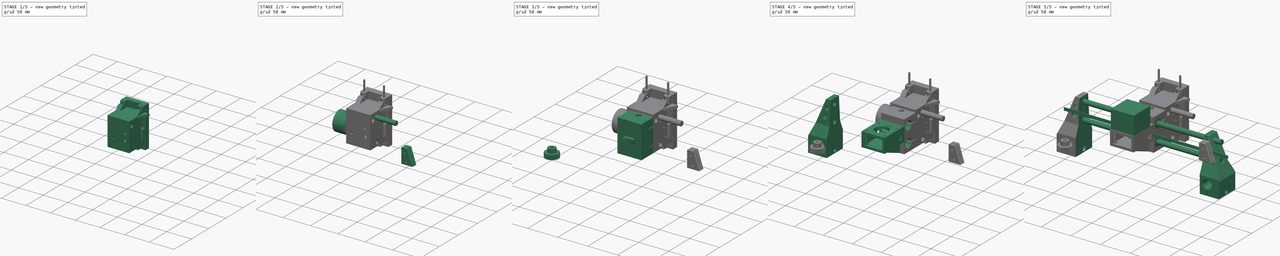
[diagram: build sequence overview — one tinted view per stage of 5, left to right]
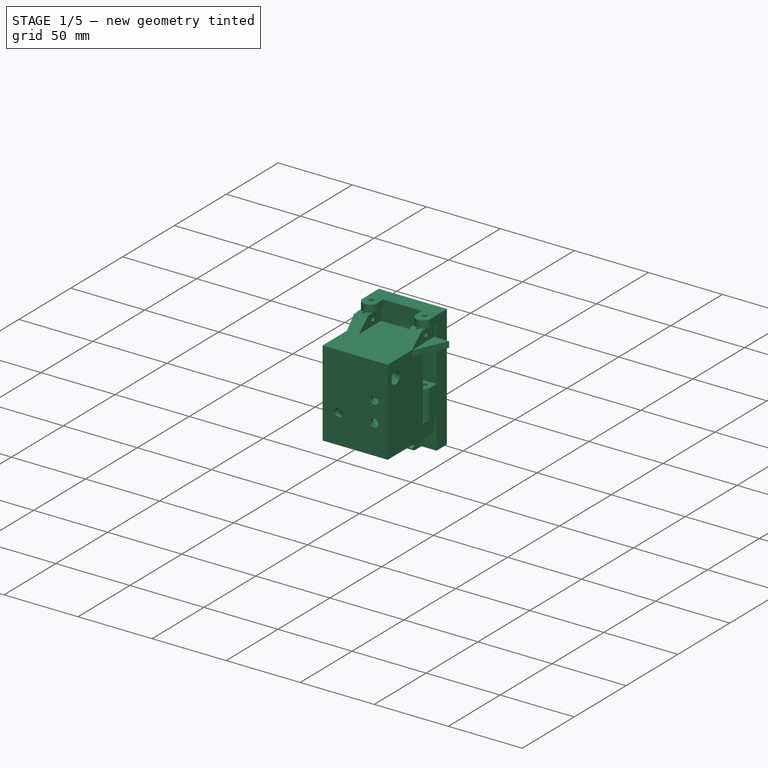
[diagram: stage 1 of 5 — iso view after this stage's code; geometry added in this stage tinted green]
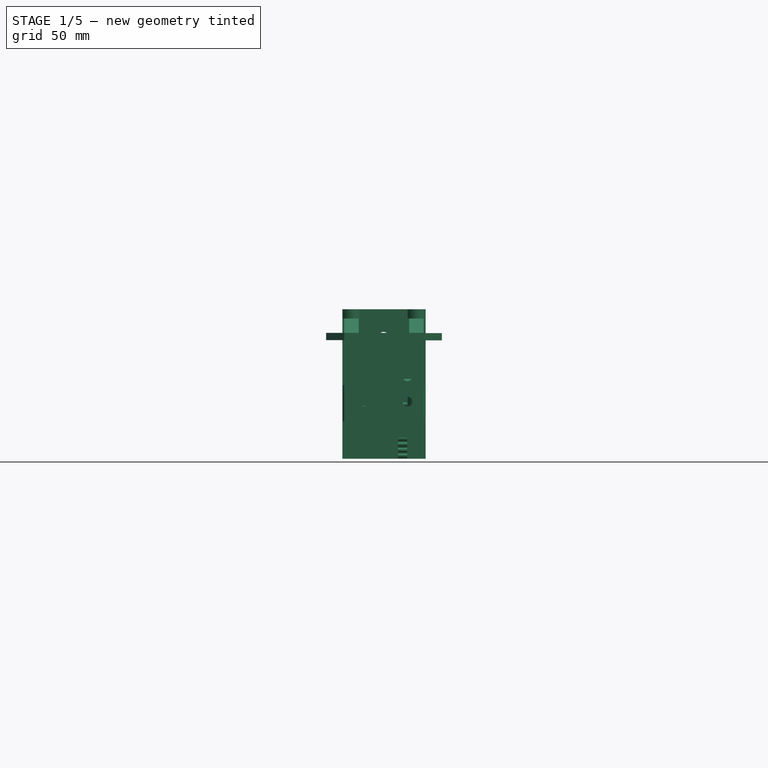
[diagram: stage 1 of 5 — front view after this stage's code; geometry added in this stage tinted green]
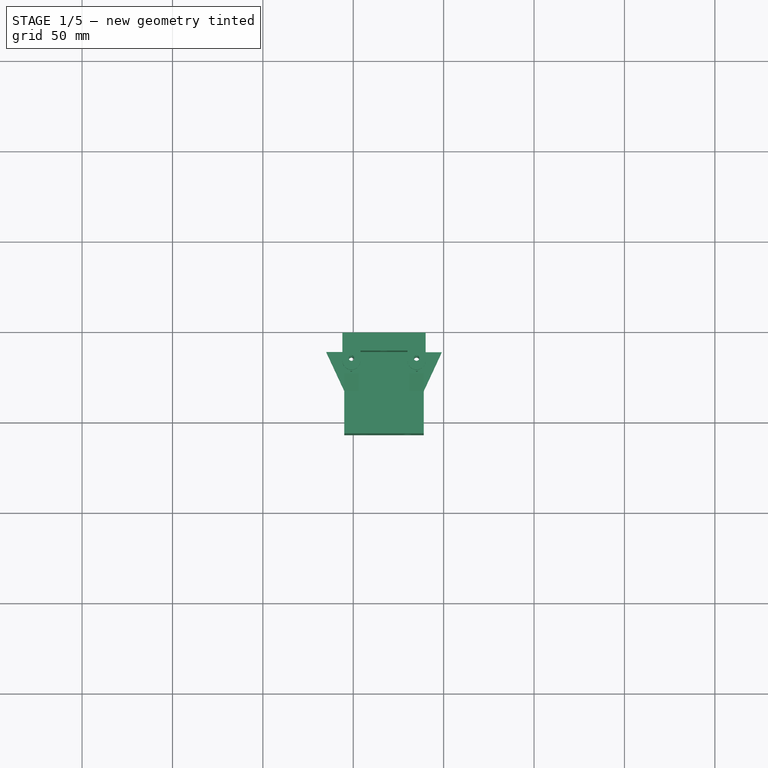
[diagram: stage 1 of 5 — top view after this stage's code; geometry added in this stage tinted green]
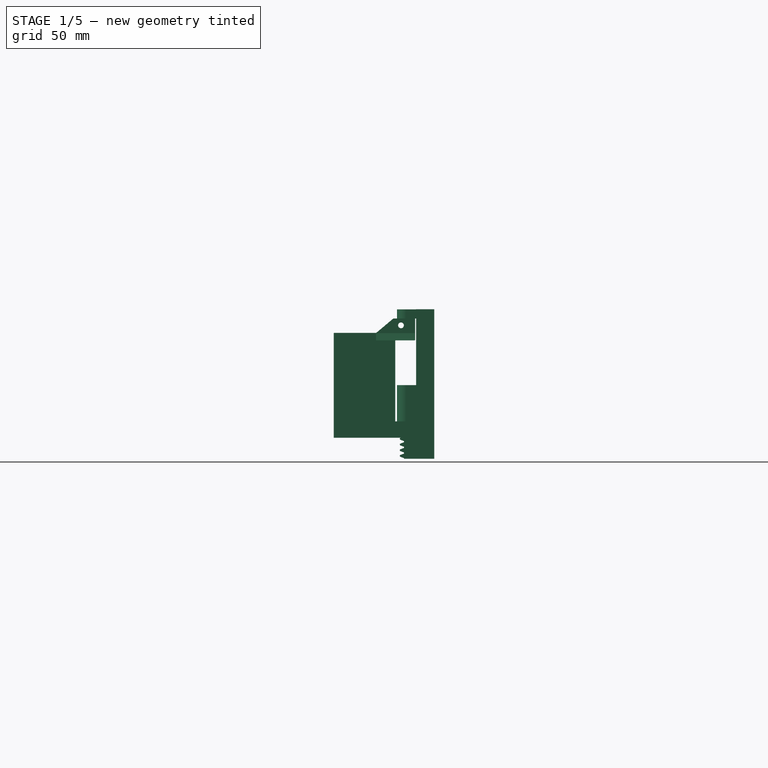
[diagram: stage 1 of 5 — right view after this stage's code; geometry added in this stage tinted green]
FCSTD DOCUMENT  (FreeCAD 0.18R4 (GitTag))
Label: привод оси Х
License: All rights reserved
LicenseURL: http://en.wikipedia.org/wiki/All_rights_reserved
objects: Part::Cut×117, Part::Cylinder×110, Part::MultiFuse×55, Part::Box×50, Sketcher::SketchObject×41, Part::Extrusion×37, Part::FeaturePython×18, Part::Cone×13, Part::RegularPolygon×12, Part::Mirroring×2
note: 455 computed .brp shape members not serialized (recipe doc carries the construction recipe); baked Part::Feature solids carry a one-line shape summary decoded from their .brp

FEATURE [Part::FeaturePython] InvoluteRack  # WARN: FeaturePython — macro-defined, semantics opaque (R4)
  Placement = pos=(129.8,80.6,9) rot=(0.57735,-0.57735,-0.57735;2.0944rad)
  add_endings = true
  beta = 0
  clearance = 0.25
  double_helix = false
  head = 0
  height = 5
  module = 1
  pressure_angle = 20
  properties_from_tool = true
  simplified = false
  teeth = 10
  thickness = 5
  transverse_pitch = 3.14159
FEATURE [Part::Box] Box067  label="Куб067"
  AttacherType = Attacher::AttachEngine3D
  Height = 54
  Length = 44
  Placement = pos=(95,43,19) rot=(0,0,1;0rad)
  Width = 4
FEATURE [Part::Box] Box068  label="Куб068"
  AttacherType = Attacher::AttachEngine3D
  Height = 54
  Length = 4
  Placement = pos=(95,47,19) rot=(0,0,1;0rad)
  Width = 30
FEATURE [Part::Box] Box070  label="Куб070"
  AttacherType = Attacher::AttachEngine3D
  Height = 44
  Length = 4
  Placement = pos=(139,43,73) rot=(0,-1,0;1.5708rad)
  Width = 45
FEATURE [Part::Cylinder] Cylinder138  label="Цилиндр127"
  Angle = 360
  AttacherType = Attacher::AttachEngine3D
  Height = 90
  Placement = pos=(135,84.4,19) rot=(0,0,1;0rad)
  Radius = 1.5
FEATURE [Part::Cylinder] Cylinder139  label="Цилиндр128"
  Angle = 360
  AttacherType = Attacher::AttachEngine3D
  Height = 90
  Placement = pos=(99,84.4,19) rot=(0,0,1;0rad)
  Radius = 1.5
FEATURE [Part::Cylinder] Cylinder140  label="Винт М3"
  Angle = 360
  AttacherType = Attacher::AttachEngine3D
  Height = 10
  Placement = pos=(129.8,75.2,81.2) rot=(0,1,0;1.5708rad)
  Radius = 1.6
FEATURE [Sketcher::SketchObject] Sketch045
  Placement = pos=(0,0,0) rot=(0.57735,0.57735,0.57735;2.0944rad)
  sketch-geometry (4):
    g0: LineSegment StartX=83 StartY=77 StartZ=0 EndX=83 EndY=85 EndZ=0
    g1: LineSegment StartX=83 StartY=85 StartZ=0 EndX=71 EndY=85 EndZ=0
    g2: LineSegment StartX=71 StartY=85 StartZ=0 EndX=61.466 EndY=77 EndZ=0
    g3: LineSegment StartX=61.466 StartY=77 StartZ=0 EndX=83 EndY=77 EndZ=0
  constraints (12):
    c: Vertical(g0)
    c: DistanceX(g0) = 83
    c: DistanceY(g0) = 77
    c: Horizontal(g1)
    c: Coincident(g1,g0)
    c: DistanceY(g0,g0) = 8
    c: DistanceX(g1,g1) = 12
    c: Coincident(g2,g1)
    c: DistanceY(g0,g2) = 0
    c: Coincident(g3,g0)
    c: Coincident(g3,g2)
    c: Angle(g2,g1) = 2.44346
FEATURE [Part::Extrusion] Extrude055
  Base = -> Sketch045
  Dir = (1,0,0)
  DirMode = 0
  FaceMakerClass = Part::FaceMakerBullseye
  LengthFwd = 8
  LengthRev = 0
  Placement = pos=(130.9,0,0) rot=(0,0,1;0rad)
  Solid = true
  Symmetric = false
FEATURE [Sketcher::SketchObject] Sketch046
  Placement = pos=(0,0,0) rot=(0.57735,0.57735,0.57735;2.0944rad)
  sketch-geometry (4):
    g0: LineSegment StartX=83 StartY=77 StartZ=0 EndX=83 EndY=85 EndZ=0
    g1: LineSegment StartX=83 StartY=85 StartZ=0 EndX=71 EndY=85 EndZ=0
    g2: LineSegment StartX=71 StartY=85 StartZ=0 EndX=61.466 EndY=77 EndZ=0
    g3: LineSegment StartX=61.466 StartY=77 StartZ=0 EndX=83 EndY=77 EndZ=0
  constraints (12):
    c: Vertical(g0)
    c: DistanceX(g0) = 83
    c: DistanceY(g0) = 77
    c: Horizontal(g1)
    c: Coincident(g1,g0)
    c: DistanceY(g0,g0) = 8
    c: DistanceX(g1,g1) = 12
    c: Coincident(g2,g1)
    c: DistanceY(g0,g2) = 0
    c: Coincident(g3,g0)
    c: Coincident(g3,g2)
    c: Angle(g2,g1) = 2.44346
FEATURE [Part::Extrusion] Extrude056
  Base = -> Sketch046
  Dir = (1,0,0)
  DirMode = 0
  FaceMakerClass = Part::FaceMakerBullseye
  LengthFwd = 8
  LengthRev = 0
  Placement = pos=(95,0,0) rot=(0,0,1;0rad)
  Solid = true
  Symmetric = false
FEATURE [Part::Box] Box072  label="Куб072"
  AttacherType = Attacher::AttachEngine3D
  Height = 19
  Length = 1
  Placement = pos=(134.7,76,70.7) rot=(0,0,1;0rad)
  Width = 15
FEATURE [Part::Box] Box073  label="Куб073"
  AttacherType = Attacher::AttachEngine3D
  Height = 19
  Length = 1
  Placement = pos=(98.4,76,70.7) rot=(0,0,1;0rad)
  Width = 15
FEATURE [Part::Cylinder] Cylinder141  label="Винт М004"
  Angle = 360
  AttacherType = Attacher::AttachEngine3D
  Height = 10
  Placement = pos=(93.8,75.2,81.2) rot=(0,1,0;1.5708rad)
  Radius = 1.6
FEATURE [Part::Cut] Cut142
  Base = -> Extrude056
  Placement = pos=(0,5,0) rot=(0,0,1;0rad)
  Tool = -> Cylinder141
FEATURE [Part::Cut] Cut143
  Base = -> Extrude055
  Placement = pos=(0,5,0) rot=(0,0,1;0rad)
  Tool = -> Cylinder140
FEATURE [Part::Box] Box074  label="Куб074"
  AttacherType = Attacher::AttachEngine3D
  Height = 71
  Length = 8
  Placement = pos=(122.9,77.6,-2.6) rot=(0,0,1;0rad)
  Width = 12
FEATURE [Sketcher::SketchObject] Sketch047
  Placement = pos=(0,0,0) rot=(0.57735,0.57735,0.57735;2.0944rad)
  sketch-geometry (4):
    g0: LineSegment StartX=83 StartY=77 StartZ=0 EndX=83 EndY=85 EndZ=0
    g1: LineSegment StartX=83 StartY=85 StartZ=0 EndX=71 EndY=85 EndZ=0
    g2: LineSegment StartX=71 StartY=85 StartZ=0 EndX=61.466 EndY=77 EndZ=0
    g3: LineSegment StartX=61.466 StartY=77 StartZ=0 EndX=83 EndY=77 EndZ=0
  constraints (12):
    c: Vertical(g0)
    c: DistanceX(g0) = 83
    c: DistanceY(g0) = 77
    c: Horizontal(g1)
    c: Coincident(g1,g0)
    c: DistanceY(g0,g0) = 8
    c: DistanceX(g1,g1) = 12
    c: Coincident(g2,g1)
    c: DistanceY(g0,g2) = 0
    c: Coincident(g3,g0)
    c: Coincident(g3,g2)
    c: Angle(g2,g1) = 2.44346
FEATURE [Part::Extrusion] Extrude057
  Base = -> Sketch047
  Dir = (1,0,0)
  DirMode = 0
  FaceMakerClass = Part::FaceMakerBullseye
  LengthFwd = 8
  LengthRev = 0
  Placement = pos=(131,5,-56.9) rot=(0,0,1;0rad)
  Solid = true
  Symmetric = false
FEATURE [Sketcher::SketchObject] Sketch048
  Placement = pos=(0,0,0) rot=(0.57735,0.57735,0.57735;2.0944rad)
  sketch-geometry (4):
    g0: LineSegment StartX=83 StartY=77 StartZ=0 EndX=83 EndY=85 EndZ=0
    g1: LineSegment StartX=83 StartY=85 StartZ=0 EndX=71 EndY=85 EndZ=0
    g2: LineSegment StartX=71 StartY=85 StartZ=0 EndX=61.466 EndY=77 EndZ=0
    g3: LineSegment StartX=61.466 StartY=77 StartZ=0 EndX=83 EndY=77 EndZ=0
  constraints (12):
    c: Vertical(g0)
    c: DistanceX(g0) = 83
    c: DistanceY(g0) = 77
    c: Horizontal(g1)
    c: Coincident(g1,g0)
    c: DistanceY(g0,g0) = 8
    c: DistanceX(g1,g1) = 12
    c: Coincident(g2,g1)
    c: DistanceY(g0,g2) = 0
    c: Coincident(g3,g0)
    c: Coincident(g3,g2)
    c: Angle(g2,g1) = 2.44346
FEATURE [Part::Extrusion] Extrude058
  Base = -> Sketch048
  Dir = (1,0,0)
  DirMode = 0
  FaceMakerClass = Part::FaceMakerBullseye
  LengthFwd = 8
  LengthRev = 0
  Placement = pos=(95,5,-56.9) rot=(0,0,1;0rad)
  Solid = true
  Symmetric = false
FEATURE [Part::Box] Box071  label="Куб071"
  AttacherType = Attacher::AttachEngine3D
  Height = 44
  Length = 4
  Placement = pos=(139,43,19) rot=(0,-1,0;1.5708rad)
  Width = 45
FEATURE [Part::Cylinder] Cylinder153  label="Цилиндр138"
  Angle = 360
  AttacherType = Attacher::AttachEngine3D
  Height = 10
  Radius = 2.7
FEATURE [Part::Cone] Cone  label="Конус"
  Angle = 360
  AttacherType = Attacher::AttachEngine3D
  Height = 3
  Placement = pos=(0,0,10) rot=(0,0,1;0rad)
  Radius1 = 2.7
  Radius2 = 3.7
FEATURE [Part::MultiFuse] Fusion084  label="Винт М5 Потай"
  Placement = pos=(130,34,53) rot=(-1,0,0;1.5708rad)
  Shapes = -> [Cylinder153,Cone]
FEATURE [Part::Cylinder] Cylinder154  label="Цилиндр139"
  Angle = 360
  AttacherType = Attacher::AttachEngine3D
  Height = 10
  Radius = 2.7
FEATURE [Part::Cone] Cone017  label="Конус017"
  Angle = 360
  AttacherType = Attacher::AttachEngine3D
  Height = 3
  Placement = pos=(0,0,10) rot=(0,0,1;0rad)
  Radius1 = 2.7
  Radius2 = 3.7
FEATURE [Part::MultiFuse] Fusion085  label="Винт М5 Потай001"
  Placement = pos=(130,34,39) rot=(-1,0,0;1.5708rad)
  Shapes = -> [Cylinder154,Cone017]
FEATURE [Part::Cylinder] Cylinder155  label="Цилиндр140"
  Angle = 360
  AttacherType = Attacher::AttachEngine3D
  Height = 10
  Radius = 2.7
FEATURE [Part::Cone] Cone018  label="Конус018"
  Angle = 360
  AttacherType = Attacher::AttachEngine3D
  Height = 3
  Placement = pos=(0,0,10) rot=(0,0,1;0rad)
  Radius1 = 2.7
  Radius2 = 3.7
FEATURE [Part::MultiFuse] Fusion086  label="Винт М5 Потай002"
  Placement = pos=(106,34,39) rot=(-1,0,0;1.5708rad)
  Shapes = -> [Cylinder155,Cone018]
FEATURE [Sketcher::SketchObject] Sketch049
  sketch-geometry (4):
    g0: ArcOfCircle CenterX=99 CenterY=83 CenterZ=0 NormalX=0 NormalY=0 NormalZ=1 AngleXU=0 Radius=5 StartAngle=3.14159 EndAngle=6.28319
    g1: LineSegment StartX=94 StartY=83 StartZ=0 EndX=94 EndY=89.5 EndZ=0
    g2: LineSegment StartX=104 StartY=83 StartZ=0 EndX=104 EndY=89.5 EndZ=0
    g3: LineSegment StartX=94 StartY=89.5 StartZ=0 EndX=104 EndY=89.5 EndZ=0
  constraints (13):
    c: DistanceX(g0) = 94
    c: DistanceY(g0) = 83
    c: Vertical(g1)
    c: Coincident(g1,g0)
    c: DistanceY(g1,g1) = 6.5
    c: Vertical(g2)
    c: DistanceY(g0,g0) = 0
    c: Radius(g0) = 5
    c: DistanceY(g0,g0) = 0
    c: Coincident(g2,g0)
    c: Equal(g2,g1)
    c: Coincident(g3,g2)
    c: Coincident(g3,g1)
FEATURE [Part::Extrusion] Extrude059
  Base = -> Sketch049
  Dir = (0,0,1)
  DirMode = 0
  FaceMakerClass = Part::FaceMakerBullseye
  LengthFwd = 20
  LengthRev = 0
  Placement = pos=(0,0,28.1) rot=(0,0,1;0rad)
  Solid = true
  Symmetric = false
FEATURE [Sketcher::SketchObject] Sketch050
  sketch-geometry (4):
    g0: ArcOfCircle CenterX=99 CenterY=83 CenterZ=0 NormalX=0 NormalY=0 NormalZ=1 AngleXU=0 Radius=5 StartAngle=3.14159 EndAngle=6.28319
    g1: LineSegment StartX=94 StartY=83 StartZ=0 EndX=94 EndY=89.5 EndZ=0
    g2: LineSegment StartX=104 StartY=83 StartZ=0 EndX=104 EndY=89.5 EndZ=0
    g3: LineSegment StartX=94 StartY=89.5 StartZ=0 EndX=104 EndY=89.5 EndZ=0
  constraints (13):
    c: DistanceX(g0) = 94
    c: DistanceY(g0) = 83
    c: Vertical(g1)
    c: Coincident(g1,g0)
    c: DistanceY(g1,g1) = 6.5
    c: Vertical(g2)
    c: DistanceY(g0,g0) = 0
    c: Radius(g0) = 5
    c: DistanceY(g0,g0) = 0
    c: Coincident(g2,g0)
    c: Equal(g2,g1)
    c: Coincident(g3,g2)
    c: Coincident(g3,g1)
FEATURE [Part::Extrusion] Extrude060
  Base = -> Sketch050
  Dir = (0,0,1)
  DirMode = 0
  FaceMakerClass = Part::FaceMakerBullseye
  LengthFwd = 5
  LengthRev = 0
  Placement = pos=(0,0,85) rot=(0,0,1;0rad)
  Solid = true
  Symmetric = false
FEATURE [Sketcher::SketchObject] Sketch051
  sketch-geometry (4):
    g0: ArcOfCircle CenterX=99 CenterY=83 CenterZ=0 NormalX=0 NormalY=0 NormalZ=1 AngleXU=0 Radius=5 StartAngle=3.14159 EndAngle=6.28319
    g1: LineSegment StartX=94 StartY=83 StartZ=0 EndX=94 EndY=89.5 EndZ=0
    g2: LineSegment StartX=104 StartY=83 StartZ=0 EndX=104 EndY=89.5 EndZ=0
    g3: LineSegment StartX=94 StartY=89.5 StartZ=0 EndX=104 EndY=89.5 EndZ=0
  constraints (13):
    c: DistanceX(g0) = 94
    c: DistanceY(g0) = 83
    c: Vertical(g1)
    c: Coincident(g1,g0)
    c: DistanceY(g1,g1) = 6.5
    c: Vertical(g2)
    c: DistanceY(g0,g0) = 0
    c: Radius(g0) = 5
    c: DistanceY(g0,g0) = 0
    c: Coincident(g2,g0)
    c: Equal(g2,g1)
    c: Coincident(g3,g2)
    c: Coincident(g3,g1)
FEATURE [Part::Extrusion] Extrude061
  Base = -> Sketch051
  Dir = (0,0,1)
  DirMode = 0
  FaceMakerClass = Part::FaceMakerBullseye
  LengthFwd = 5
  LengthRev = 0
  Placement = pos=(36,0,85) rot=(0,0,1;0rad)
  Solid = true
  Symmetric = false
FEATURE [Sketcher::SketchObject] Sketch052
  sketch-geometry (4):
    g0: ArcOfCircle CenterX=99 CenterY=83 CenterZ=0 NormalX=0 NormalY=0 NormalZ=1 AngleXU=0 Radius=5 StartAngle=3.14159 EndAngle=6.28319
    g1: LineSegment StartX=94 StartY=83 StartZ=0 EndX=94 EndY=89.5 EndZ=0
    g2: LineSegment StartX=104 StartY=83 StartZ=0 EndX=104 EndY=89.5 EndZ=0
    g3: LineSegment StartX=94 StartY=89.5 StartZ=0 EndX=104 EndY=89.5 EndZ=0
  constraints (13):
    c: DistanceX(g0) = 94
    c: DistanceY(g0) = 83
    c: Vertical(g1)
    c: Coincident(g1,g0)
    c: DistanceY(g1,g1) = 6.5
    c: Vertical(g2)
    c: DistanceY(g0,g0) = 0
    c: Radius(g0) = 5
    c: DistanceY(g0,g0) = 0
    c: Coincident(g2,g0)
    c: Equal(g2,g1)
    c: Coincident(g3,g2)
    c: Coincident(g3,g1)
FEATURE [Part::Extrusion] Extrude062
  Base = -> Sketch052
  Dir = (0,0,1)
  DirMode = 0
  FaceMakerClass = Part::FaceMakerBullseye
  LengthFwd = 20
  LengthRev = 0
  Placement = pos=(36,0,28.1) rot=(0,0,1;0rad)
  Solid = true
  Symmetric = false
FEATURE [Part::RegularPolygon] RegularPolygon014  label="Правильный многоугольник014"
  AttacherType = Attacher::AttachEngine3D
  Circumradius = 4.8
  Polygon = 6
FEATURE [Part::Extrusion] Extrude063
  Base = -> RegularPolygon014
  Dir = (0,0,1)
  DirMode = 0
  FaceMakerClass = Part::FaceMakerBullseye
  LengthFwd = 5.5
  LengthRev = 0
  Placement = pos=(116.9,90.5,74.9) rot=(-1,0,0;1.5708rad)
  Solid = true
  Symmetric = false
FEATURE [Part::Box] Box076  label="Куб076"
  AttacherType = Attacher::AttachEngine3D
  Height = 31.5
  Length = 5
  Placement = pos=(124.8,85.6,7.4) rot=(0,0,1;0rad)
  Width = 4
FEATURE [Part::RegularPolygon] RegularPolygon015  label="Правильный многоугольник015"
  AttacherType = Attacher::AttachEngine3D
  Circumradius = 4.8
  Polygon = 6
FEATURE [Part::Extrusion] Extrude064
  Base = -> RegularPolygon015
  Dir = (0,0,1)
  DirMode = 0
  FaceMakerClass = Part::FaceMakerBullseye
  LengthFwd = 5.5
  LengthRev = 0
  Placement = pos=(116.9,90.6,31.1) rot=(-1,0,0;1.5708rad)
  Solid = true
  Symmetric = false
FEATURE [Part::Cylinder] Cylinder157  label="Цилиндр142"
  Angle = 360
  AttacherType = Attacher::AttachEngine3D
  Height = 24
  Placement = pos=(116.9,81.9,31.1) rot=(-1,0,0;1.5708rad)
  Radius = 2.8
FEATURE [Part::Cylinder] Cylinder158  label="Цилиндр143"
  Angle = 360
  AttacherType = Attacher::AttachEngine3D
  Height = 32
  Placement = pos=(116.8,77.7,74.8) rot=(-1,0,0;1.5708rad)
  Radius = 2.8
FEATURE [Part::Box] Box075  label="Куб075"
  AttacherType = Attacher::AttachEngine3D
  Height = 82.7
  Length = 46
  Placement = pos=(94,88.6,7.4) rot=(0,0,1;0rad)
  Width = 10
FEATURE [Part::Cut] Cut176
  Base = -> Box067
  Tool = -> Fusion084
FEATURE [Part::Cut] Cut177
  Base = -> Cut176
  Tool = -> Fusion085
FEATURE [Part::Cut] Cut178
  Base = -> Cut177
  Tool = -> Fusion086
FEATURE [Part::MultiFuse] Fusion089
  Shapes = -> [Box071,Extrude057,Extrude058]
FEATURE [Part::Cut] Cut179
  Base = -> Fusion089
  Tool = -> Box074
FEATURE [Sketcher::SketchObject] Sketch053
  sketch-geometry (3):
    g0: LineSegment StartX=95 StartY=66.5 StartZ=0 EndX=85 EndY=88 EndZ=0
    g1: LineSegment StartX=95 StartY=66.5 StartZ=0 EndX=95 EndY=88 EndZ=0
    g2: LineSegment StartX=95 StartY=88 StartZ=0 EndX=85 EndY=88 EndZ=0
  constraints (9):
    c: DistanceX(g0) = 95
    c: DistanceY(g0) = 66.5
    c: Vertical(g1)
    c: Coincident(g1,g0)
    c: DistanceY(g1,g1) = 21.5
    c: Coincident(g2,g1)
    c: Horizontal(g2)
    c: DistanceX(g2,g2) = 10
    c: Coincident(g0,g2)
FEATURE [Part::Extrusion] Extrude065
  Base = -> Sketch053
  Dir = (0,0,1)
  DirMode = 0
  FaceMakerClass = Part::FaceMakerBullseye
  LengthFwd = 4
  LengthRev = 0
  Placement = pos=(0,0,73) rot=(0,0,1;0rad)
  Solid = true
  Symmetric = false
FEATURE [Sketcher::SketchObject] Sketch054
  sketch-geometry (3):
    g0: LineSegment StartX=95 StartY=66.5 StartZ=0 EndX=85 EndY=88 EndZ=0
    g1: LineSegment StartX=95 StartY=66.5 StartZ=0 EndX=95 EndY=88 EndZ=0
    g2: LineSegment StartX=95 StartY=88 StartZ=0 EndX=85 EndY=88 EndZ=0
  constraints (9):
    c: DistanceX(g0) = 95
    c: DistanceY(g0) = 66.5
    c: Vertical(g1)
    c: Coincident(g1,g0)
    c: DistanceY(g1,g1) = 21.5
    c: Coincident(g2,g1)
    c: Horizontal(g2)
    c: DistanceX(g2,g2) = 10
    c: Coincident(g0,g2)
FEATURE [Part::Extrusion] Extrude066
  Base = -> Sketch054
  Dir = (0,0,1)
  DirMode = 0
  FaceMakerClass = Part::FaceMakerBullseye
  LengthFwd = 4
  LengthRev = 0
  Placement = pos=(234,-0.1,76.9) rot=(0,1,0;3.14159rad)
  Solid = true
  Symmetric = false
FEATURE [Part::Box] Box069  label="Куб069"
  AttacherType = Attacher::AttachEngine3D
  Height = 54
  Length = 4
  Placement = pos=(135,47,19) rot=(0,0,1;0rad)
  Width = 30
FEATURE [Part::Cylinder] Cylinder164  label="Цилиндр149"
  Angle = 360
  AttacherType = Attacher::AttachEngine3D
  Height = 10
  Placement = pos=(118.8,72.9,33.1) rot=(0,1,0;1.5708rad)
  Radius = 12
FEATURE [Part::Cut] Cut188
  Base = -> Cut179
  Tool = -> Cylinder164
FEATURE [Part::Cylinder] Cylinder166  label="Цилиндр151"
  Angle = 360
  AttacherType = Attacher::AttachEngine3D
  Height = 44
  Placement = pos=(99,50.5,66.1) rot=(0,1,0;1.5708rad)
  Radius = 4
FEATURE [Part::MultiFuse] Fusion096
  Shapes = -> [Cut188,Box070,Box069,Box068,Cut178]
FEATURE [Part::MultiFuse] Fusion097
  Shapes = -> [Extrude066,Fusion096,Extrude065]
FEATURE [Part::MultiFuse] Fusion098
  Shapes = -> [Fusion097,Cut143,Cut142]
FEATURE [Part::Cut] Cut189
  Base = -> Fusion098
  Tool = -> Cylinder138
FEATURE [Part::Cut] Cut190
  Base = -> Cut189
  Tool = -> Box072
FEATURE [Part::Cut] Cut191
  Base = -> Cut190
  Tool = -> Cylinder139
FEATURE [Part::Cut] Cut192
  Base = -> Cut191
  Tool = -> Box073
FEATURE [Part::Cut] Cut193
  Base = -> Cut192
  Tool = -> Cylinder166
FEATURE [Part::Cut] Cut201
  Base = -> Box075
  Tool = -> Cylinder158
FEATURE [Part::Cut] Cut202
  Base = -> Cut201
  Tool = -> Cylinder157
FEATURE [Part::Cut] Cut203
  Base = -> Cut202
  Tool = -> Extrude063
FEATURE [Part::Cut] Cut204
  Base = -> Cut203
  Tool = -> Extrude064
FEATURE [Part::MultiFuse] Fusion099
  Shapes = -> [Cut204,Extrude062,Extrude061,Extrude060,Extrude059,InvoluteRack,Box076]
FEATURE [Part::Cylinder] Cylinder167  label="Направляющая_3мм_003"
  Angle = 360
  AttacherType = Attacher::AttachEngine3D
  Height = 90
  Placement = pos=(135,84.4,19) rot=(0,0,1;0rad)
  Radius = 1.5
FEATURE [Part::Cylinder] Cylinder168  label="Направляющая_3мм_004"
  Angle = 360
  AttacherType = Attacher::AttachEngine3D
  Height = 90
  Placement = pos=(99,84.4,19) rot=(0,0,1;0rad)
  Radius = 1.5
FEATURE [Part::Cut] Cut205
  Base = -> Fusion099
  Tool = -> Cylinder167
FEATURE [Part::Cut] Cut206
  Base = -> Cut205
  Tool = -> Cylinder168
FEATURE [Part::Cylinder] Cylinder169  label="Цилиндр152"
  Angle = 360
  AttacherType = Attacher::AttachEngine3D
  Height = 20.5
  Placement = pos=(99,72.9,33.1) rot=(0,1,0;1.5708rad)
  Radius = 3.5
FEATURE [Part::Cylinder] Cylinder170  label="Цилиндр153"
  Angle = 360
  AttacherType = Attacher::AttachEngine3D
  Height = 4
  Placement = pos=(130.8,72.9,33.1) rot=(0,1,0;1.5708rad)
  Radius = 3.5
FEATURE [Part::Cylinder] Cylinder171  label="Цилиндр154"
  Angle = 360
  AttacherType = Attacher::AttachEngine3D
  Height = 10.4
  Placement = pos=(124.4,68.9,48.1) rot=(0,1,0;1.5708rad)
  Radius = 3.5
FEATURE [Part::Cylinder] Cylinder172  label="Цилиндр155"
  Angle = 360
  AttacherType = Attacher::AttachEngine3D
  Height = 6.6
  Placement = pos=(99.1,68.9,48.1) rot=(0,1,0;1.5708rad)
  Radius = 3.5
FEATURE [Part::Cylinder] Cylinder173  label="Цилиндр156"
  Angle = 360
  AttacherType = Attacher::AttachEngine3D
  Height = 15.4
  Placement = pos=(119.5,59.9,60.7) rot=(0,1,0;1.5708rad)
  Radius = 3.5
FEATURE [Part::Cylinder] Cylinder174  label="Цилиндр157"
  Angle = 360
  AttacherType = Attacher::AttachEngine3D
  Height = 55
  Placement = pos=(92.7,72.9,33.1) rot=(0,1,0;1.5708rad)
  Radius = 1.5
FEATURE [Part::Cylinder] Cylinder175  label="Цилиндр158"
  Angle = 360
  AttacherType = Attacher::AttachEngine3D
  Height = 55
  Placement = pos=(92.7,72.9,33.1) rot=(0,1,0;1.5708rad)
  Radius = 1.5
FEATURE [Part::Cylinder] Cylinder176  label="Цилиндр159"
  Angle = 360
  AttacherType = Attacher::AttachEngine3D
  Height = 55
  Placement = pos=(92.7,68.9,48.1) rot=(0,1,0;1.5708rad)
  Radius = 1.5
FEATURE [Part::Cylinder] Cylinder177  label="Цилиндр160"
  Angle = 360
  AttacherType = Attacher::AttachEngine3D
  Height = 55
  Placement = pos=(92.1,59.9,60.7) rot=(0,1,0;1.5708rad)
  Radius = 1.5
FEATURE [Part::Cut] Cut207
  Base = -> Cylinder170
  Tool = -> Cylinder174
FEATURE [Part::Cut] Cut208
  Base = -> Cylinder169
  Tool = -> Cylinder175
FEATURE [Part::Cylinder] Cylinder178  label="Цилиндр161"
  Angle = 360
  AttacherType = Attacher::AttachEngine3D
  Height = 55
  Placement = pos=(92.7,68.9,48.1) rot=(0,1,0;1.5708rad)
  Radius = 1.5
FEATURE [Part::Cut] Cut209
  Base = -> Cylinder171
  Tool = -> Cylinder176
FEATURE [Part::Cut] Cut210
  Base = -> Cylinder172
  Tool = -> Cylinder178
FEATURE [Part::Cut] Cut211
  Base = -> Cylinder173
  Tool = -> Cylinder177
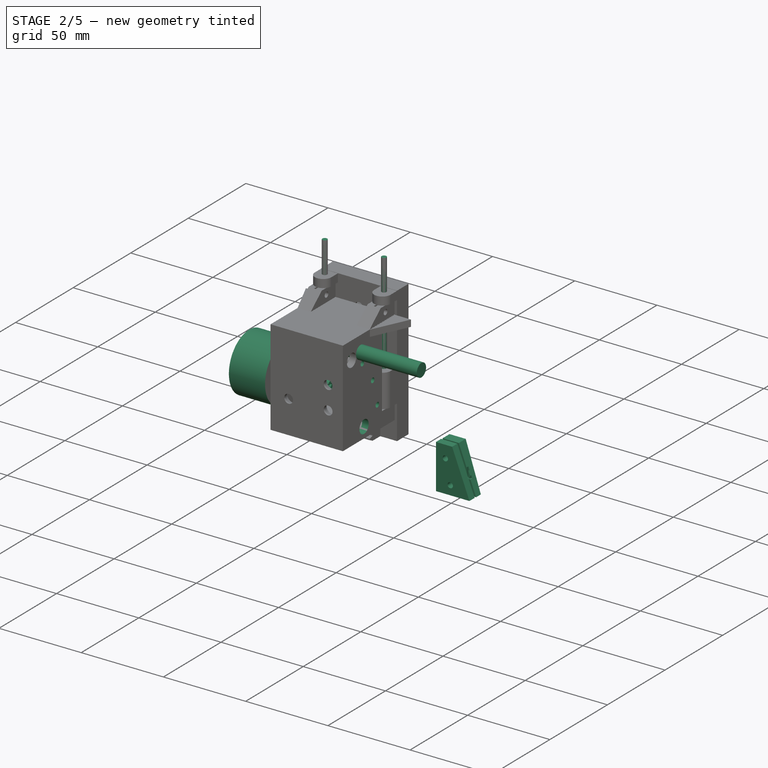
[diagram: stage 2 of 5 — iso view after this stage's code; geometry added in this stage tinted green]
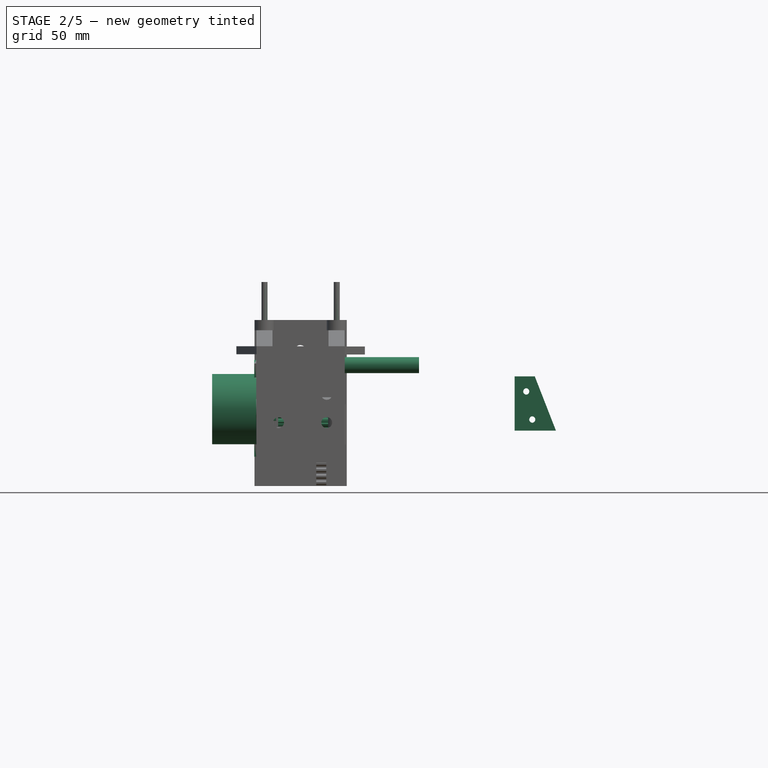
[diagram: stage 2 of 5 — front view after this stage's code; geometry added in this stage tinted green]
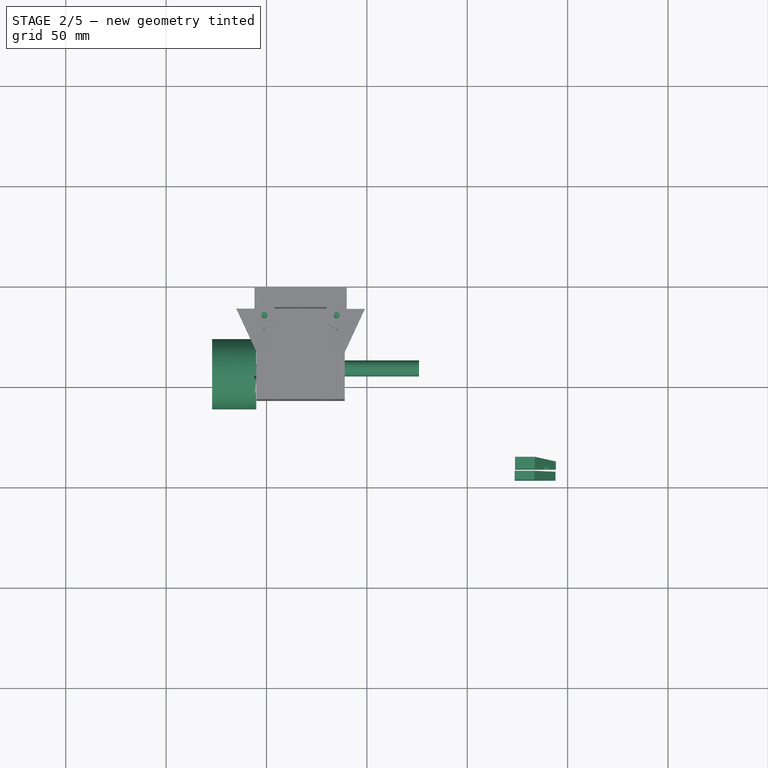
[diagram: stage 2 of 5 — top view after this stage's code; geometry added in this stage tinted green]
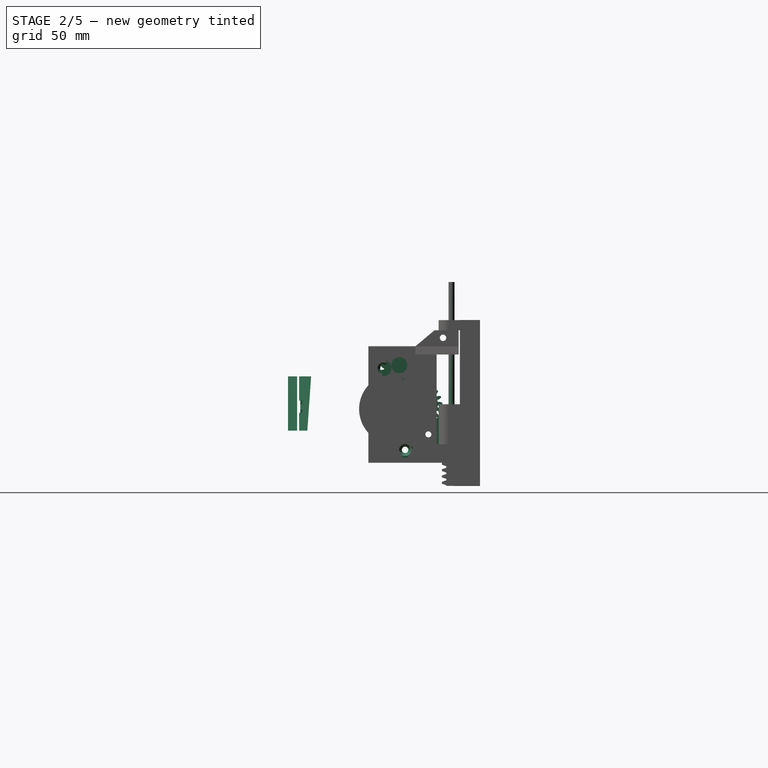
[diagram: stage 2 of 5 — right view after this stage's code; geometry added in this stage tinted green]
FEATURE [Sketcher::SketchObject] Sketch027
  Placement = pos=(0,0,0) rot=(0.57735,0.57735,0.57735;2.0944rad)
  sketch-geometry (4):
    g0: LineSegment StartX=12.6647 StartY=35.6595 StartZ=0 EndX=10.6647 EndY=35.6595 EndZ=0
    g1: LineSegment StartX=12.6647 StartY=35.6595 StartZ=0 EndX=14.3389 EndY=59.601 EndZ=0
    g2: LineSegment StartX=14.3389 StartY=59.601 StartZ=0 EndX=10.6647 EndY=59.601 EndZ=0
    g3: LineSegment StartX=10.6647 StartY=59.601 StartZ=0 EndX=10.6647 EndY=35.6595 EndZ=0
  constraints (12):
    c: Horizontal(g0)
    c: DistanceX(g0) = 12.6647
    c: DistanceY(g0) = 35.6595
    c: DistanceX(g0,g0) = 2
    c: Coincident(g1,g0)
    c: Angle(g1,g0) = 1.64061
    c: Distance(g1) = 24
    c: Coincident(g2,g1)
    c: Horizontal(g2)
    c: Coincident(g3,g0)
    c: Coincident(g3,g2)
    c: Vertical(g3)
FEATURE [Sketcher::SketchObject] Sketch028
  Placement = pos=(0,0,0) rot=(1,0,0;1.5708rad)
  sketch-geometry (4):
    g0: LineSegment StartX=244.64 StartY=35.6308 StartZ=0 EndX=234.68 EndY=60.5326 EndZ=0
    g1: LineSegment StartX=244.64 StartY=35.6308 StartZ=0 EndX=247.64 EndY=35.6308 EndZ=0
    g2: LineSegment StartX=234.68 StartY=60.5326 StartZ=0 EndX=247.64 EndY=60.5326 EndZ=0
    g3: LineSegment StartX=247.64 StartY=60.5326 StartZ=0 EndX=247.64 EndY=35.6308 EndZ=0
  constraints (12):
    c: Horizontal(g1)
    c: DistanceX(g1) = 244.64
    c: DistanceY(g1) = 35.6308
    c: Coincident(g1,g0)
    c: Angle(g1,g0) = 1.95128
    c: DistanceX(g1,g1) = 3
    c: Horizontal(g2)
    c: Coincident(g2,g0)
    c: Coincident(g1,g3)
    c: Vertical(g3)
    c: Coincident(g3,g2)
    c: DistanceX(g2,g2) = 12.96
FEATURE [Sketcher::SketchObject] Sketch030
  Placement = pos=(0,0,0) rot=(1,0,0;1.5708rad)
  sketch-geometry (4):
    g0: LineSegment StartX=235.152 StartY=59.601 StartZ=0 EndX=244.728 EndY=35.6595 EndZ=0
    g1: LineSegment StartX=235.152 StartY=59.601 StartZ=0 EndX=238.152 EndY=59.601 EndZ=0
    g2: LineSegment StartX=244.728 StartY=35.6595 StartZ=0 EndX=247.728 EndY=35.6595 EndZ=0
    g3: LineSegment StartX=238.152 StartY=59.601 StartZ=0 EndX=247.728 EndY=35.6595 EndZ=0
  constraints (8):
    c: Coincident(g1,g0)
    c: Horizontal(g1)
    c: DistanceX(g1,g1) = 3
    c: Coincident(g2,g0)
    c: Horizontal(g2)
    c: Equal(g2,g1)
    c: Coincident(g1,g3)
    c: Coincident(g3,g2)
FEATURE [Sketcher::SketchObject] Sketch031
  sketch-geometry (36):
    g0: LineSegment StartX=223.4 StartY=12.7389 StartZ=0 EndX=224.4 EndY=12.7389 EndZ=0
    g1: LineSegment StartX=224.4 StartY=12.7389 StartZ=0 EndX=224.4 EndY=13.7389 EndZ=0
    g2: LineSegment StartX=224.4 StartY=13.7389 StartZ=0 EndX=225.4 EndY=13.7389 EndZ=0
    g3: LineSegment StartX=225.4 StartY=12.7389 StartZ=0 EndX=225.4 EndY=13.7389 EndZ=0
    g4: LineSegment StartX=226.4 StartY=12.7389 StartZ=0 EndX=226.4 EndY=13.7389 EndZ=0
    g5: LineSegment StartX=226.4 StartY=13.7389 StartZ=0 EndX=227.4 EndY=13.7389 EndZ=0
    g6: LineSegment StartX=227.4 StartY=12.7389 StartZ=0 EndX=227.4 EndY=13.7389 EndZ=0
    g7: LineSegment StartX=225.4 StartY=12.7389 StartZ=0 EndX=226.4 EndY=12.7389 EndZ=0
    g8: LineSegment StartX=227.4 StartY=12.7389 StartZ=0 EndX=228.4 EndY=12.7389 EndZ=0
    g9: LineSegment StartX=228.4 StartY=12.7389 StartZ=0 EndX=228.4 EndY=13.7389 EndZ=0
    g10: LineSegment StartX=228.4 StartY=13.7389 StartZ=0 EndX=229.4 EndY=13.7389 EndZ=0
    g11: LineSegment StartX=229.4 StartY=12.7389 StartZ=0 EndX=229.4 EndY=13.7389 EndZ=0
    g12: LineSegment StartX=230.4 StartY=12.7389 StartZ=0 EndX=230.4 EndY=13.7389 EndZ=0
    g13: LineSegment StartX=230.4 StartY=13.7389 StartZ=0 EndX=231.4 EndY=13.7389 EndZ=0
    g14: LineSegment StartX=231.4 StartY=12.7389 StartZ=0 EndX=231.4 EndY=13.7389 EndZ=0
    g15: LineSegment StartX=229.4 StartY=12.7389 StartZ=0 EndX=230.4 EndY=12.7389 EndZ=0
    g16: LineSegment StartX=231.4 StartY=12.7389 StartZ=0 EndX=232.4 EndY=12.7389 EndZ=0
    g17: LineSegment StartX=232.4 StartY=12.7389 StartZ=0 EndX=232.4 EndY=13.7389 EndZ=0
    g18: LineSegment StartX=232.4 StartY=13.7389 StartZ=0 EndX=233.4 EndY=13.7389 EndZ=0
    g19: LineSegment StartX=233.4 StartY=12.7389 StartZ=0 EndX=233.4 EndY=13.7389 EndZ=0
    g20: LineSegment StartX=233.4 StartY=12.7389 StartZ=0 EndX=234.4 EndY=12.7389 EndZ=0
    g21: LineSegment StartX=234.4 StartY=12.7389 StartZ=0 EndX=234.4 EndY=13.7389 EndZ=0
    g22: LineSegment StartX=234.4 StartY=13.7389 StartZ=0 EndX=235.4 EndY=13.7389 EndZ=0
    g23: LineSegment StartX=223.4 StartY=12.7389 StartZ=0 EndX=223.4 EndY=14.3389 EndZ=0
    g24: LineSegment StartX=235.4 StartY=12.7389 StartZ=0 EndX=235.4 EndY=13.7389 EndZ=0
    g25: LineSegment StartX=235.4 StartY=12.7389 StartZ=0 EndX=236.4 EndY=12.7389 EndZ=0
    g26: LineSegment StartX=236.4 StartY=12.7389 StartZ=0 EndX=236.4 EndY=13.7389 EndZ=0
    g27: LineSegment StartX=236.4 StartY=13.7389 StartZ=0 EndX=237.4 EndY=13.7389 EndZ=0
    g28: LineSegment StartX=237.4 StartY=12.7389 StartZ=0 EndX=237.4 EndY=13.7389 EndZ=0
    g29: LineSegment StartX=237.4 StartY=12.7389 StartZ=0 EndX=238.4 EndY=12.7389 EndZ=0
    g30: LineSegment StartX=223.4 StartY=14.3389 StartZ=0 EndX=240.4 EndY=14.3389 EndZ=0
    g31: LineSegment StartX=238.4 StartY=12.7389 StartZ=0 EndX=238.4 EndY=13.7389 EndZ=0
    g32: LineSegment StartX=238.4 StartY=13.7389 StartZ=0 EndX=239.4 EndY=13.7389 EndZ=0
    g33: LineSegment StartX=239.4 StartY=12.7389 StartZ=0 EndX=239.4 EndY=13.7389 EndZ=0
    g34: LineSegment StartX=239.4 StartY=12.7389 StartZ=0 EndX=240.4 EndY=12.7389 EndZ=0
    g35: LineSegment StartX=240.4 StartY=12.7389 StartZ=0 EndX=240.4 EndY=14.3389 EndZ=0
  constraints (105):
    c: Horizontal(g0)
    c: DistanceX(g0,g0) = 1
    c: Coincident(g1,g0)
    c: Vertical(g1)
    c: DistanceY(g1,g1) = 1
    c: Horizontal(g2)
    c: Equal(g0,g2) = 1
    c: Coincident(g2,g1)
    c: Vertical(g3)
    c: Equal(g1,g3) = 1
    c: Coincident(g3,g2)
    c: Horizontal(g7)
    c: Equal(g0,g7) = 1
    c: Coincident(g4,g7)
    c: Vertical(g4)
    c: Equal(g1,g4) = 1
    c: Horizontal(g5)
    c: Equal(g7,g5) = 1
    c: Coincident(g5,g4)
    c: Vertical(g6)
    c: Equal(g4,g6) = 1
    c: Coincident(g6,g5)
    c: Coincident(g7,g3)
    c: Horizontal(g8)
    c: Equal(g0,g8) = 1
    c: Coincident(g9,g8)
    c: Vertical(g9)
    c: Equal(g1,g9) = 1
    c: Horizontal(g10)
    c: Equal(g8,g10) = 1
    c: Coincident(g10,g9)
    c: Vertical(g11)
    c: Equal(g9,g11) = 1
    c: Coincident(g11,g10)
    c: Horizontal(g15)
    c: Equal(g8,g15) = 1
    c: Coincident(g12,g15)
    c: Vertical(g12)
    c: Equal(g9,g12) = 1
    c: Horizontal(g13)
    c: Equal(g15,g13) = 1
    c: Coincident(g13,g12)
    c: Vertical(g14)
    c: Equal(g12,g14) = 1
    c: Coincident(g14,g13)
    c: Coincident(g15,g11)
    c: Coincident(g8,g6)
    c: Horizontal(g16)
    c: Coincident(g17,g16)
    c: Vertical(g17)
    c: Horizontal(g18)
    c: Equal(g16,g18) = 1
    c: Coincident(g18,g17)
    c: Vertical(g19)
    c: Equal(g17,g19) = 1
    c: Coincident(g19,g18)
    c: Horizontal(g20)
    c: Equal(g16,g20) = 1
    c: Coincident(g21,g20)
    c: Vertical(g21)
    c: Equal(g17,g21) = 1
    c: Horizontal(g22)
    c: Coincident(g22,g21)
    c: Coincident(g20,g19)
    c: Coincident(g16,g14)
    c: Equal(g16,g15)
    c: Equal(g17,g14)
    c: Vertical(g23)
    c: Coincident(g23,g0)
    c: Equal(g22,g18)
    c: Vertical(g24)
    c: Horizontal(g25)
    c: Coincident(g26,g25)
    c: Vertical(g26)
    c: Horizontal(g27)
    c: Equal(g25,g27) = 1
    c: Coincident(g27,g26)
    c: Vertical(g28)
    c: Equal(g26,g28) = 1
    c: Coincident(g28,g27)
    c: Horizontal(g29)
    c: Equal(g25,g29) = 1
    c: Coincident(g29,g28)
    c: Coincident(g25,g24)
    c: Equal(g26,g24)
    c: Coincident(g24,g22)
    c: Equal(g25,g20)
    c: Equal(g24,g21)
    c: Coincident(g30,g23)
    c: Vertical(g31)
    c: Horizontal(g32)
    c: Coincident(g32,g31)
    c: Vertical(g33)
    c: Equal(g31,g33) = 1
    c: Coincident(g33,g32)
    c: Horizontal(g34)
    c: Coincident(g34,g33)
    c: Coincident(g31,g29)
    c: Equal(g32,g27)
    c: Equal(g34,g29)
    c: Vertical(g35)
    c: Equal(g31,g28)
    c: Equal(g35,g23)
    c: Coincident(g30,g35)
    c: Coincident(g35,g34)
FEATURE [Sketcher::SketchObject] Sketch032
  Placement = pos=(0,0,0) rot=(0.57735,0.57735,0.57735;2.0944rad)
  sketch-geometry (4):
    g0: LineSegment StartX=12.6647 StartY=35.6595 StartZ=0 EndX=10.6647 EndY=35.6595 EndZ=0
    g1: LineSegment StartX=12.6647 StartY=35.6595 StartZ=0 EndX=14.3389 EndY=59.601 EndZ=0
    g2: LineSegment StartX=14.3389 StartY=59.601 StartZ=0 EndX=10.6647 EndY=59.601 EndZ=0
    g3: LineSegment StartX=10.6647 StartY=59.601 StartZ=0 EndX=10.6647 EndY=35.6595 EndZ=0
  constraints (12):
    c: Horizontal(g0)
    c: DistanceX(g0) = 12.6647
    c: DistanceY(g0) = 35.6595
    c: DistanceX(g0,g0) = 2
    c: Coincident(g1,g0)
    c: Angle(g1,g0) = 1.64061
    c: Distance(g1) = 24
    c: Coincident(g2,g1)
    c: Horizontal(g2)
    c: Coincident(g3,g0)
    c: Coincident(g3,g2)
    c: Vertical(g3)
FEATURE [Sketcher::SketchObject] Sketch033
  Placement = pos=(0,0,0) rot=(1,0,0;1.5708rad)
  sketch-geometry (4):
    g0: LineSegment StartX=244.64 StartY=35.6308 StartZ=0 EndX=234.68 EndY=60.5326 EndZ=0
    g1: LineSegment StartX=244.64 StartY=35.6308 StartZ=0 EndX=247.64 EndY=35.6308 EndZ=0
    g2: LineSegment StartX=234.68 StartY=60.5326 StartZ=0 EndX=247.64 EndY=60.5326 EndZ=0
    g3: LineSegment StartX=247.64 StartY=60.5326 StartZ=0 EndX=247.64 EndY=35.6308 EndZ=0
  constraints (12):
    c: Horizontal(g1)
    c: DistanceX(g1) = 244.64
    c: DistanceY(g1) = 35.6308
    c: Coincident(g1,g0)
    c: Angle(g1,g0) = 1.95128
    c: DistanceX(g1,g1) = 3
    c: Horizontal(g2)
    c: Coincident(g2,g0)
    c: Coincident(g1,g3)
    c: Vertical(g3)
    c: Coincident(g3,g2)
    c: DistanceX(g2,g2) = 12.96
FEATURE [Sketcher::SketchObject] Sketch034
  Placement = pos=(0,0,0) rot=(1,0,0;1.5708rad)
  sketch-geometry (4):
    g0: LineSegment StartX=235.152 StartY=59.601 StartZ=0 EndX=244.728 EndY=35.6595 EndZ=0
    g1: LineSegment StartX=235.152 StartY=59.601 StartZ=0 EndX=238.152 EndY=59.601 EndZ=0
    g2: LineSegment StartX=244.728 StartY=35.6595 StartZ=0 EndX=247.728 EndY=35.6595 EndZ=0
    g3: LineSegment StartX=238.152 StartY=59.601 StartZ=0 EndX=247.728 EndY=35.6595 EndZ=0
  constraints (8):
    c: Coincident(g1,g0)
    c: Horizontal(g1)
    c: DistanceX(g1,g1) = 3
    c: Coincident(g2,g0)
    c: Horizontal(g2)
    c: Equal(g2,g1)
    c: Coincident(g1,g3)
    c: Coincident(g3,g2)
FEATURE [Sketcher::SketchObject] Sketch035
  Placement = pos=(0,0,0) rot=(0.57735,0.57735,0.57735;2.0944rad)
  sketch-geometry (4):
    g0: LineSegment StartX=12.6647 StartY=35.6595 StartZ=0 EndX=10.6647 EndY=35.6595 EndZ=0
    g1: LineSegment StartX=12.6647 StartY=35.6595 StartZ=0 EndX=14.3389 EndY=59.601 EndZ=0
    g2: LineSegment StartX=14.3389 StartY=59.601 StartZ=0 EndX=10.6647 EndY=59.601 EndZ=0
    g3: LineSegment StartX=10.6647 StartY=59.601 StartZ=0 EndX=10.6647 EndY=35.6595 EndZ=0
  constraints (12):
    c: Horizontal(g0)
    c: DistanceX(g0) = 12.6647
    c: DistanceY(g0) = 35.6595
    c: DistanceX(g0,g0) = 2
    c: Coincident(g1,g0)
    c: Angle(g1,g0) = 1.64061
    c: Distance(g1) = 24
    c: Coincident(g2,g1)
    c: Horizontal(g2)
    c: Coincident(g3,g0)
    c: Coincident(g3,g2)
    c: Vertical(g3)
FEATURE [Sketcher::SketchObject] Sketch036
  Placement = pos=(0,0,0) rot=(1,0,0;1.5708rad)
  sketch-geometry (4):
    g0: LineSegment StartX=244.64 StartY=35.6308 StartZ=0 EndX=234.68 EndY=60.5326 EndZ=0
    g1: LineSegment StartX=244.64 StartY=35.6308 StartZ=0 EndX=247.64 EndY=35.6308 EndZ=0
    g2: LineSegment StartX=234.68 StartY=60.5326 StartZ=0 EndX=247.64 EndY=60.5326 EndZ=0
    g3: LineSegment StartX=247.64 StartY=60.5326 StartZ=0 EndX=247.64 EndY=35.6308 EndZ=0
  constraints (12):
    c: Horizontal(g1)
    c: DistanceX(g1) = 244.64
    c: DistanceY(g1) = 35.6308
    c: Coincident(g1,g0)
    c: Angle(g1,g0) = 1.95128
    c: DistanceX(g1,g1) = 3
    c: Horizontal(g2)
    c: Coincident(g2,g0)
    c: Coincident(g1,g3)
    c: Vertical(g3)
    c: Coincident(g3,g2)
    c: DistanceX(g2,g2) = 12.96
FEATURE [Sketcher::SketchObject] Sketch037
  sketch-geometry (38):
    g0: LineSegment StartX=223.4 StartY=12.7389 StartZ=0 EndX=224.4 EndY=12.7389 EndZ=0
    g1: LineSegment StartX=224.4 StartY=12.7389 StartZ=0 EndX=224.4 EndY=13.7389 EndZ=0
    g2: LineSegment StartX=224.4 StartY=13.7389 StartZ=0 EndX=225.4 EndY=13.7389 EndZ=0
    g3: LineSegment StartX=225.4 StartY=12.7389 StartZ=0 EndX=225.4 EndY=13.7389 EndZ=0
    g4: LineSegment StartX=226.4 StartY=12.7389 StartZ=0 EndX=226.4 EndY=13.7389 EndZ=0
    g5: LineSegment StartX=226.4 StartY=13.7389 StartZ=0 EndX=227.4 EndY=13.7389 EndZ=0
    g6: LineSegment StartX=227.4 StartY=12.7389 StartZ=0 EndX=227.4 EndY=13.7389 EndZ=0
    g7: LineSegment StartX=225.4 StartY=12.7389 StartZ=0 EndX=226.4 EndY=12.7389 EndZ=0
    g8: LineSegment StartX=227.4 StartY=12.7389 StartZ=0 EndX=228.4 EndY=12.7389 EndZ=0
    g9: LineSegment StartX=228.4 StartY=12.7389 StartZ=0 EndX=228.4 EndY=13.7389 EndZ=0
    g10: LineSegment StartX=228.4 StartY=13.7389 StartZ=0 EndX=229.4 EndY=13.7389 EndZ=0
    g11: LineSegment StartX=229.4 StartY=12.7389 StartZ=0 EndX=229.4 EndY=13.7389 EndZ=0
    g12: LineSegment StartX=230.4 StartY=12.7389 StartZ=0 EndX=230.4 EndY=13.7389 EndZ=0
    g13: LineSegment StartX=230.4 StartY=13.7389 StartZ=0 EndX=231.4 EndY=13.7389 EndZ=0
    g14: LineSegment StartX=231.4 StartY=12.7389 StartZ=0 EndX=231.4 EndY=13.7389 EndZ=0
    g15: LineSegment StartX=229.4 StartY=12.7389 StartZ=0 EndX=230.4 EndY=12.7389 EndZ=0
    g16: LineSegment StartX=231.4 StartY=12.7389 StartZ=0 EndX=232.4 EndY=12.7389 EndZ=0
    g17: LineSegment StartX=232.4 StartY=12.7389 StartZ=0 EndX=232.4 EndY=13.7389 EndZ=0
    g18: LineSegment StartX=232.4 StartY=13.7389 StartZ=0 EndX=233.4 EndY=13.7389 EndZ=0
    g19: LineSegment StartX=233.4 StartY=12.7389 StartZ=0 EndX=233.4 EndY=13.7389 EndZ=0
    g20: LineSegment StartX=233.4 StartY=12.7389 StartZ=0 EndX=234.4 EndY=12.7389 EndZ=0
    g21: LineSegment StartX=234.4 StartY=12.7389 StartZ=0 EndX=234.4 EndY=13.7389 EndZ=0
    g22: LineSegment StartX=234.4 StartY=13.7389 StartZ=0 EndX=235.4 EndY=13.7389 EndZ=0
    g23: LineSegment StartX=223.4 StartY=12.7389 StartZ=0 EndX=223.4 EndY=14.3389 EndZ=0
    g24: LineSegment StartX=235.4 StartY=12.7389 StartZ=0 EndX=235.4 EndY=13.7389 EndZ=0
    g25: LineSegment StartX=235.4 StartY=12.7389 StartZ=0 EndX=236.4 EndY=12.7389 EndZ=0
    g26: LineSegment StartX=236.4 StartY=12.7389 StartZ=0 EndX=236.4 EndY=13.7389 EndZ=0
    g27: LineSegment StartX=236.4 StartY=13.7389 StartZ=0 EndX=237.4 EndY=13.7389 EndZ=0
    g28: LineSegment StartX=237.4 StartY=12.7389 StartZ=0 EndX=237.4 EndY=13.7389 EndZ=0
    g29: LineSegment StartX=237.4 StartY=12.7389 StartZ=0 EndX=238.4 EndY=12.7389 EndZ=0
    g30: LineSegment StartX=223.4 StartY=14.3389 StartZ=0 EndX=241.4 EndY=14.3389 EndZ=0
    g31: LineSegment StartX=238.4 StartY=12.7389 StartZ=0 EndX=238.4 EndY=13.7389 EndZ=0
    g32: LineSegment StartX=238.4 StartY=13.7389 StartZ=0 EndX=239.4 EndY=13.7389 EndZ=0
    g33: LineSegment StartX=239.4 StartY=12.7389 StartZ=0 EndX=239.4 EndY=13.7389 EndZ=0
    g34: LineSegment StartX=239.4 StartY=12.7389 StartZ=0 EndX=240.4 EndY=12.7389 EndZ=0
    g35: LineSegment StartX=240.4 StartY=12.7389 StartZ=0 EndX=240.4 EndY=13.7389 EndZ=0
    g36: LineSegment StartX=240.4 StartY=13.7389 StartZ=0 EndX=241.4 EndY=13.7389 EndZ=0
    g37: LineSegment StartX=241.4 StartY=13.7389 StartZ=0 EndX=241.4 EndY=14.3389 EndZ=0
  constraints (111):
    c: Horizontal(g0)
    c: DistanceX(g0,g0) = 1
    c: Coincident(g1,g0)
    c: Vertical(g1)
    c: DistanceY(g1,g1) = 1
    c: Horizontal(g2)
    c: Equal(g0,g2) = 1
    c: Coincident(g2,g1)
    c: Vertical(g3)
    c: Equal(g1,g3) = 1
    c: Coincident(g3,g2)
    c: Horizontal(g7)
    c: Equal(g0,g7) = 1
    c: Coincident(g4,g7)
    c: Vertical(g4)
    c: Equal(g1,g4) = 1
    c: Horizontal(g5)
    c: Equal(g7,g5) = 1
    c: Coincident(g5,g4)
    c: Vertical(g6)
    c: Equal(g4,g6) = 1
    c: Coincident(g6,g5)
    c: Coincident(g7,g3)
    c: Horizontal(g8)
    c: Equal(g0,g8) = 1
    c: Coincident(g9,g8)
    c: Vertical(g9)
    c: Equal(g1,g9) = 1
    c: Horizontal(g10)
    c: Equal(g8,g10) = 1
    c: Coincident(g10,g9)
    c: Vertical(g11)
    c: Equal(g9,g11) = 1
    c: Coincident(g11,g10)
    c: Horizontal(g15)
    c: Equal(g8,g15) = 1
    c: Coincident(g12,g15)
    c: Vertical(g12)
    c: Equal(g9,g12) = 1
    c: Horizontal(g13)
    c: Equal(g15,g13) = 1
    c: Coincident(g13,g12)
    c: Vertical(g14)
    c: Equal(g12,g14) = 1
    c: Coincident(g14,g13)
    c: Coincident(g15,g11)
    c: Coincident(g8,g6)
    c: Horizontal(g16)
    c: Coincident(g17,g16)
    c: Vertical(g17)
    c: Horizontal(g18)
    c: Equal(g16,g18) = 1
    c: Coincident(g18,g17)
    c: Vertical(g19)
    c: Equal(g17,g19) = 1
    c: Coincident(g19,g18)
    c: Horizontal(g20)
    c: Equal(g16,g20) = 1
    c: Coincident(g21,g20)
    c: Vertical(g21)
    c: Equal(g17,g21) = 1
    c: Horizontal(g22)
    c: Coincident(g22,g21)
    c: Coincident(g20,g19)
    c: Coincident(g16,g14)
    c: Equal(g16,g15)
    c: Equal(g17,g14)
    c: Vertical(g23)
    c: Coincident(g23,g0)
    c: Equal(g22,g18)
    c: Vertical(g24)
    c: Horizontal(g25)
    c: Coincident(g26,g25)
    c: Vertical(g26)
    c: Horizontal(g27)
    c: Equal(g25,g27) = 1
    c: Coincident(g27,g26)
    c: Vertical(g28)
    c: Equal(g26,g28) = 1
    c: Coincident(g28,g27)
    c: Horizontal(g29)
    c: Equal(g25,g29) = 1
    c: Coincident(g29,g28)
    c: Coincident(g25,g24)
    c: Equal(g26,g24)
    c: Coincident(g24,g22)
    c: Equal(g25,g20)
    c: Equal(g24,g21)
    c: Coincident(g30,g23)
    c: Vertical(g31)
    c: Horizontal(g32)
    c: Coincident(g32,g31)
    c: Vertical(g33)
    c: Equal(g31,g33) = 1
    c: Coincident(g33,g32)
    c: Horizontal(g34)
    c: Coincident(g34,g33)
    c: Coincident(g31,g29)
    c: Equal(g32,g27)
    c: Equal(g34,g29)
    c: Equal(g31,g28)
    c: Vertical(g35)
    c: Horizontal(g36)
    c: Coincident(g36,g35)
    c: Coincident(g35,g34)
    c: Equal(g35,g31)
    c: Equal(g36,g32)
    c: Vertical(g37)
    c: Coincident(g37,g36)
    c: DistanceY(g37,g37) = 0.6
    c: Coincident(g30,g37)
FEATURE [Sketcher::SketchObject] Sketch038
  Placement = pos=(0,0,0) rot=(1,0,0;1.5708rad)
  sketch-geometry (4):
    g0: LineSegment StartX=235.152 StartY=59.601 StartZ=0 EndX=244.728 EndY=35.6595 EndZ=0
    g1: LineSegment StartX=235.152 StartY=59.601 StartZ=0 EndX=238.152 EndY=59.601 EndZ=0
    g2: LineSegment StartX=244.728 StartY=35.6595 StartZ=0 EndX=247.728 EndY=35.6595 EndZ=0
    g3: LineSegment StartX=238.152 StartY=59.601 StartZ=0 EndX=247.728 EndY=35.6595 EndZ=0
  constraints (8):
    c: Coincident(g1,g0)
    c: Horizontal(g1)
    c: DistanceX(g1,g1) = 3
    c: Coincident(g2,g0)
    c: Horizontal(g2)
    c: Equal(g2,g1)
    c: Coincident(g1,g3)
    c: Coincident(g3,g2)
FEATURE [Sketcher::SketchObject] Sketch039
  Placement = pos=(0,0,0) rot=(0.57735,0.57735,0.57735;2.0944rad)
  sketch-geometry (4):
    g0: LineSegment StartX=8.5 StartY=62 StartZ=0 EndX=8.5 EndY=35 EndZ=0
    g1: LineSegment StartX=8.5 StartY=62 StartZ=0 EndX=14.5 EndY=62 EndZ=0
    g2: LineSegment StartX=8.5 StartY=35 StartZ=0 EndX=12.6167 EndY=35 EndZ=0
    g3: LineSegment StartX=14.5 StartY=62 StartZ=0 EndX=12.6167 EndY=35 EndZ=0
  constraints (12):
    c: Vertical(g0)
    c: DistanceX(g0) = 8.5
    c: DistanceY(g0) = 35
    c: Coincident(g1,g0)
    c: Horizontal(g1)
    c: DistanceY(g0,g0) = 27
    c: Coincident(g2,g0)
    c: Horizontal(g2)
    c: DistanceX(g1,g1) = 6
    c: Coincident(g3,g2)
    c: Coincident(g3,g1)
    c: Angle(g3,g2) = 1.64043
FEATURE [Part::Extrusion] Extrude049
  Base = -> Sketch039
  Dir = (1,0,0)
  DirMode = 0
  FaceMakerClass = Part::FaceMakerBullseye
  LengthFwd = 21
  LengthRev = 0
  Placement = pos=(-7,0,0) rot=(0,0,1;0rad)
  Solid = true
  Symmetric = false
FEATURE [Sketcher::SketchObject] Sketch040
  Placement = pos=(0,0,0) rot=(1,0,0;1.5708rad)
  sketch-geometry (3):
    g0: LineSegment StartX=-8.16038 StartY=62.6472 StartZ=0 EndX=-8.16038 EndY=30.4195 EndZ=0
    g1: LineSegment StartX=-8.16038 StartY=62.6472 StartZ=0 EndX=4.41043 EndY=62.6472 EndZ=0
    g2: LineSegment StartX=4.41043 StartY=62.6472 StartZ=0 EndX=-8.16038 EndY=30.4195 EndZ=0
  constraints (7):
    c: Vertical(g0)
    c: Coincident(g0,g1)
    c: Horizontal(g1)
    c: DistanceX(g0) = -8.16038
    c: DistanceY(g0) = 30.4195
    c: Coincident(g0,g2)
    c: Coincident(g1,g2)
FEATURE [Part::Extrusion] Extrude050
  Base = -> Sketch040
  Dir = (0,1,0)
  DirMode = 0
  FaceMakerClass = Part::FaceMakerBullseye
  LengthFwd = 10
  LengthRev = 0
  Placement = pos=(0,8,0) rot=(0,0,1;0rad)
  Solid = true
  Symmetric = false
FEATURE [Part::Cut] Cut127
  Base = -> Extrude049
  Tool = -> Extrude050
FEATURE [Sketcher::SketchObject] Sketch041
  Placement = pos=(0,0,0) rot=(1,0,0;1.5708rad)
  sketch-geometry (3):
    g0: LineSegment StartX=-8.16038 StartY=62.6472 StartZ=0 EndX=-8.16038 EndY=30.4195 EndZ=0
    g1: LineSegment StartX=-8.16038 StartY=62.6472 StartZ=0 EndX=4.41043 EndY=62.6472 EndZ=0
    g2: LineSegment StartX=4.41043 StartY=62.6472 StartZ=0 EndX=-8.16038 EndY=30.4195 EndZ=0
  constraints (7):
    c: Vertical(g0)
    c: Coincident(g0,g1)
    c: Horizontal(g1)
    c: DistanceX(g0) = -8.16038
    c: DistanceY(g0) = 30.4195
    c: Coincident(g0,g2)
    c: Coincident(g1,g2)
FEATURE [Sketcher::SketchObject] Sketch042
  Placement = pos=(0,0,0) rot=(0.57735,0.57735,0.57735;2.0944rad)
  sketch-geometry (4):
    g0: LineSegment StartX=10 StartY=62 StartZ=0 EndX=10 EndY=35 EndZ=0
    g1: LineSegment StartX=10 StartY=62 StartZ=0 EndX=14.5 EndY=62 EndZ=0
    g2: LineSegment StartX=10 StartY=35 StartZ=0 EndX=14.5 EndY=35 EndZ=0
    g3: LineSegment StartX=14.5 StartY=62 StartZ=0 EndX=14.5 EndY=35 EndZ=0
  constraints (11):
    c: Vertical(g0)
    c: DistanceX(g0) = 10
    c: DistanceY(g0) = 35
    c: Coincident(g1,g0)
    c: Horizontal(g1)
    c: DistanceY(g0,g0) = 27
    c: Coincident(g2,g0)
    c: DistanceX(g1,g1) = 4.5
    c: Coincident(g3,g2)
    c: Coincident(g3,g1)
    c: Equal(g2,g1)
FEATURE [Part::Extrusion] Extrude051
  Base = -> Sketch041
  Dir = (0,1,0)
  DirMode = 0
  FaceMakerClass = Part::FaceMakerBullseye
  LengthFwd = 10
  LengthRev = 0
  Placement = pos=(0,8,0) rot=(0,0,1;0rad)
  Solid = true
  Symmetric = false
FEATURE [Part::Extrusion] Extrude052
  Base = -> Sketch042
  Dir = (1,0,0)
  DirMode = 0
  FaceMakerClass = Part::FaceMakerBullseye
  LengthFwd = 21
  LengthRev = 0
  Placement = pos=(-7,0,0) rot=(0,0,1;0rad)
  Solid = true
  Symmetric = false
FEATURE [Part::Cut] Cut128
  Base = -> Extrude052
  Placement = pos=(0,-7,0) rot=(0,0,1;0rad)
  Tool = -> Extrude051
FEATURE [Sketcher::SketchObject] Sketch043
  sketch-geometry (44):
    g0: LineSegment StartX=-6.70427 StartY=10 StartZ=0 EndX=14.2957 EndY=10 EndZ=0
    g1: LineSegment StartX=-6.70427 StartY=10 StartZ=0 EndX=-6.70427 EndY=8.4 EndZ=0
    g2: LineSegment StartX=-6.70427 StartY=8.4 StartZ=0 EndX=-5.70427 EndY=8.4 EndZ=0
    g3: LineSegment StartX=-5.70427 StartY=8.4 StartZ=0 EndX=-5.70427 EndY=9.4 EndZ=0
    g4: LineSegment StartX=-5.70427 StartY=9.4 StartZ=0 EndX=-4.70427 EndY=9.4 EndZ=0
    g5: LineSegment StartX=-4.70427 StartY=8.4 StartZ=0 EndX=-4.70427 EndY=9.4 EndZ=0
    g6: LineSegment StartX=-4.70427 StartY=8.4 StartZ=0 EndX=-3.70427 EndY=8.4 EndZ=0
    g7: LineSegment StartX=-3.70427 StartY=8.4 StartZ=0 EndX=-3.70427 EndY=9.4 EndZ=0
    g8: LineSegment StartX=-3.70427 StartY=9.4 StartZ=0 EndX=-2.70427 EndY=9.4 EndZ=0
    g9: LineSegment StartX=-2.70427 StartY=8.4 StartZ=0 EndX=-2.70427 EndY=9.4 EndZ=0
    g10: LineSegment StartX=-2.70427 StartY=8.4 StartZ=0 EndX=-1.70427 EndY=8.4 EndZ=0
    g11: LineSegment StartX=-1.70427 StartY=8.4 StartZ=0 EndX=-1.70427 EndY=9.4 EndZ=0
    g12: LineSegment StartX=-1.70427 StartY=9.4 StartZ=0 EndX=-0.704267 EndY=9.4 EndZ=0
    g13: LineSegment StartX=-0.704267 StartY=8.4 StartZ=0 EndX=-0.704267 EndY=9.4 EndZ=0
    g14: LineSegment StartX=-0.704267 StartY=8.4 StartZ=0 EndX=0.295733 EndY=8.4 EndZ=0
    g15: LineSegment StartX=0.295733 StartY=8.4 StartZ=0 EndX=0.295733 EndY=9.4 EndZ=0
    g16: LineSegment StartX=0.295733 StartY=9.4 StartZ=0 EndX=1.29573 EndY=9.4 EndZ=0
    g17: LineSegment StartX=1.29573 StartY=8.4 StartZ=0 EndX=1.29573 EndY=9.4 EndZ=0
    g18: LineSegment StartX=1.29573 StartY=8.4 StartZ=0 EndX=2.29573 EndY=8.4 EndZ=0
    g19: LineSegment StartX=2.29573 StartY=8.4 StartZ=0 EndX=2.29573 EndY=9.4 EndZ=0
    g20: LineSegment StartX=2.29573 StartY=9.4 StartZ=0 EndX=3.29573 EndY=9.4 EndZ=0
    g21: LineSegment StartX=3.29573 StartY=8.4 StartZ=0 EndX=3.29573 EndY=9.4 EndZ=0
    g22: LineSegment StartX=3.29573 StartY=8.4 StartZ=0 EndX=4.29573 EndY=8.4 EndZ=0
    g23: LineSegment StartX=4.29573 StartY=8.4 StartZ=0 EndX=4.29573 EndY=9.4 EndZ=0
    g24: LineSegment StartX=4.29573 StartY=9.4 StartZ=0 EndX=5.29573 EndY=9.4 EndZ=0
    g25: LineSegment StartX=5.29573 StartY=8.4 StartZ=0 EndX=5.29573 EndY=9.4 EndZ=0
    g26: LineSegment StartX=5.29573 StartY=8.4 StartZ=0 EndX=6.29573 EndY=8.4 EndZ=0
    g27: LineSegment StartX=6.29573 StartY=8.4 StartZ=0 EndX=6.29573 EndY=9.4 EndZ=0
    g28: LineSegment StartX=6.29573 StartY=9.4 StartZ=0 EndX=7.29573 EndY=9.4 EndZ=0
    g29: LineSegment StartX=7.29573 StartY=8.4 StartZ=0 EndX=7.29573 EndY=9.4 EndZ=0
    g30: LineSegment StartX=7.29573 StartY=8.4 StartZ=0 EndX=8.29573 EndY=8.4 EndZ=0
    g31: LineSegment StartX=8.29573 StartY=8.4 StartZ=0 EndX=8.29573 EndY=9.4 EndZ=0
    g32: LineSegment StartX=8.29573 StartY=9.4 StartZ=0 EndX=9.29573 EndY=9.4 EndZ=0
    g33: LineSegment StartX=9.29573 StartY=8.4 StartZ=0 EndX=9.29573 EndY=9.4 EndZ=0
    g34: LineSegment StartX=10.2957 StartY=8.4 StartZ=0 EndX=10.2957 EndY=9.4 EndZ=0
    g35: LineSegment StartX=10.2957 StartY=9.4 StartZ=0 EndX=11.2957 EndY=9.4 EndZ=0
    g36: LineSegment StartX=11.2957 StartY=8.4 StartZ=0 EndX=11.2957 EndY=9.4 EndZ=0
    g37: LineSegment StartX=11.2957 StartY=8.4 StartZ=0 EndX=12.2957 EndY=8.4 EndZ=0
    g38: LineSegment StartX=12.2957 StartY=8.4 StartZ=0 EndX=12.2957 EndY=9.4 EndZ=0
    g39: LineSegment StartX=12.2957 StartY=9.4 StartZ=0 EndX=13.2957 EndY=9.4 EndZ=0
    g40: LineSegment StartX=13.2957 StartY=8.4 StartZ=0 EndX=13.2957 EndY=9.4 EndZ=0
    g41: LineSegment StartX=13.2957 StartY=8.4 StartZ=0 EndX=14.2957 EndY=8.4 EndZ=0
    g42: LineSegment StartX=14.2957 StartY=8.4 StartZ=0 EndX=14.2957 EndY=10 EndZ=0
    g43: LineSegment StartX=9.29573 StartY=8.4 StartZ=0 EndX=10.2957 EndY=8.4 EndZ=0
  constraints (133):
    c: Horizontal(g0)
    c: DistanceX(g0) = -6.70427
    c: DistanceY(g0) = 10
    c: Vertical(g1)
    c: Coincident(g1,g0)
    c: DistanceY(g1,g1) = 1.6
    c: Horizontal(g2)
    c: Coincident(g2,g1)
    c: DistanceX(g2,g2) = 1
    c: Coincident(g3,g2)
    c: Vertical(g3)
    c: DistanceY(g3,g3) = 1
    c: Horizontal(g4)
    c: Equal(g2,g4) = 1
    c: Coincident(g4,g3)
    c: Vertical(g5)
    c: Equal(g3,g5) = 1
    c: Coincident(g4,g5)
    c: Horizontal(g6)
    c: Equal(g2,g6) = 1
    c: Coincident(g7,g6)
    c: Vertical(g7)
    c: Equal(g3,g7) = 1
    c: Horizontal(g8)
    c: Equal(g6,g8) = 1
    c: Coincident(g8,g7)
    c: Vertical(g9)
    c: Equal(g7,g9) = 1
    c: Coincident(g8,g9)
    c: Coincident(g6,g5)
    c: Horizontal(g10)
    c: Equal(g2,g10) = 1
    c: Coincident(g11,g10)
    c: Vertical(g11)
    c: Equal(g3,g11) = 1
    c: Horizontal(g12)
    c: Equal(g10,g12) = 1
    c: Coincident(g12,g11)
    c: Vertical(g13)
    c: Equal(g11,g13) = 1
    c: Coincident(g12,g13)
    c: Horizontal(g14)
    c: Equal(g10,g14) = 1
    c: Coincident(g15,g14)
    c: Vertical(g15)
    c: Equal(g11,g15) = 1
    c: Horizontal(g16)
    c: Equal(g14,g16) = 1
    c: Coincident(g16,g15)
    c: Vertical(g17)
    c: Equal(g15,g17) = 1
    c: Coincident(g16,g17)
    c: Coincident(g14,g13)
    c: Coincident(g10,g9)
    c: Horizontal(g18)
    c: Equal(g2,g18) = 1
    c: Coincident(g19,g18)
    c: Vertical(g19)
    c: Equal(g3,g19) = 1
    c: Horizontal(g20)
    c: Equal(g18,g20) = 1
    c: Coincident(g20,g19)
    c: Vertical(g21)
    c: Equal(g19,g21) = 1
    c: Coincident(g20,g21)
    c: Horizontal(g22)
    c: Equal(g18,g22) = 1
    c: Coincident(g23,g22)
    c: Vertical(g23)
    c: Equal(g19,g23) = 1
    c: Horizontal(g24)
    c: Equal(g22,g24) = 1
    c: Coincident(g24,g23)
    c: Vertical(g25)
    c: Equal(g23,g25) = 1
    c: Coincident(g24,g25)
    c: Coincident(g22,g21)
    c: Horizontal(g26)
    c: Equal(g18,g26) = 1
    c: Coincident(g27,g26)
    c: Vertical(g27)
    c: Equal(g19,g27) = 1
    c: Horizontal(g28)
    c: Equal(g26,g28) = 1
    c: Coincident(g28,g27)
    c: Vertical(g29)
    c: Equal(g27,g29) = 1
    c: Coincident(g28,g29)
    c: Horizontal(g30)
    c: Equal(g26,g30) = 1
    c: Coincident(g31,g30)
    c: Vertical(g31)
    c: Equal(g27,g31) = 1
    c: Horizontal(g32)
    c: Equal(g30,g32) = 1
    c: Coincident(g32,g31)
    c: Vertical(g33)
    c: Equal(g31,g33) = 1
    c: Coincident(g32,g33)
    c: Coincident(g30,g29)
    c: Coincident(g26,g25)
    c: Coincident(g18,g17)
    c: Horizontal(g43)
    c: Coincident(g34,g43)
    c: Vertical(g34)
    c: Horizontal(g35)
    c: Equal(g43,g35) = 1
    c: Coincident(g35,g34)
    c: Vertical(g36)
    c: Equal(g34,g36) = 1
    c: Coincident(g35,g36)
    c: Horizontal(g37)
    c: Coincident(g38,g37)
    c: Vertical(g38)
    c: Horizontal(g39)
    c: Equal(g37,g39) = 1
    c: Coincident(g39,g38)
    c: Vertical(g40)
    c: Equal(g38,g40) = 1
    c: Coincident(g39,g40)
    c: Horizontal(g41)
    c: Equal(g37,g41) = 1
    c: Coincident(g42,g41)
    c: Vertical(g42)
    c: Coincident(g41,g40)
    c: Coincident(g37,g36)
    c: Coincident(g43,g33)
    c: Equal(g37,g43)
    c: Equal(g43,g30)
    c: Coincident(g0,g42)
    c: Equal(g35,g32)
    c: Equal(g34,g33)
    c: Equal(g38,g36)
FEATURE [Part::Extrusion] Extrude053
  Base = -> Sketch043
  Dir = (0,0,1)
  DirMode = 0
  FaceMakerClass = Part::FaceMakerBullseye
  LengthFwd = 6
  LengthRev = 0
  Placement = pos=(9,18.5,43.9) rot=(0,0,1;3.14159rad)
  Solid = true
  Symmetric = false
FEATURE [Part::Cylinder] Cylinder124  label="Цилиндр113"
  Angle = 360
  AttacherType = Attacher::AttachEngine3D
  Height = 40
  Placement = pos=(8.3,42,54.5) rot=(0.57735,0.57735,-0.57735;2.0944rad)
  Radius = 1.6
FEATURE [Part::Cylinder] Cylinder125  label="Цилиндр114"
  Angle = 360
  AttacherType = Attacher::AttachEngine3D
  Height = 40
  Placement = pos=(5.3,42,40.5) rot=(0.57735,0.57735,-0.57735;2.0944rad)
  Radius = 1.6
FEATURE [Part::Cylinder] Cylinder126  label="Цилиндр115"
  Angle = 360
  AttacherType = Attacher::AttachEngine3D
  Height = 40
  Placement = pos=(8.3,42,54.5) rot=(0.57735,0.57735,-0.57735;2.0944rad)
  Radius = 1.6
FEATURE [Part::Cylinder] Cylinder127  label="Цилиндр116"
  Angle = 360
  AttacherType = Attacher::AttachEngine3D
  Height = 40
  Placement = pos=(5.3,42,40.5) rot=(0.57735,0.57735,-0.57735;2.0944rad)
  Radius = 1.6
FEATURE [Part::Cut] Cut130
  Base = -> Cut127
  Tool = -> Cylinder124
FEATURE [Part::Cut] Cut131
  Base = -> Cut130
  Tool = -> Cylinder127
FEATURE [Part::Cut] Cut132
  Base = -> Cut131
  Tool = -> Extrude053
FEATURE [Part::Cut] Cut133
  Base = -> Cut128
  Tool = -> Cylinder126
FEATURE [Part::Cut] Cut134
  Base = -> Cut133
  Tool = -> Cylinder125
FEATURE [Part::Mirroring] Part__Mirroring  label="Cut132 (Mirror #1)"
  Base = (3.81316,3.8147e-06,48.5)
  Normal = (0,1,-1.19209e-07)
  Placement = pos=(237.8,-2.9e-14,0) rot=(0,0,1;3.14159rad)
  Source = -> Cut132
FEATURE [Part::Mirroring] Part__Mirroring001  label="Cut134 (Mirror #2)"
  Base = (3.81316,3.8147e-06,48.5)
  Normal = (0,1,-1.19209e-07)
  Placement = pos=(237.6,-3e-15,0) rot=(0,0,1;3.14159rad)
  Source = -> Cut134
FEATURE [Part::Cylinder] Cylinder128  label="Цилиндр117"
  Angle = 360
  AttacherType = Attacher::AttachEngine3D
  Height = 22
  Radius = 17.5
FEATURE [Part::Cylinder] Cylinder129  label="Цилиндр118"
  Angle = 360
  AttacherType = Attacher::AttachEngine3D
  Height = 26
  Placement = pos=(0,21,0) rot=(0,0,1;0rad)
  Radius = 1.75
FEATURE [Part::Cylinder] Cylinder130  label="Цилиндр119"
  Angle = 360
  AttacherType = Attacher::AttachEngine3D
  Height = 1
  Placement = pos=(0,0,22) rot=(0,0,1;0rad)
  Radius = 5
FEATURE [Part::Cylinder] Cylinder131  label="Цилиндр120"
  Angle = 360
  AttacherType = Attacher::AttachEngine3D
  Height = 26
  Placement = pos=(0,-21,0) rot=(0,0,1;0rad)
  Radius = 1.75
FEATURE [Part::Cylinder] Cylinder132  label="Цилиндр121"
  Angle = 360
  AttacherType = Attacher::AttachEngine3D
  Height = 10
  Placement = pos=(0,0,23) rot=(0,0,1;0rad)
  Radius = 1.5
FEATURE [Part::Box] Box066  label="Куб066"
  AttacherType = Attacher::AttachEngine3D
  Height = 1
  Length = 7
  Placement = pos=(-3.4,-23.6,22) rot=(0,0,1;0rad)
  Width = 48
FEATURE [Part::FeaturePython] InvoluteGear004  # WARN: FeaturePython — macro-defined, semantics opaque (R4)
  Placement = pos=(0,0,0) rot=(0.57735,-0.57735,0.57735;4.18879rad)
  backlash = 0
  beta = 0
  clearance = 0.25
  double_helix = false
  dw = 10
  head = 0
  height = 5
  module = 1
  numpoints = 6
  pressure_angle = 20
  properties_from_tool = true
  reversed_backlash = false
  shift = 0
  simple = false
  teeth = 10
  transverse_pitch = 3.14159
  undercut = false
FEATURE [Part::FeaturePython] InvoluteGear006  # WARN: FeaturePython — macro-defined, semantics opaque (R4)
  Placement = pos=(4,-1e-15,0) rot=(0.57735,-0.57735,0.57735;4.18879rad)
  backlash = 0
  beta = 0
  clearance = 0.25
  double_helix = false
  dw = 10
  head = 0
  height = 5
  module = 1
  numpoints = 6
  pressure_angle = 20
  properties_from_tool = true
  reversed_backlash = false
  shift = 0
  simple = false
  teeth = 10
  transverse_pitch = 3.14159
  undercut = false
FEATURE [Part::Cylinder] Cylinder133  label="Цилиндр122"
  Angle = 360
  AttacherType = Attacher::AttachEngine3D
  Height = 26
  Placement = pos=(-0.2,0,0) rot=(0,1,0;1.5708rad)
  Radius = 1.5
FEATURE [Part::FeaturePython] InvoluteGear015  # WARN: FeaturePython — macro-defined, semantics opaque (R4)
  Placement = pos=(0,0,0) rot=(0.086827,-0.992433,-0.086827;1.57839rad)
  backlash = 0
  beta = 0
  clearance = 0.25
  double_helix = false
  dw = 15
  head = 0
  height = 7
  module = 1
  numpoints = 6
  pressure_angle = 20
  properties_from_tool = true
  reversed_backlash = false
  shift = 0
  simple = false
  teeth = 15
  transverse_pitch = 3.14159
  undercut = false
FEATURE [Part::Cylinder] Cylinder137  label="Цилиндр126"
  Angle = 360
  AttacherType = Attacher::AttachEngine3D
  Height = 26
  Placement = pos=(103.7,58.4,64.3) rot=(0,1,0;1.5708rad)
  Radius = 1.6
FEATURE [Part::FeaturePython] InvoluteGear016  # WARN: FeaturePython — macro-defined, semantics opaque (R4)
  Placement = pos=(114.1,58.4,64.3) rot=(0.57735,-0.57735,0.57735;4.18879rad)
  backlash = 0
  beta = 0
  clearance = 0.25
  double_helix = false
  dw = 10
  head = 0
  height = 5
  module = 1
  numpoints = 6
  pressure_angle = 20
  properties_from_tool = true
  reversed_backlash = false
  shift = 0
  simple = false
  teeth = 10
  transverse_pitch = 3.14159
  undercut = false
FEATURE [Part::FeaturePython] InvoluteGear017  # WARN: FeaturePython — macro-defined, semantics opaque (R4)
  Placement = pos=(110.1,58.4,64.3) rot=(0.57735,-0.57735,0.57735;4.18879rad)
  backlash = 0
  beta = 0
  clearance = 0.25
  double_helix = false
  dw = 20
  head = 0
  height = 4
  module = 1
  numpoints = 6
  pressure_angle = 20
  properties_from_tool = true
  reversed_backlash = false
  shift = 0
  simple = false
  teeth = 20
  transverse_pitch = 3.14159
  undercut = false
FEATURE [Part::MultiFuse] Fusion075
  Shapes = -> [InvoluteGear016,InvoluteGear017]
FEATURE [Part::Cut] Cut141
  Base = -> Fusion075
  Placement = pos=(0.8,0,-2.9) rot=(0,0,1;0rad)
  Tool = -> Cylinder137
FEATURE [Part::FeaturePython] InvoluteGear018  # WARN: FeaturePython — macro-defined, semantics opaque (R4)
  Placement = pos=(0,0,0) rot=(-0.570514,0.590785,-0.570515;2.07436rad)
  backlash = 0
  beta = 0
  clearance = 0.25
  double_helix = false
  dw = 20
  head = 0
  height = 4
  module = 1
  numpoints = 6
  pressure_angle = 20
  properties_from_tool = true
  reversed_backlash = false
  shift = 0
  simple = false
  teeth = 20
  transverse_pitch = 3.14159
  undercut = false
FEATURE [Part::Cylinder] Cylinder142  label="Направляющая_3мм_1"
  Angle = 360
  AttacherType = Attacher::AttachEngine3D
  Height = 90
  Placement = pos=(135,84.4,19) rot=(0,0,1;0rad)
  Radius = 1.5
FEATURE [Part::Cylinder] Cylinder143  label="Направляющая_3мм_2"
  Angle = 360
  AttacherType = Attacher::AttachEngine3D
  Height = 90
  Placement = pos=(99,84.4,19) rot=(0,0,1;0rad)
  Radius = 1.5
FEATURE [Part::Cone] Cone015  label="Конус015"
  Angle = 360
  AttacherType = Attacher::AttachEngine3D
  Height = 3.5
  Placement = pos=(0,0,15) rot=(0,0,1;0rad)
  Radius1 = 1.6
  Radius2 = 3
FEATURE [Part::Cylinder] Cylinder144  label="Цилиндр129"
  Angle = 360
  AttacherType = Attacher::AttachEngine3D
  Height = 15
  Radius = 1.6
FEATURE [Part::MultiFuse] Fusion079  label="Винт М3 потай012"
  Placement = pos=(80.6,50.5,66) rot=(0.57735,-0.57735,0.57735;4.18879rad)
  Shapes = -> [Cone015,Cylinder144]
FEATURE [Part::Cylinder] Cylinder145  label="Цилиндр130"
  Angle = 360
  AttacherType = Attacher::AttachEngine3D
  Height = 15
  Radius = 1.6
FEATURE [Part::Cone] Cone016  label="Конус016"
  Angle = 360
  AttacherType = Attacher::AttachEngine3D
  Height = 3.5
  Placement = pos=(0,0,15) rot=(0,0,1;0rad)
  Radius1 = 1.6
  Radius2 = 3
FEATURE [Part::MultiFuse] Fusion080  label="Винт М3 потай013"
  Placement = pos=(80.6,61.3,25.4) rot=(0.57735,-0.57735,0.57735;4.18879rad)
  Shapes = -> [Cone016,Cylinder145]
FEATURE [Part::Cylinder] Cylinder146  label="Цилиндр131"
  Angle = 360
  AttacherType = Attacher::AttachEngine3D
  Height = 10
  Placement = pos=(-1.6,0,0) rot=(0,1,0;1.5708rad)
  Radius = 1.6
FEATURE [Part::Cylinder] Cylinder147  label="Цилиндр132"
  Angle = 360
  AttacherType = Attacher::AttachEngine3D
  Height = 44
  Placement = pos=(99,61.4,25.5) rot=(0,1,0;1.5708rad)
  Radius = 4
FEATURE [Part::Cylinder] Cylinder148  label="Цилиндр133"
  Angle = 360
  AttacherType = Attacher::AttachEngine3D
  Height = 44
  Placement = pos=(132,58.4,67.6) rot=(0,1,0;1.5708rad)
  Radius = 4
FEATURE [Part::Cylinder] Cylinder149  label="Цилиндр134"
  Angle = 360
  AttacherType = Attacher::AttachEngine3D
  Height = 24
  Placement = pos=(-7.9,0,2e-15) rot=(0,1,0;1.5708rad)
  Radius = 1.6
FEATURE [Part::Cylinder] Cylinder156  label="Цилиндр141"
  Angle = 360
  AttacherType = Attacher::AttachEngine3D
  Height = 10
  Placement = pos=(91.8,55.9,45.7) rot=(0,1,0;1.5708rad)
  Radius = 5.1
FEATURE [Part::Cylinder] Cylinder152  label="Цилиндр137"
  Angle = 360
  AttacherType = Attacher::AttachEngine3D
  Height = 55
  Placement = pos=(92.7,72.9,33.1) rot=(0,1,0;1.5708rad)
  Radius = 1.5
FEATURE [Part::Cylinder] Cylinder160  label="Цилиндр145"
  Angle = 360
  AttacherType = Attacher::AttachEngine3D
  Height = 55
  Placement = pos=(92.1,59.9,60.7) rot=(0,1,0;1.5708rad)
  Radius = 1.5
FEATURE [Part::FeaturePython] InvoluteGear005  # WARN: FeaturePython — macro-defined, semantics opaque (R4)
  Placement = pos=(0,0,0) rot=(0.57735,-0.57735,0.57735;4.18879rad)
  backlash = 0
  beta = 0
  clearance = 0.25
  double_helix = false
  dw = 20
  head = 0
  height = 4
  module = 1
  numpoints = 6
  pressure_angle = 20
  properties_from_tool = true
  reversed_backlash = false
  shift = 0
  simple = false
  teeth = 20
  transverse_pitch = 3.14159
  undercut = false
FEATURE [Part::MultiFuse] Fusion090
  Shapes = -> [InvoluteGear006,InvoluteGear005]
FEATURE [Part::Cut] Cut180
  Base = -> Fusion090
  Placement = pos=(100.3,59.9,60.7) rot=(-1,0,0;0.087266rad)
  Tool = -> Cylinder133
FEATURE [Part::FeaturePython] InvoluteGear019  # WARN: FeaturePython — macro-defined, semantics opaque (R4)
  Placement = pos=(4,-1e-15,0) rot=(0.57735,-0.57735,0.57735;4.18879rad)
  backlash = 0
  beta = 0
  clearance = 0.25
  double_helix = false
  dw = 10
  head = 0
  height = 5
  module = 1
  numpoints = 6
  pressure_angle = 20
  properties_from_tool = true
  reversed_backlash = false
  shift = 0
  simple = false
  teeth = 10
  transverse_pitch = 3.14159
  undercut = false
FEATURE [Part::FeaturePython] InvoluteGear020  # WARN: FeaturePython — macro-defined, semantics opaque (R4)
  Placement = pos=(0,0,0) rot=(0.57735,-0.57735,0.57735;4.18879rad)
  backlash = 0
  beta = 0
  clearance = 0.25
  double_helix = false
  dw = 20
  head = 0
  height = 4
  module = 1
  numpoints = 6
  pressure_angle = 20
  properties_from_tool = true
  reversed_backlash = false
  shift = 0
  simple = false
  teeth = 20
  transverse_pitch = 3.14159
  undercut = false
FEATURE [Part::Cylinder] Cylinder161  label="Цилиндр146"
  Angle = 360
  AttacherType = Attacher::AttachEngine3D
  Height = 26
  Placement = pos=(-0.2,0,0) rot=(0,1,0;1.5708rad)
  Radius = 1.5
FEATURE [Part::MultiFuse] Fusion091
  Shapes = -> [InvoluteGear019,InvoluteGear020]
FEATURE [Part::Cut] Cut181
  Base = -> Fusion091
  Placement = pos=(105.8,68.9,48.1) rot=(1,0,0;0.034907rad)
  Tool = -> Cylinder161
FEATURE [Part::Cut] Cut182
  Base = -> Box066
  Tool = -> Cylinder131
FEATURE [Part::Cut] Cut183
  Base = -> Cut182
  Placement = pos=(0,0,-1) rot=(0,0,1;0rad)
  Tool = -> Cylinder129
FEATURE [Part::MultiFuse] Fusion092  label="Двигатель М35"
  Placement = pos=(72.9,55.9,45.7) rot=(0.621515,0.476905,0.621515;2.2516rad)
  Shapes = -> [Cylinder128,Cut183,Cylinder132,Cylinder130]
FEATURE [Part::Cut] Cut184
  Base = -> InvoluteGear004
  Placement = pos=(99.8,55.9,45.7) rot=(0,0,1;0rad)
  Tool = -> Cylinder146
FEATURE [Part::FeaturePython] InvoluteGear021  # WARN: FeaturePython — macro-defined, semantics opaque (R4)
  Placement = pos=(4,-1e-15,0) rot=(0.57735,-0.57735,0.57735;4.18879rad)
  backlash = 0
  beta = 0
  clearance = 0.25
  double_helix = false
  dw = 10
  head = 0
  height = 5
  module = 1
  numpoints = 6
  pressure_angle = 20
  properties_from_tool = true
  reversed_backlash = false
  shift = 0
  simple = false
  teeth = 10
  transverse_pitch = 3.14159
  undercut = false
FEATURE [Part::FeaturePython] InvoluteGear022  # WARN: FeaturePython — macro-defined, semantics opaque (R4)
  Placement = pos=(0,0,0) rot=(0.57735,-0.57735,0.57735;4.18879rad)
  backlash = 0
  beta = 0
  clearance = 0.25
  double_helix = false
  dw = 20
  head = 0
  height = 4
  module = 1
  numpoints = 6
  pressure_angle = 20
  properties_from_tool = true
  reversed_backlash = false
  shift = 0
  simple = false
  teeth = 20
  transverse_pitch = 3.14159
  undercut = false
FEATURE [Part::Cylinder] Cylinder162  label="Цилиндр147"
  Angle = 360
  AttacherType = Attacher::AttachEngine3D
  Height = 26
  Placement = pos=(-0.2,0,0) rot=(0,1,0;1.5708rad)
  Radius = 1.5
FEATURE [Part::MultiFuse] Fusion093
  Shapes = -> [InvoluteGear021,InvoluteGear022]
FEATURE [Part::Cut] Cut185
  Base = -> Fusion093
  Placement = pos=(115.3,68.9,48.1) rot=(1,0,0;0.034907rad)
  Tool = -> Cylinder162
FEATURE [Part::FeaturePython] InvoluteGear023  # WARN: FeaturePython — macro-defined, semantics opaque (R4)
  Placement = pos=(4,-1e-15,0) rot=(0.57735,-0.57735,0.57735;4.18879rad)
  backlash = 0
  beta = 0
  clearance = 0.25
  double_helix = false
  dw = 10
  head = 0
  height = 5
  module = 1
  numpoints = 6
  pressure_angle = 20
  properties_from_tool = true
  reversed_backlash = false
  shift = 0
  simple = false
  teeth = 10
  transverse_pitch = 3.14159
  undercut = false
FEATURE [Part::FeaturePython] InvoluteGear024  # WARN: FeaturePython — macro-defined, semantics opaque (R4)
  Placement = pos=(0,0,0) rot=(0.57735,-0.57735,0.57735;4.18879rad)
  backlash = 0
  beta = 0
  clearance = 0.25
  double_helix = false
  dw = 20
  head = 0
  height = 4
  module = 1
  numpoints = 6
  pressure_angle = 20
  properties_from_tool = true
  reversed_backlash = false
  shift = 0
  simple = false
  teeth = 20
  transverse_pitch = 3.14159
  undercut = false
FEATURE [Part::Cylinder] Cylinder163  label="Цилиндр148"
  Angle = 360
  AttacherType = Attacher::AttachEngine3D
  Height = 26
  Placement = pos=(-0.2,0,0) rot=(0,1,0;1.5708rad)
  Radius = 1.5
FEATURE [Part::MultiFuse] Fusion094
  Shapes = -> [InvoluteGear023,InvoluteGear024]
FEATURE [Part::Cut] Cut186
  Base = -> Fusion094
  Placement = pos=(110.3,59.9,60.7) rot=(-1,0,0;0.087266rad)
  Tool = -> Cylinder163
FEATURE [Part::MultiFuse] Fusion095
  Shapes = -> [InvoluteGear015,InvoluteGear018]
FEATURE [Part::Cut] Cut187
  Base = -> Fusion095
  Placement = pos=(123.7,72.9,33.1) rot=(0,0.113203,0.993572;3.14159rad)
  Tool = -> Cylinder149
FEATURE [Part::Cylinder] Cylinder165  label="Цилиндр150"
  Angle = 360
  AttacherType = Attacher::AttachEngine3D
  Height = 55
  Placement = pos=(92.7,68.9,48.1) rot=(0,1,0;1.5708rad)
  Radius = 1.5
FEATURE [Part::Cut] Cut194
  Base = -> Cut193
  Tool = -> Cylinder160
FEATURE [Part::Cut] Cut195
  Base = -> Cut194
  Tool = -> Cylinder165
FEATURE [Part::Cut] Cut196
  Base = -> Cut195
  Tool = -> Cylinder152
FEATURE [Part::Cut] Cut197
  Base = -> Cut196
  Tool = -> Cylinder147
FEATURE [Part::Cut] Cut198
  Base = -> Cut197
  Tool = -> Fusion080
FEATURE [Part::Cut] Cut199
  Base = -> Cut198
  Tool = -> Cylinder156
FEATURE [Part::Cut] Cut200
  Base = -> Cut199
  Tool = -> Fusion079
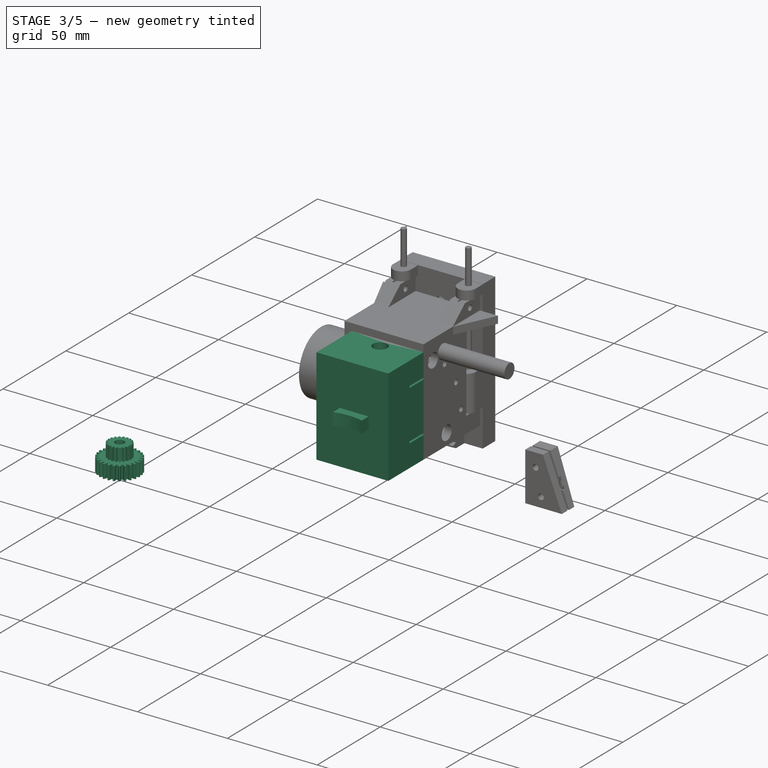
[diagram: stage 3 of 5 — iso view after this stage's code; geometry added in this stage tinted green]
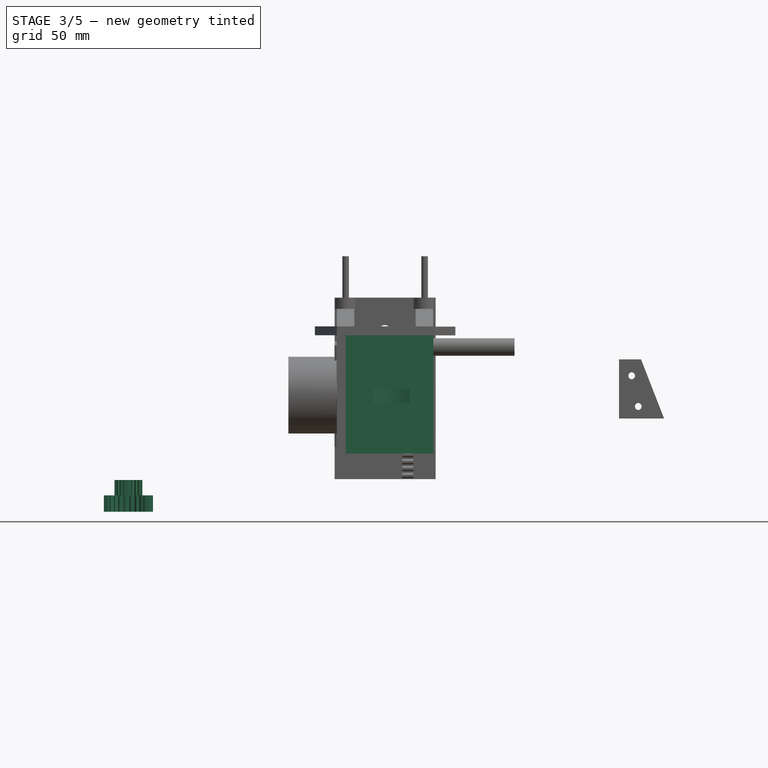
[diagram: stage 3 of 5 — front view after this stage's code; geometry added in this stage tinted green]
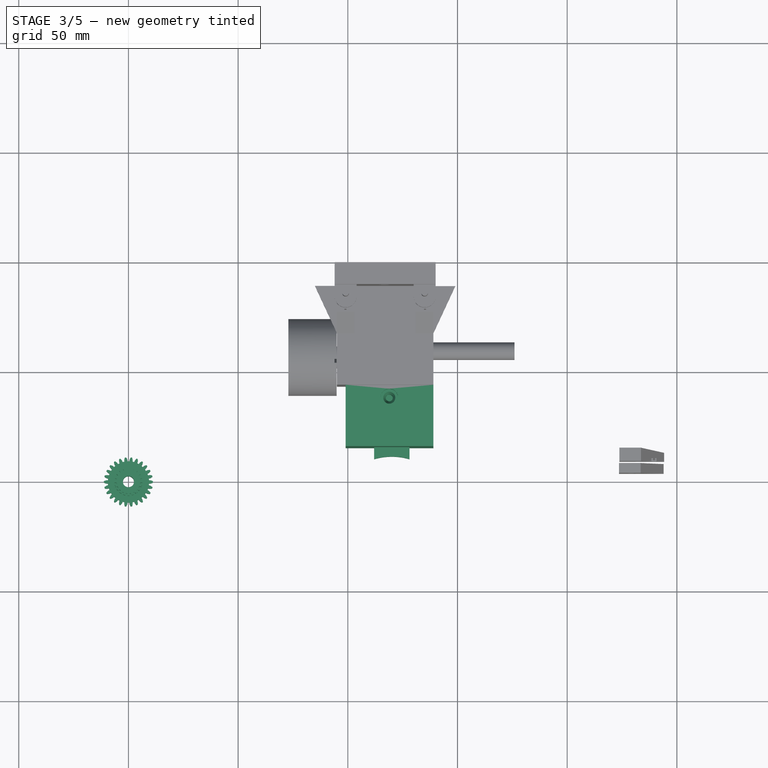
[diagram: stage 3 of 5 — top view after this stage's code; geometry added in this stage tinted green]
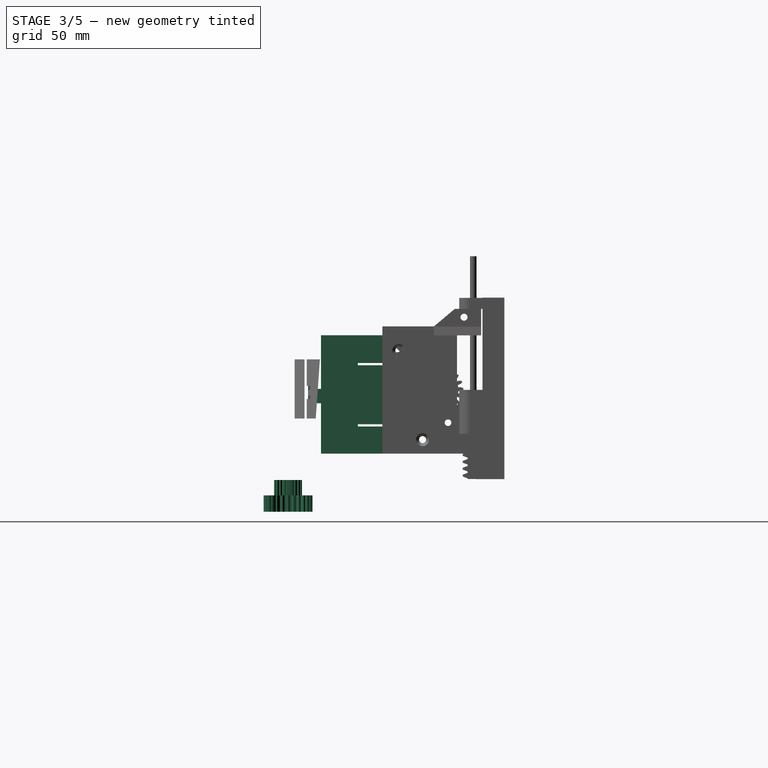
[diagram: stage 3 of 5 — right view after this stage's code; geometry added in this stage tinted green]
FEATURE [Part::Box] Box  label="Куб"
  AttacherType = Attacher::AttachEngine3D
  Height = 54
  Length = 40
  Placement = pos=(99,15,19) rot=(0,0,1;0rad)
  Width = 28
FEATURE [Part::Cylinder] Cylinder111  label="Цилиндр100"
  Angle = 360
  AttacherType = Attacher::AttachEngine3D
  Height = 15
  Radius = 1.6
FEATURE [Part::Cone] Cone013  label="Конус013"
  Angle = 360
  AttacherType = Attacher::AttachEngine3D
  Height = 3.5
  Placement = pos=(0,0,15) rot=(0,0,1;0rad)
  Radius1 = 1.6
  Radius2 = 3
FEATURE [Part::MultiFuse] Fusion045  label="Винт М3 потай010"
  Placement = pos=(118.9,37.2,48.8) rot=(0,0,1;0rad)
  Shapes = -> [Cone013,Cylinder111]
FEATURE [Part::RegularPolygon] RegularPolygon010  label="Правильный многоугольник010"
  AttacherType = Attacher::AttachEngine3D
  Circumradius = 4.8
  Polygon = 6
FEATURE [Part::Extrusion] Extrude034
  Base = -> RegularPolygon010
  Dir = (0,0,1)
  DirMode = 0
  FaceMakerClass = Part::FaceMakerBullseye
  LengthFwd = 5.5
  LengthRev = 0
  Placement = pos=(130,33,53) rot=(-1,0,0;1.5708rad)
  Solid = true
  Symmetric = false
FEATURE [Part::Cylinder] Cylinder112  label="Цилиндр101"
  Angle = 360
  AttacherType = Attacher::AttachEngine3D
  Height = 10
  Placement = pos=(118.9,37.2,66.6) rot=(0,0,1;0rad)
  Radius = 4
FEATURE [Part::Box] Box039  label="Куб039"
  AttacherType = Attacher::AttachEngine3D
  Height = 1
  Length = 50
  Placement = pos=(94.1,31.8,31.4) rot=(0,0,1;0rad)
  Width = 15
FEATURE [Part::Box] Box040  label="Куб040"
  AttacherType = Attacher::AttachEngine3D
  Height = 1
  Length = 50
  Placement = pos=(94.1,31.8,59.3) rot=(0,0,1;0rad)
  Width = 15
FEATURE [Part::Cut] Cut100
  Base = -> Box
  Tool = -> Box040
FEATURE [Part::Cut] Cut101
  Base = -> Cut100
  Tool = -> Box039
FEATURE [Part::Box] Box041  label="Куб041"
  AttacherType = Attacher::AttachEngine3D
  Height = 7
  Length = 5.9
  Placement = pos=(116,33.3,47.8) rot=(0,0,1;0rad)
  Width = 20
FEATURE [Part::Cone] Cone014  label="Конус014"
  Angle = 360
  AttacherType = Attacher::AttachEngine3D
  Height = 3.5
  Placement = pos=(0,0,15) rot=(0,0,1;0rad)
  Radius1 = 1.6
  Radius2 = 3
FEATURE [Part::Cylinder] Cylinder113  label="Цилиндр102"
  Angle = 360
  AttacherType = Attacher::AttachEngine3D
  Height = 15
  Radius = 1.6
FEATURE [Part::MultiFuse] Fusion046  label="Винт М3 потай011"
  Placement = pos=(118.8,37.2,42.9) rot=(0,1,0;3.14159rad)
  Shapes = -> [Cone014,Cylinder113]
FEATURE [Part::Cylinder] Cylinder114  label="Цилиндр103"
  Angle = 360
  AttacherType = Attacher::AttachEngine3D
  Height = 10
  Placement = pos=(118.9,37.2,14.7) rot=(0,0,1;0rad)
  Radius = 4
FEATURE [Part::Box] Box042  label="Куб042"
  AttacherType = Attacher::AttachEngine3D
  Height = 7
  Length = 5.9
  Placement = pos=(116,33.3,37.2) rot=(0,0,1;0rad)
  Width = 20
FEATURE [Part::Cut] Cut102
  Base = -> Cut101
  Tool = -> Box041
FEATURE [Part::Cut] Cut103
  Base = -> Cut102
  Tool = -> Cylinder112
FEATURE [Part::Cut] Cut104
  Base = -> Cut103
  Tool = -> Fusion045
FEATURE [Part::Cut] Cut105
  Base = -> Cut104
  Tool = -> Box042
FEATURE [Part::Cut] Cut106
  Base = -> Cut105
  Tool = -> Fusion046
FEATURE [Part::Cut] Cut107
  Base = -> Cut106
  Tool = -> Cylinder114
FEATURE [Part::RegularPolygon] RegularPolygon011  label="Правильный многоугольник011"
  AttacherType = Attacher::AttachEngine3D
  Circumradius = 4.8
  Polygon = 6
FEATURE [Part::Extrusion] Extrude035
  Base = -> RegularPolygon011
  Dir = (0,0,1)
  DirMode = 0
  FaceMakerClass = Part::FaceMakerBullseye
  LengthFwd = 5.5
  LengthRev = 0
  Placement = pos=(106,33,53) rot=(-1,0,0;1.5708rad)
  Solid = true
  Symmetric = false
FEATURE [Part::RegularPolygon] RegularPolygon012  label="Правильный многоугольник012"
  AttacherType = Attacher::AttachEngine3D
  Circumradius = 4.8
  Polygon = 6
FEATURE [Part::Extrusion] Extrude036
  Base = -> RegularPolygon012
  Dir = (0,0,1)
  DirMode = 0
  FaceMakerClass = Part::FaceMakerBullseye
  LengthFwd = 5.5
  LengthRev = 0
  Placement = pos=(130,33,39) rot=(-1,0,0;1.5708rad)
  Solid = true
  Symmetric = false
FEATURE [Part::RegularPolygon] RegularPolygon013  label="Правильный многоугольник013"
  AttacherType = Attacher::AttachEngine3D
  Circumradius = 4.8
  Polygon = 6
FEATURE [Part::Extrusion] Extrude037
  Base = -> RegularPolygon013
  Dir = (0,0,1)
  DirMode = 0
  FaceMakerClass = Part::FaceMakerBullseye
  LengthFwd = 5.5
  LengthRev = 0
  Placement = pos=(106,33,39) rot=(-1,0,0;1.5708rad)
  Solid = true
  Symmetric = false
FEATURE [Part::Cylinder] Cylinder115  label="Цилиндр104"
  Angle = 360
  AttacherType = Attacher::AttachEngine3D
  Height = 10
  Placement = pos=(130,36,53) rot=(-1,0,0;1.5708rad)
  Radius = 3
FEATURE [Part::Cut] Cut108
  Base = -> Cut107
  Tool = -> Extrude034
FEATURE [Part::Cut] Cut109
  Base = -> Cut108
  Tool = -> Extrude035
FEATURE [Part::Cut] Cut110
  Base = -> Cut109
  Tool = -> Extrude036
FEATURE [Part::Cut] Cut111
  Base = -> Cut110
  Tool = -> Extrude037
FEATURE [Part::Cut] Cut112
  Base = -> Cut111
  Tool = -> Cylinder115
FEATURE [Part::FeaturePython] InvoluteGear002  # WARN: FeaturePython — macro-defined, semantics opaque (R4)
  Placement = pos=(0,0,0) rot=(1,0,0;3.14159rad)
  backlash = 0
  beta = 0
  clearance = 0.25
  double_helix = false
  dw = 20.8
  head = 0
  height = 7.5
  module = 0.8
  numpoints = 6
  pressure_angle = 20
  properties_from_tool = true
  reversed_backlash = false
  shift = 0
  simple = false
  teeth = 26
  transverse_pitch = 2.51327
  undercut = false
FEATURE [Part::Cylinder] Cylinder119  label="Цилиндр108"
  Angle = 360
  AttacherType = Attacher::AttachEngine3D
  Height = 7
  Radius = 5.45
FEATURE [Part::Box] Box045  label="Куб045"
  AttacherType = Attacher::AttachEngine3D
  Height = 7
  Length = 1
  Placement = pos=(-0.5,5.35,0) rot=(0,0,1;0rad)
  Width = 1
FEATURE [Part::Box] Box046  label="Куб046"
  AttacherType = Attacher::AttachEngine3D
  Height = 7
  Length = 1
  Placement = pos=(-0.5,5.35,0) rot=(0,0,1;0rad)
  Width = 1
FEATURE [Part::Box] Box047  label="Куб047"
  AttacherType = Attacher::AttachEngine3D
  Height = 7
  Length = 1
  Placement = pos=(-0.5,5.35,0) rot=(0,0,1;0rad)
  Width = 1
FEATURE [Part::Box] Box048  label="Куб048"
  AttacherType = Attacher::AttachEngine3D
  Height = 7
  Length = 1
  Placement = pos=(-0.5,5.35,0) rot=(0,0,1;0rad)
  Width = 1
FEATURE [Part::Box] Box049  label="Куб049"
  AttacherType = Attacher::AttachEngine3D
  Height = 7
  Length = 1
  Placement = pos=(-0.5,5.35,0) rot=(0,0,1;0rad)
  Width = 1
FEATURE [Part::Box] Box050  label="Куб050"
  AttacherType = Attacher::AttachEngine3D
  Height = 7
  Length = 1
  Placement = pos=(-0.5,5.35,0) rot=(0,0,1;0rad)
  Width = 1
FEATURE [Part::Box] Box051  label="Куб051"
  AttacherType = Attacher::AttachEngine3D
  Height = 7
  Length = 1
  Placement = pos=(-0.5,5.35,0) rot=(0,0,1;0rad)
  Width = 1
FEATURE [Part::Box] Box052  label="Куб052"
  AttacherType = Attacher::AttachEngine3D
  Height = 7
  Length = 1
  Placement = pos=(-0.5,5.35,0) rot=(0,0,1;0rad)
  Width = 1
FEATURE [Part::Box] Box053  label="Куб053"
  AttacherType = Attacher::AttachEngine3D
  Height = 7
  Length = 1
  Placement = pos=(-0.5,5.35,0) rot=(0,0,1;0rad)
  Width = 1
FEATURE [Part::Box] Box054  label="Куб054"
  AttacherType = Attacher::AttachEngine3D
  Height = 7
  Length = 1
  Placement = pos=(-0.5,5.35,0) rot=(0,0,1;0rad)
  Width = 1
FEATURE [Part::Box] Box055  label="Куб055"
  AttacherType = Attacher::AttachEngine3D
  Height = 7
  Length = 1
  Placement = pos=(-0.5,5.35,0) rot=(0,0,1;0rad)
  Width = 1
FEATURE [Part::Box] Box056  label="Куб056"
  AttacherType = Attacher::AttachEngine3D
  Height = 7
  Length = 1
  Placement = pos=(-0.5,5.35,0) rot=(0,0,1;0rad)
  Width = 1
FEATURE [Part::Box] Box057  label="Куб057"
  AttacherType = Attacher::AttachEngine3D
  Height = 7
  Length = 1
  Placement = pos=(-0.5,5.35,0) rot=(0,0,1;0rad)
  Width = 1
FEATURE [Part::Box] Box058  label="Куб058"
  AttacherType = Attacher::AttachEngine3D
  Height = 7
  Length = 1
  Placement = pos=(-0.5,5.35,0) rot=(0,0,1;0rad)
  Width = 1
FEATURE [Part::Box] Box059  label="Куб059"
  AttacherType = Attacher::AttachEngine3D
  Height = 7
  Length = 1
  Placement = pos=(-0.5,5.35,0) rot=(0,0,1;0rad)
  Width = 1
FEATURE [Part::Box] Box060  label="Куб060"
  AttacherType = Attacher::AttachEngine3D
  Height = 7
  Length = 1
  Placement = pos=(-0.5,5.35,0) rot=(0,0,1;0rad)
  Width = 1
FEATURE [Part::Box] Box061  label="Куб061"
  AttacherType = Attacher::AttachEngine3D
  Height = 7
  Length = 1
  Placement = pos=(-0.5,5.35,0) rot=(0,0,1;0rad)
  Width = 1
FEATURE [Part::Box] Box062  label="Куб062"
  AttacherType = Attacher::AttachEngine3D
  Height = 7
  Length = 1
  Placement = pos=(-0.5,5.35,0) rot=(0,0,1;0rad)
  Width = 1
FEATURE [Part::Box] Box063  label="Куб063"
  AttacherType = Attacher::AttachEngine3D
  Height = 7
  Length = 1
  Placement = pos=(-0.5,5.35,0) rot=(0,0,1;0rad)
  Width = 1
FEATURE [Part::MultiFuse] Fusion049
  Placement = pos=(0,0,0) rot=(0,0,1;0.314159rad)
  Shapes = -> [Cylinder119,Box050]
FEATURE [Part::MultiFuse] Fusion050
  Placement = pos=(0,0,0) rot=(0,0,1;0.314159rad)
  Shapes = -> [Fusion049,Box051]
FEATURE [Part::MultiFuse] Fusion051
  Placement = pos=(0,0,0) rot=(0,0,1;0.314159rad)
  Shapes = -> [Fusion050,Box052]
FEATURE [Part::MultiFuse] Fusion052
  Placement = pos=(0,0,0) rot=(0,0,1;0.314159rad)
  Shapes = -> [Fusion051,Box046]
FEATURE [Part::MultiFuse] Fusion053
  Placement = pos=(0,0,0) rot=(0,0,1;0.314159rad)
  Shapes = -> [Fusion052,Box047]
FEATURE [Part::MultiFuse] Fusion054
  Placement = pos=(0,0,0) rot=(0,0,1;0.314159rad)
  Shapes = -> [Fusion053,Box048]
FEATURE [Part::MultiFuse] Fusion055
  Placement = pos=(0,0,0) rot=(0,0,1;0.314159rad)
  Shapes = -> [Fusion054,Box049]
FEATURE [Part::MultiFuse] Fusion056
  Placement = pos=(0,0,0) rot=(0,0,1;0.314159rad)
  Shapes = -> [Fusion055,Box053]
FEATURE [Part::MultiFuse] Fusion057
  Placement = pos=(0,0,0) rot=(0,0,1;0.314159rad)
  Shapes = -> [Fusion056,Box054]
FEATURE [Part::MultiFuse] Fusion058
  Placement = pos=(0,0,0) rot=(0,0,1;0.314159rad)
  Shapes = -> [Fusion057,Box055]
FEATURE [Part::MultiFuse] Fusion059
  Placement = pos=(0,0,0) rot=(0,0,1;0.314159rad)
  Shapes = -> [Fusion058,Box056]
FEATURE [Part::MultiFuse] Fusion060
  Placement = pos=(0,0,0) rot=(0,0,1;0.314159rad)
  Shapes = -> [Fusion059,Box057]
FEATURE [Part::MultiFuse] Fusion061
  Placement = pos=(0,0,0) rot=(0,0,1;0.314159rad)
  Shapes = -> [Fusion060,Box058]
FEATURE [Part::MultiFuse] Fusion062
  Placement = pos=(0,0,0) rot=(0,0,1;0.314159rad)
  Shapes = -> [Fusion061,Box059]
FEATURE [Part::MultiFuse] Fusion063
  Placement = pos=(0,0,0) rot=(0,0,1;0.314159rad)
  Shapes = -> [Fusion062,Box060]
FEATURE [Part::MultiFuse] Fusion064
  Placement = pos=(0,0,0) rot=(0,0,1;0.314159rad)
  Shapes = -> [Fusion063,Box061]
FEATURE [Part::MultiFuse] Fusion065
  Placement = pos=(0,0,0) rot=(0,0,1;0.314159rad)
  Shapes = -> [Fusion064,Box045]
FEATURE [Part::MultiFuse] Fusion066
  Placement = pos=(0,0,0) rot=(0,0,1;0.314159rad)
  Shapes = -> [Fusion065,Box062]
FEATURE [Part::Box] Box064  label="Куб064"
  AttacherType = Attacher::AttachEngine3D
  Height = 7
  Length = 1
  Placement = pos=(-0.5,5.35,0) rot=(0,0,1;0rad)
  Width = 1
FEATURE [Part::MultiFuse] Fusion067
  Placement = pos=(0,0,0) rot=(0,0,1;0.314159rad)
  Shapes = -> [Fusion066,Box063]
FEATURE [Part::MultiFuse] Fusion068
  Shapes = -> [Fusion067,Box064]
FEATURE [Part::Cylinder] Cylinder120  label="Цилиндр109"
  Angle = 360
  AttacherType = Attacher::AttachEngine3D
  Height = 33
  Placement = pos=(0,0,-16.1) rot=(0,0,1;0rad)
  Radius = 2.55
FEATURE [Part::MultiFuse] Fusion069
  Shapes = -> [Fusion068,InvoluteGear002]
FEATURE [Part::Cut] Cut118
  Base = -> Fusion069
  Tool = -> Cylinder120
FEATURE [Part::FeaturePython] InvoluteGear003  # WARN: FeaturePython — macro-defined, semantics opaque (R4)
  Placement = pos=(0,0,0) rot=(1,0,0;3.14159rad)
  backlash = 0
  beta = 0
  clearance = 0.25
  double_helix = false
  dw = 10.4
  head = 0
  height = 5
  module = 0.8
  numpoints = 6
  pressure_angle = 20
  properties_from_tool = true
  reversed_backlash = false
  shift = 0
  simple = false
  teeth = 13
  transverse_pitch = 2.51327
  undercut = false
FEATURE [Part::Cylinder] Cylinder121  label="Цилиндр110"
  Angle = 360
  AttacherType = Attacher::AttachEngine3D
  Height = 10
  Placement = pos=(0,0,-7) rot=(0,0,1;0rad)
  Radius = 2.5
FEATURE [Part::Cut] Cut119
  Base = -> InvoluteGear003
  Tool = -> Cylinder121
FEATURE [Sketcher::SketchObject] Sketch044
  sketch-geometry (4):
    g0: LineSegment StartX=112 StartY=15 StartZ=0 EndX=128.1 EndY=15 EndZ=0
    g1: ArcOfCircle CenterX=120.05 CenterY=-18.0167 CenterZ=0 NormalX=0 NormalY=0 NormalZ=1 AngleXU=0 Radius=28.67 StartAngle=1.28619 EndAngle=1.8554
    g2: LineSegment StartX=112 StartY=15 StartZ=0 EndX=112 EndY=9.5 EndZ=0
    g3: LineSegment StartX=128.1 StartY=15 StartZ=0 EndX=128.1 EndY=9.5 EndZ=0
  constraints (13):
    c: Horizontal(g0)
    c: DistanceX(g0) = 112
    c: DistanceY(g0) = 15
    c: Coincident(g2,g0)
    c: Vertical(g2)
    c: Coincident(g3,g0)
    c: Equal(g3,g2)
    c: Coincident(g1,g2)
    c: Vertical(g3)
    c: Coincident(g1,g3)
    c: DistanceY(g2,g2) = 5.5
    c: DistanceX(g0,g0) = 16.1
    c: Radius(g1) = 28.67
FEATURE [Part::Extrusion] Extrude054
  Base = -> Sketch044
  Dir = (0,0,1)
  DirMode = 0
  FaceMakerClass = Part::FaceMakerBullseye
  LengthFwd = 6.5
  LengthRev = 0
  Placement = pos=(0,0,42) rot=(0,0,1;0rad)
  Solid = true
  Symmetric = false
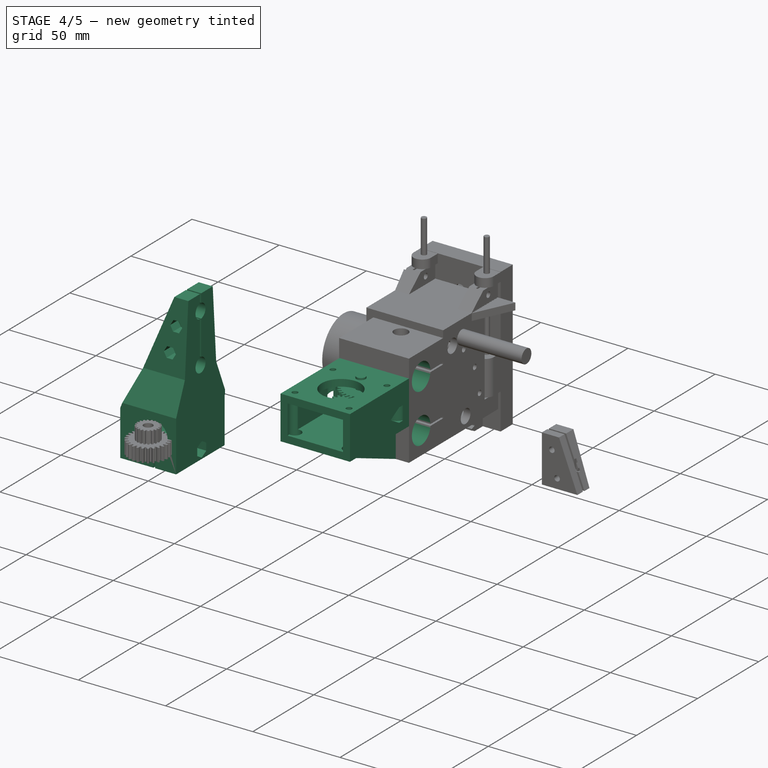
[diagram: stage 4 of 5 — iso view after this stage's code; geometry added in this stage tinted green]
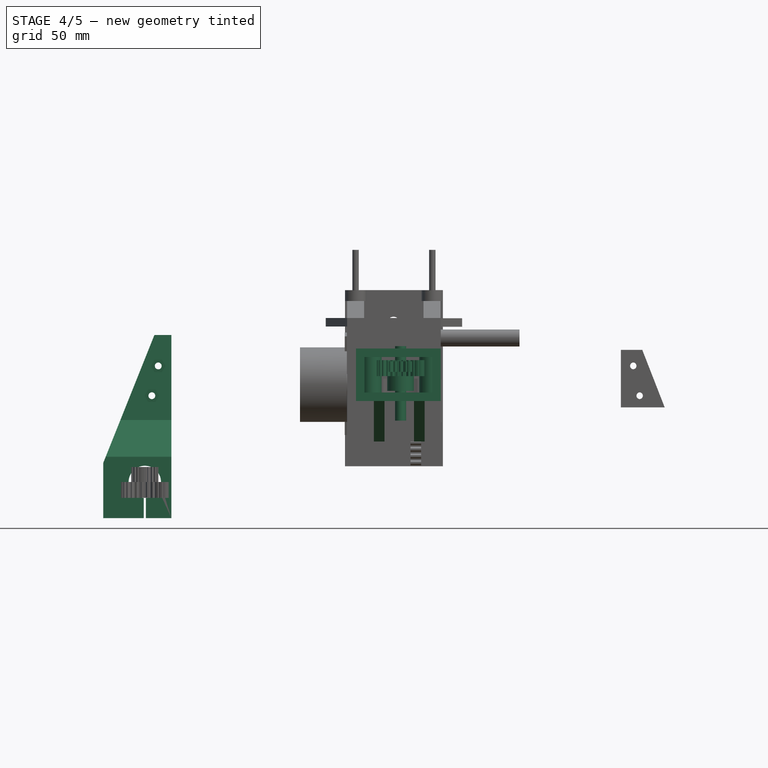
[diagram: stage 4 of 5 — front view after this stage's code; geometry added in this stage tinted green]
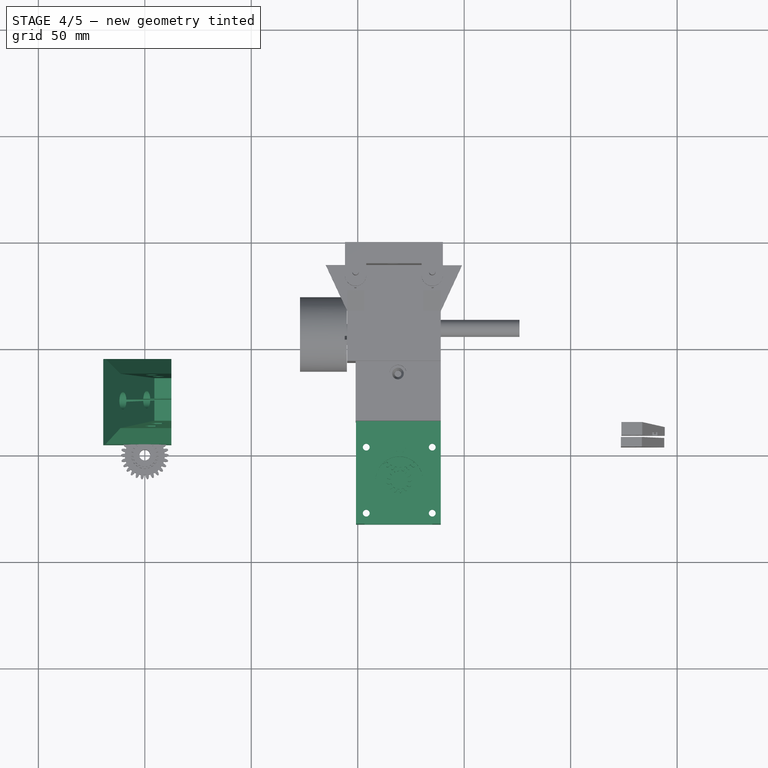
[diagram: stage 4 of 5 — top view after this stage's code; geometry added in this stage tinted green]
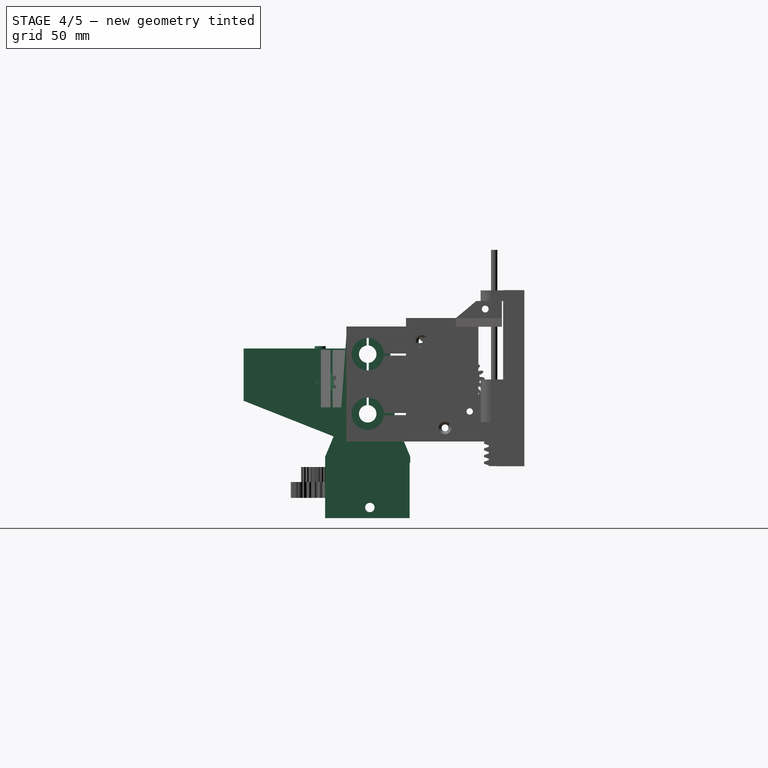
[diagram: stage 4 of 5 — right view after this stage's code; geometry added in this stage tinted green]
FEATURE [Part::Cylinder] Cylinder025  label="Цилиндр024"
  Angle = 360
  AttacherType = Attacher::AttachEngine3D
  Height = 10
  Placement = pos=(37,-3,8) rot=(-1,0,0;1.5708rad)
  Radius = 1.6
FEATURE [Part::Box] Box005  label="Куб005"
  AttacherType = Attacher::AttachEngine3D
  Height = 50
  Length = 39.8
  Placement = pos=(1.2,0,-6) rot=(0,0,1;0rad)
  Width = 4
FEATURE [Part::Cylinder] Cylinder023  label="Цилиндр022"
  Angle = 360
  AttacherType = Attacher::AttachEngine3D
  Height = 10
  Placement = pos=(6,-3,39) rot=(-1,0,0;1.5708rad)
  Radius = 1.6
FEATURE [Part::Cylinder] Cylinder024  label="Цилиндр023"
  Angle = 360
  AttacherType = Attacher::AttachEngine3D
  Height = 10
  Placement = pos=(6,-3,8) rot=(-1,0,0;1.5708rad)
  Radius = 1.6
FEATURE [Sketcher::SketchObject] Sketch001
  sketch-geometry (4):
    g0: ArcOfCircle CenterX=9 CenterY=15 CenterZ=0 NormalX=0 NormalY=0 NormalZ=1 AngleXU=0 Radius=27.2 StartAngle=6.09831 EndAngle=6.46806
    g1: ArcOfCircle CenterX=9 CenterY=15 CenterZ=0 NormalX=0 NormalY=0 NormalZ=1 AngleXU=0 Radius=22.8 StartAngle=6.06209 EndAngle=6.50428
    g2: ArcOfCircle CenterX=33.4907 CenterY=10.1383 CenterZ=0 NormalX=0 NormalY=0 NormalZ=1 AngleXU=0 Radius=2.25 StartAngle=3.20309 EndAngle=6.22168
    g3: ArcOfCircle CenterX=33.4907 CenterY=19.8617 CenterZ=0 NormalX=0 NormalY=0 NormalZ=1 AngleXU=0 Radius=2.25 StartAngle=0.0615005 EndAngle=3.08009
  constraints (15):
    c: DistanceX(g0) = 9
    c: DistanceY(g0) = 15
    c: Coincident(g1,g0)
    c: Radius(g1) = 22.8
    c: Radius(g0) = 27.2
    c: DistanceY(g-1,g1) = 10
    c: DistanceY(g-1,g0) = 10
    c: DistanceY(g1,g1) = 10
    c: DistanceY(g0,g0) = 10
    c: Coincident(g2,g1)
    c: Coincident(g2,g0)
    c: Radius(g2) = 2.25
    c: Coincident(g3,g1)
    c: Coincident(g0,g3)
    c: Radius(g3) = 2.25
FEATURE [Part::Cylinder] Cylinder028  label="Цилиндр027"
  Angle = 360
  AttacherType = Attacher::AttachEngine3D
  Height = 10
  Placement = pos=(21.5,-2,23.5) rot=(-1,0,0;1.5708rad)
  Radius = 11.1
FEATURE [Part::Cylinder] Cylinder029  label="Цилиндр028"
  Angle = 360
  AttacherType = Attacher::AttachEngine3D
  Height = 10
  Placement = pos=(37,-3,39) rot=(-1,0,0;1.5708rad)
  Radius = 1.6
FEATURE [Part::Cut] Cut017
  Base = -> Box005
  Tool = -> Cylinder029
FEATURE [Part::Cut] Cut018
  Base = -> Cut017
  Tool = -> Cylinder023
FEATURE [Part::Cut] Cut021
  Base = -> Cut018
  Tool = -> Cylinder024
FEATURE [Part::Cut] Cut022
  Base = -> Cut021
  Tool = -> Cylinder025
FEATURE [Part::Cut] Cut016
  Base = -> Cut022
  Placement = pos=(98,10.7,58.7) rot=(1,0,0;1.5708rad)
  Tool = -> Cylinder028
FEATURE [Part::Cylinder] Cylinder096  label="Цилиндр087"
  Angle = 360
  AttacherType = Attacher::AttachEngine3D
  Height = 15
  Radius = 1.6
FEATURE [Sketcher::SketchObject] Sketch020
  Placement = pos=(0,0,0) rot=(1,0,0;1.5708rad)
  sketch-geometry (4):
    g0: LineSegment StartX=-15 StartY=9 StartZ=0 EndX=17 EndY=9 EndZ=0
    g1: LineSegment StartX=17 StartY=9 StartZ=0 EndX=17 EndY=69 EndZ=0
    g2: LineSegment StartX=17 StartY=69 StartZ=0 EndX=9 EndY=69 EndZ=0
    g3: LineSegment StartX=9 StartY=69 StartZ=0 EndX=-15 EndY=9 EndZ=0
  constraints (12):
    c: Horizontal(g0)
    c: DistanceX(g0) = -15
    c: DistanceY(g0) = 9
    c: DistanceX(g0,g0) = 32
    c: Vertical(g1)
    c: Coincident(g1,g0)
    c: Horizontal(g2)
    c: DistanceY(g1,g1) = 60
    c: Coincident(g2,g1)
    c: DistanceX(g2,g2) = 8
    c: Coincident(g3,g2)
    c: Coincident(g3,g0)
FEATURE [Sketcher::SketchObject] Sketch021
  Placement = pos=(0,0,0) rot=(0.57735,0.57735,0.57735;2.0944rad)
  sketch-geometry (4):
    g0: LineSegment StartX=15 StartY=69 StartZ=0 EndX=12.2079 EndY=29.0976 EndZ=0
    g1: LineSegment StartX=12.2079 StartY=29.0976 StartZ=0 EndX=4.204 EndY=9.91667 EndZ=0
    g2: LineSegment StartX=4.204 StartY=9.91667 StartZ=0 EndX=4.204 EndY=69 EndZ=0
    g3: LineSegment StartX=15 StartY=69 StartZ=0 EndX=4.204 EndY=69 EndZ=0
  constraints (12):
    c: DistanceX(g0) = 15
    c: DistanceY(g0) = 69
    c: Distance(g0) = 40
    c: Coincident(g1,g0)
    c: Vertical(g2)
    c: Coincident(g2,g1)
    c: Horizontal(g3)
    c: Coincident(g3,g0)
    c: Coincident(g2,g3)
    c: DistanceX(g1) = 4.204
    c: DistanceY(g1) = 9.91667
    c: Angle(g1,g2) = 0.395317
FEATURE [Sketcher::SketchObject] Sketch022
  Placement = pos=(0,0,0) rot=(0.57735,0.57735,0.57735;2.0944rad)
  sketch-geometry (4):
    g0: LineSegment StartX=15 StartY=69 StartZ=0 EndX=12.2079 EndY=29.0976 EndZ=0
    g1: LineSegment StartX=12.2079 StartY=29.0976 StartZ=0 EndX=4.204 EndY=9.91667 EndZ=0
    g2: LineSegment StartX=4.204 StartY=9.91667 StartZ=0 EndX=4.204 EndY=69 EndZ=0
    g3: LineSegment StartX=15 StartY=69 StartZ=0 EndX=4.204 EndY=69 EndZ=0
  constraints (12):
    c: DistanceX(g0) = 15
    c: DistanceY(g0) = 69
    c: Distance(g0) = 40
    c: Coincident(g1,g0)
    c: Vertical(g2)
    c: Coincident(g2,g1)
    c: Horizontal(g3)
    c: Coincident(g3,g0)
    c: Coincident(g2,g3)
    c: DistanceX(g1) = 4.204
    c: DistanceY(g1) = 9.91667
    c: Angle(g1,g2) = 0.395317
FEATURE [Part::Box] Box033  label="Куб033"
  AttacherType = Attacher::AttachEngine3D
  Height = 26
  Length = 32
  Placement = pos=(-19.5,5,-17) rot=(0,0,1;0rad)
  Width = 39.7
FEATURE [Part::Cylinder] Cylinder097  label="Направляющая009"
  Angle = 360
  AttacherType = Attacher::AttachEngine3D
  Height = 240
  Placement = pos=(-33,25,32) rot=(0.57735,-0.57735,0.57735;4.18879rad)
  Radius = 4.1
FEATURE [Part::Extrusion] Extrude027
  Base = -> Sketch020
  Dir = (0,1,0)
  DirMode = 0
  FaceMakerClass = Part::FaceMakerBullseye
  LengthFwd = 40
  LengthRev = 0
  Placement = pos=(0,5,0) rot=(0,0,1;0rad)
  Solid = true
  Symmetric = false
FEATURE [Part::Extrusion] Extrude028
  Base = -> Sketch022
  Dir = (1,0,0)
  DirMode = 0
  FaceMakerClass = Part::FaceMakerBullseye
  LengthFwd = 50
  LengthRev = 0
  Placement = pos=(-19,0,0) rot=(0,0,1;0rad)
  Solid = true
  Symmetric = false
FEATURE [Part::Cut] Cut089
  Base = -> Extrude027
  Tool = -> Extrude028
FEATURE [Part::Cylinder] Cylinder098  label="Направляющая010"
  Angle = 360
  AttacherType = Attacher::AttachEngine3D
  Height = 240
  Placement = pos=(-7.9,25,60) rot=(0.57735,-0.57735,0.57735;4.18879rad)
  Radius = 4.1
FEATURE [Part::Extrusion] Extrude029
  Base = -> Sketch021
  Dir = (1,0,0)
  DirMode = 0
  FaceMakerClass = Part::FaceMakerBullseye
  LengthFwd = 50
  LengthRev = 0
  Placement = pos=(28,50,0) rot=(0,0,1;3.14159rad)
  Solid = true
  Symmetric = false
FEATURE [Part::Cut] Cut083
  Base = -> Cut089
  Tool = -> Extrude029
FEATURE [Part::Cut] Cut090
  Base = -> Cut083
  Tool = -> Cylinder097
FEATURE [Part::Cut] Cut082
  Base = -> Cut090
  Tool = -> Cylinder098
FEATURE [Part::Box] Box034  label="Куб034"
  AttacherType = Attacher::AttachEngine3D
  Height = 48
  Length = 36
  Placement = pos=(-12,24.5,31) rot=(0,0,1;0rad)
  Width = 1
FEATURE [Part::Cut] Cut088
  Base = -> Cut082
  Tool = -> Box034
FEATURE [Part::Cylinder] Cylinder099  label="Цилиндр088"
  Angle = 360
  AttacherType = Attacher::AttachEngine3D
  Height = 15
  Radius = 1.6
FEATURE [Part::RegularPolygon] RegularPolygon007  label="Правильный многоугольник007"
  AttacherType = Attacher::AttachEngine3D
  Circumradius = 3.4
  Polygon = 6
FEATURE [Part::Extrusion] Extrude026
  Base = -> RegularPolygon007
  Dir = (0,0,1)
  DirMode = 0
  FaceMakerClass = Part::FaceMakerBullseye
  LengthFwd = 15
  LengthRev = 0
  Placement = pos=(7.8,6.8,40.5) rot=(-1,0,0;1.5708rad)
  Solid = true
  Symmetric = false
FEATURE [Part::RegularPolygon] RegularPolygon008  label="Правильный многоугольник008"
  AttacherType = Attacher::AttachEngine3D
  Circumradius = 3.4
  Polygon = 6
FEATURE [Part::RegularPolygon] RegularPolygon009  label="Правильный многоугольник009"
  AttacherType = Attacher::AttachEngine3D
  Circumradius = 4.3
  Polygon = 6
FEATURE [Part::Cone] Cone010  label="Конус010"
  Angle = 360
  AttacherType = Attacher::AttachEngine3D
  Height = 3.5
  Placement = pos=(0,0,15) rot=(0,0,1;0rad)
  Radius1 = 1.6
  Radius2 = 3
FEATURE [Part::MultiFuse] Fusion044  label="Винт М3 потай009"
  Placement = pos=(7.8,19,40.5) rot=(-1,0,0;1.5708rad)
  Shapes = -> [Cone010,Cylinder096]
FEATURE [Part::Cone] Cone011  label="Конус011"
  Angle = 360
  AttacherType = Attacher::AttachEngine3D
  Height = 3.5
  Placement = pos=(0,0,15) rot=(0,0,1;0rad)
  Radius1 = 1.6
  Radius2 = 3
FEATURE [Part::MultiFuse] Fusion041  label="Винт М3 потай008"
  Placement = pos=(10.8,18,54.5) rot=(-1,0,0;1.5708rad)
  Shapes = -> [Cone011,Cylinder099]
FEATURE [Part::Cone] Cone012  label="Конус012"
  Angle = 360
  AttacherType = Attacher::AttachEngine3D
  Height = 5
  Placement = pos=(-24,26,-8) rot=(0,-1,0;1.5708rad)
  Radius1 = 2.2
  Radius2 = 4
FEATURE [Part::Extrusion] Extrude030
  Base = -> RegularPolygon008
  Dir = (0,0,1)
  DirMode = 0
  FaceMakerClass = Part::FaceMakerBullseye
  LengthFwd = 15
  LengthRev = 0
  Placement = pos=(10.8,5.2,54.5) rot=(-1,0,0;1.5708rad)
  Solid = true
  Symmetric = false
FEATURE [Part::Cut] Cut084
  Base = -> Cut088
  Tool = -> Extrude030
FEATURE [Part::Cut] Cut085
  Base = -> Cut084
  Tool = -> Extrude026
FEATURE [Part::Cut] Cut086
  Base = -> Cut085
  Tool = -> Fusion044
FEATURE [Part::Cut] Cut087
  Base = -> Cut086
  Placement = pos=(-4.5,0,0) rot=(0,0,1;0rad)
  Tool = -> Fusion041
FEATURE [Part::Cylinder] Cylinder100  label="Цилиндр089"
  Angle = 360
  AttacherType = Attacher::AttachEngine3D
  Height = 50
  Placement = pos=(-24,26,-8) rot=(0,1,0;1.5708rad)
  Radius = 2.2
FEATURE [Part::MultiFuse] Fusion042  label="Винт М4х50 пот002"
  Placement = pos=(9,0,-4) rot=(0,0,1;0rad)
  Shapes = -> [Cone012,Cylinder100]
FEATURE [Part::Cut] Cut092
  Base = -> Box033
  Tool = -> Fusion042
FEATURE [Part::Extrusion] Extrude031  label="Гайка М006"
  Base = -> RegularPolygon009
  Dir = (0,0,1)
  DirMode = 0
  FaceMakerClass = Part::FaceMakerBullseye
  LengthFwd = 8
  LengthRev = 0
  Placement = pos=(5,26,-12) rot=(0,1,0;1.5708rad)
  Solid = true
  Symmetric = false
FEATURE [Part::Cut] Cut091
  Base = -> Cut092
  Tool = -> Extrude031
FEATURE [Part::Box] Box035  label="Куб035"
  AttacherType = Attacher::AttachEngine3D
  Height = 14
  Length = 1
  Placement = pos=(-0.5,-2,-20) rot=(0,0,1;0rad)
  Width = 52
FEATURE [Part::Cut] Cut093
  Base = -> Cut091
  Tool = -> Box035
FEATURE [Part::Cylinder] Cylinder101  label="Цилиндр090"
  Angle = 360
  AttacherType = Attacher::AttachEngine3D
  Height = 45
  Placement = pos=(0,47.5,7e-15) rot=(1,0,0;1.5708rad)
  Radius = 7.6
FEATURE [Part::Cut] Cut094
  Base = -> Cut093
  Tool = -> Cylinder101
FEATURE [Part::FeaturePython] InvoluteGear001  # WARN: FeaturePython — macro-defined, semantics opaque (R4)
  Placement = pos=(120.1,2.7,57.2) rot=(1,0,0;3.14159rad)
  backlash = 0
  beta = 0
  clearance = 0.25
  double_helix = false
  dw = 20.8
  head = 0
  height = 7.5
  module = 0.8
  numpoints = 6
  pressure_angle = 20
  properties_from_tool = true
  reversed_backlash = false
  shift = 0
  simple = false
  teeth = 26
  transverse_pitch = 2.51327
  undercut = false
FEATURE [Part::FeaturePython] InvoluteGear  # WARN: FeaturePython — macro-defined, semantics opaque (R4)
  Placement = pos=(119.5,-12.7,56.7) rot=(1,0,0;3.14159rad)
  backlash = 0
  beta = 0
  clearance = 0.25
  double_helix = false
  dw = 10.4
  head = 0
  height = 5
  module = 0.8
  numpoints = 6
  pressure_angle = 20
  properties_from_tool = true
  reversed_backlash = false
  shift = 0
  simple = false
  teeth = 13
  transverse_pitch = 2.51327
  undercut = false
FEATURE [Part::Cylinder] Cylinder022  label="Цилиндр020"
  Angle = 360
  AttacherType = Attacher::AttachEngine3D
  Height = 7
  Placement = pos=(120.1,2.7,42.8) rot=(0,0,1;0rad)
  Radius = 6.25
FEATURE [Sketcher::SketchObject] Sketch023
FEATURE [Part::Cylinder] Cylinder  label="Цилиндр"
  Angle = 360
  AttacherType = Attacher::AttachEngine3D
  Height = 20
  Placement = pos=(106.2,12.1,39.7) rot=(0,0,1;0rad)
  Radius = 5
FEATURE [Part::Cylinder] Cylinder102  label="Цилиндр091"
  Angle = 360
  AttacherType = Attacher::AttachEngine3D
  Height = 20
  Placement = pos=(133.9,12.1,39.7) rot=(0,0,1;0rad)
  Radius = 5
FEATURE [Part::Box] Box036  label="Куб036"
  AttacherType = Attacher::AttachEngine3D
  Height = 50.3
  Length = 39.8
  Placement = pos=(99.2,17,38) rot=(1,0,0;1.5708rad)
  Width = 4
FEATURE [Part::Box] Box037  label="Куб037"
  AttacherType = Attacher::AttachEngine3D
  Height = 20.7
  Length = 48.3
  Placement = pos=(135,15,38) rot=(0,0,-1;1.5708rad)
  Width = 4
FEATURE [Part::Box] Box038  label="Куб038"
  AttacherType = Attacher::AttachEngine3D
  Height = 20.7
  Length = 48.3
  Placement = pos=(99.2,15,38) rot=(0,0,-1;1.5708rad)
  Width = 4
FEATURE [Part::Cylinder] Cylinder103  label="Цилиндр092"
  Angle = 360
  AttacherType = Attacher::AttachEngine3D
  Height = 26
  Placement = pos=(104,2.7,32.7) rot=(0,0,1;0rad)
  Radius = 3.5
FEATURE [Part::Cylinder] Cylinder104  label="Цилиндр093"
  Angle = 360
  AttacherType = Attacher::AttachEngine3D
  Height = 26
  Placement = pos=(135,2.7,32.7) rot=(0,0,1;0rad)
  Radius = 3.5
FEATURE [Part::Cylinder] Cylinder105  label="Цилиндр094"
  Angle = 360
  AttacherType = Attacher::AttachEngine3D
  Height = 26
  Placement = pos=(135,-28.3,32.7) rot=(0,0,1;0rad)
  Radius = 3.5
FEATURE [Part::Cylinder] Cylinder106  label="Цилиндр095"
  Angle = 360
  AttacherType = Attacher::AttachEngine3D
  Height = 26
  Placement = pos=(104,-28.3,32.7) rot=(0,0,1;0rad)
  Radius = 3.5
FEATURE [Part::Cylinder] Cylinder107  label="Цилиндр096"
  Angle = 360
  AttacherType = Attacher::AttachEngine3D
  Height = 35
  Placement = pos=(120.1,2.7,28.8) rot=(0,0,1;0rad)
  Radius = 2.5
FEATURE [Part::MultiFuse] Fusion
  Shapes = -> [Cut016,Box038,Box037,Box036]
FEATURE [Part::Cut] Cut
  Base = -> Fusion
  Tool = -> Cylinder106
FEATURE [Part::Cut] Cut095
  Base = -> Cut
  Tool = -> Cylinder105
FEATURE [Part::Cut] Cut096
  Base = -> Cut095
  Tool = -> Cylinder104
FEATURE [Part::Cut] Cut097
  Base = -> Cut096
  Tool = -> Cylinder103
FEATURE [Part::Cylinder] Cylinder108  label="Цилиндр097"
  Angle = 360
  AttacherType = Attacher::AttachEngine3D
  Height = 35
  Placement = pos=(120.1,2.7,28.8) rot=(0,0,1;0rad)
  Radius = 2.6
FEATURE [Part::Cut] Cut098
  Base = -> Cut097
  Tool = -> Cylinder107
FEATURE [Sketcher::SketchObject] Sketch024
  Placement = pos=(0,0,0) rot=(0.57735,0.57735,0.57735;2.0944rad)
  sketch-geometry (5):
    g0: LineSegment StartX=10 StartY=50.8 StartZ=0 EndX=10 EndY=42.8 EndZ=0
    g1: LineSegment StartX=10 StartY=50.8 StartZ=0 EndX=7 EndY=50.8 EndZ=0
    g2: LineSegment StartX=10 StartY=42.8 StartZ=0 EndX=7 EndY=42.8 EndZ=0
    g3: LineSegment StartX=7 StartY=42.8 StartZ=0 EndX=0 EndY=46.8 EndZ=0
    g4: LineSegment StartX=0 StartY=46.8 StartZ=0 EndX=7 EndY=50.8 EndZ=0
  constraints (15):
    c: Vertical(g0)
    c: DistanceX(g0) = 10
    c: DistanceY(g0) = 42.8
    c: DistanceY(g0,g0) = 8
    c: Horizontal(g1)
    c: Coincident(g1,g0)
    c: DistanceX(g1,g1) = 3
    c: Horizontal(g2)
    c: Coincident(g2,g0)
    c: Equal(g1,g2)
    c: Coincident(g3,g2)
    c: DistanceX(g3,g0) = 10
    c: DistanceY(g0,g3) = 4
    c: Coincident(g4,g1)
    c: Coincident(g4,g3)
FEATURE [Part::Extrusion] Extrude
  Base = -> Sketch024
  Dir = (1,0,0)
  DirMode = 0
  FaceMakerClass = Part::FaceMakerBullseye
  LengthFwd = 44
  LengthRev = 0
  Placement = pos=(98,0,0) rot=(0,0,1;0rad)
  Solid = true
  Symmetric = false
FEATURE [Part::Cut] Cut099
  Base = -> Cut098
  Tool = -> Extrude
FEATURE [Sketcher::SketchObject] Sketch025
  Placement = pos=(0,0,0) rot=(0.57735,0.57735,0.57735;2.0944rad)
  sketch-geometry (3):
    g0: LineSegment StartX=15 StartY=19 StartZ=0 EndX=15 EndY=38 EndZ=0
    g1: LineSegment StartX=15 StartY=38 StartZ=0 EndX=-33 EndY=38 EndZ=0
    g2: LineSegment StartX=-33 StartY=38 StartZ=0 EndX=15 EndY=19 EndZ=0
  constraints (9):
    c: Vertical(g0)
    c: DistanceX(g0) = 15
    c: DistanceY(g0) = 19
    c: DistanceY(g0,g0) = 19
    c: Horizontal(g1)
    c: Coincident(g1,g0)
    c: DistanceX(g1,g1) = 48
    c: Coincident(g1,g2)
    c: Coincident(g2,g0)
FEATURE [Part::Extrusion] Extrude032
  Base = -> Sketch025
  Dir = (1,0,0)
  DirMode = 0
  FaceMakerClass = Part::FaceMakerBullseye
  LengthFwd = 5
  LengthRev = 0
  Placement = pos=(107.6,0,0) rot=(0,0,1;0rad)
  Solid = true
  Symmetric = false
FEATURE [Sketcher::SketchObject] Sketch026
  Placement = pos=(0,0,0) rot=(0.57735,0.57735,0.57735;2.0944rad)
  sketch-geometry (3):
    g0: LineSegment StartX=15 StartY=19 StartZ=0 EndX=15 EndY=38 EndZ=0
    g1: LineSegment StartX=15 StartY=38 StartZ=0 EndX=-33 EndY=38 EndZ=0
    g2: LineSegment StartX=-33 StartY=38 StartZ=0 EndX=15 EndY=19 EndZ=0
  constraints (9):
    c: Vertical(g0)
    c: DistanceX(g0) = 15
    c: DistanceY(g0) = 19
    c: DistanceY(g0,g0) = 19
    c: Horizontal(g1)
    c: Coincident(g1,g0)
    c: DistanceX(g1,g1) = 48
    c: Coincident(g1,g2)
    c: Coincident(g2,g0)
FEATURE [Part::Extrusion] Extrude033
  Base = -> Sketch026
  Dir = (1,0,0)
  DirMode = 0
  FaceMakerClass = Part::FaceMakerBullseye
  LengthFwd = 5
  LengthRev = 0
  Placement = pos=(126.4,0,0) rot=(0,0,1;0rad)
  Solid = true
  Symmetric = false
FEATURE [Part::Cylinder] Cylinder109  label="Цилиндр098"
  Angle = 360
  AttacherType = Attacher::AttachEngine3D
  Height = 45
  Placement = pos=(96.2,25,32) rot=(0.57735,0.57735,0.57735;2.0944rad)
  Radius = 7.6
FEATURE [Part::Cylinder] Cylinder110  label="Цилиндр099"
  Angle = 360
  AttacherType = Attacher::AttachEngine3D
  Height = 45
  Placement = pos=(96.2,25,60) rot=(0.57735,0.57735,0.57735;2.0944rad)
  Radius = 7.6
FEATURE [Part::Cylinder] Cylinder116  label="Цилиндр105"
  Angle = 360
  AttacherType = Attacher::AttachEngine3D
  Height = 10
  Placement = pos=(106,36,53) rot=(-1,0,0;1.5708rad)
  Radius = 3
FEATURE [Part::Cylinder] Cylinder117  label="Цилиндр106"
  Angle = 360
  AttacherType = Attacher::AttachEngine3D
  Height = 10
  Placement = pos=(106,36,39) rot=(-1,0,0;1.5708rad)
  Radius = 3
FEATURE [Part::Cylinder] Cylinder118  label="Цилиндр107"
  Angle = 360
  AttacherType = Attacher::AttachEngine3D
  Height = 10
  Placement = pos=(130,36,39) rot=(-1,0,0;1.5708rad)
  Radius = 3
FEATURE [Part::Cut] Cut113
  Base = -> Cut112
  Tool = -> Cylinder116
FEATURE [Part::Cut] Cut114
  Base = -> Cut113
  Tool = -> Cylinder118
FEATURE [Part::Cut] Cut115
  Base = -> Cut114
  Tool = -> Cylinder117
FEATURE [Part::MultiFuse] Fusion047
  Shapes = -> [Cut099,Cylinder,Cylinder102,Extrude032,Extrude033]
FEATURE [Part::Cut] Cut116
  Base = -> Cut115
  Tool = -> Cylinder110
FEATURE [Part::Cut] Cut117
  Base = -> Cut116
  Tool = -> Cylinder109
FEATURE [Part::MultiFuse] Fusion048
  Shapes = -> [Fusion047,Cut117]
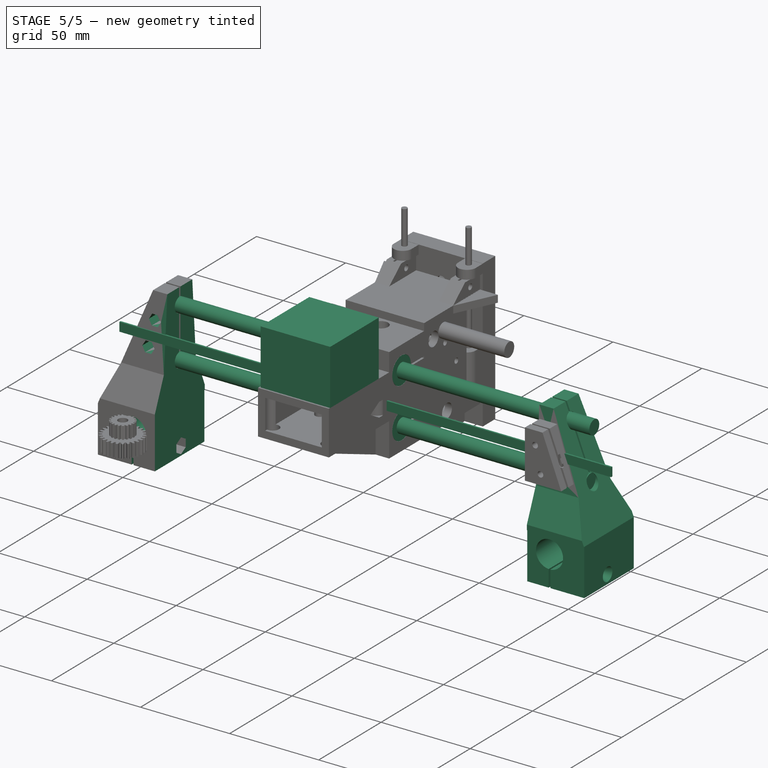
[diagram: stage 5 of 5 — iso view after this stage's code; geometry added in this stage tinted green]
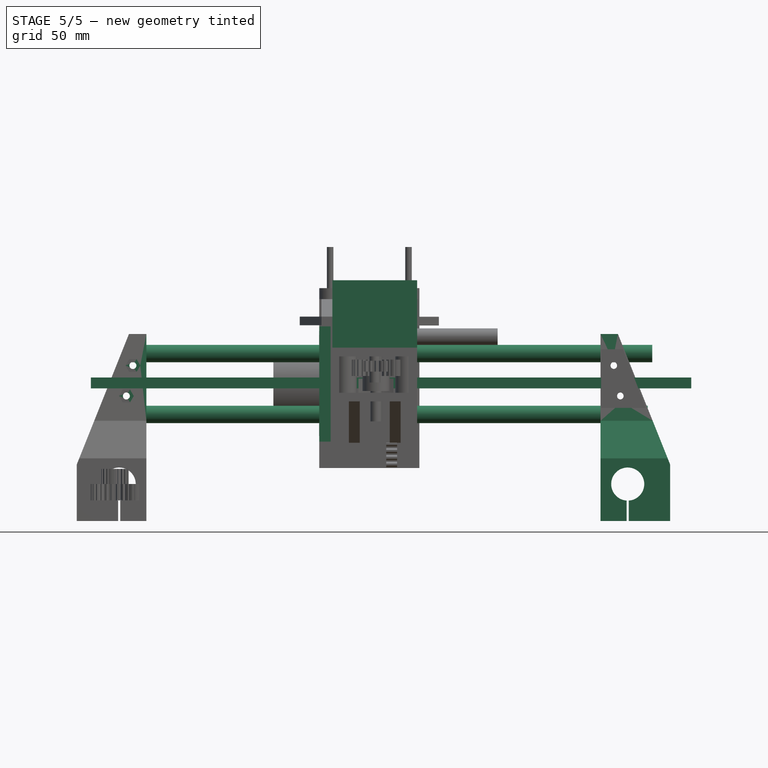
[diagram: stage 5 of 5 — front view after this stage's code; geometry added in this stage tinted green]
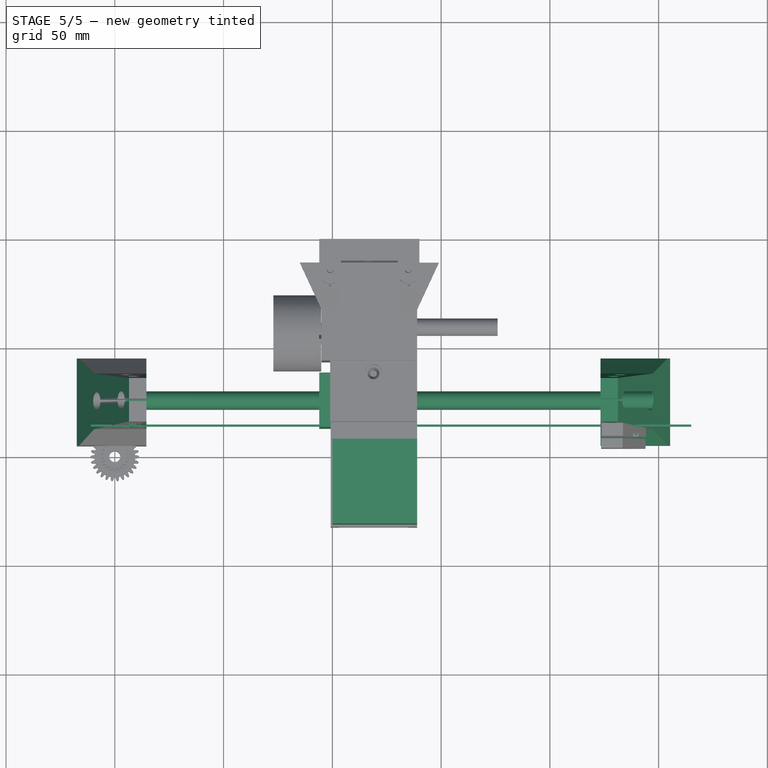
[diagram: stage 5 of 5 — top view after this stage's code; geometry added in this stage tinted green]
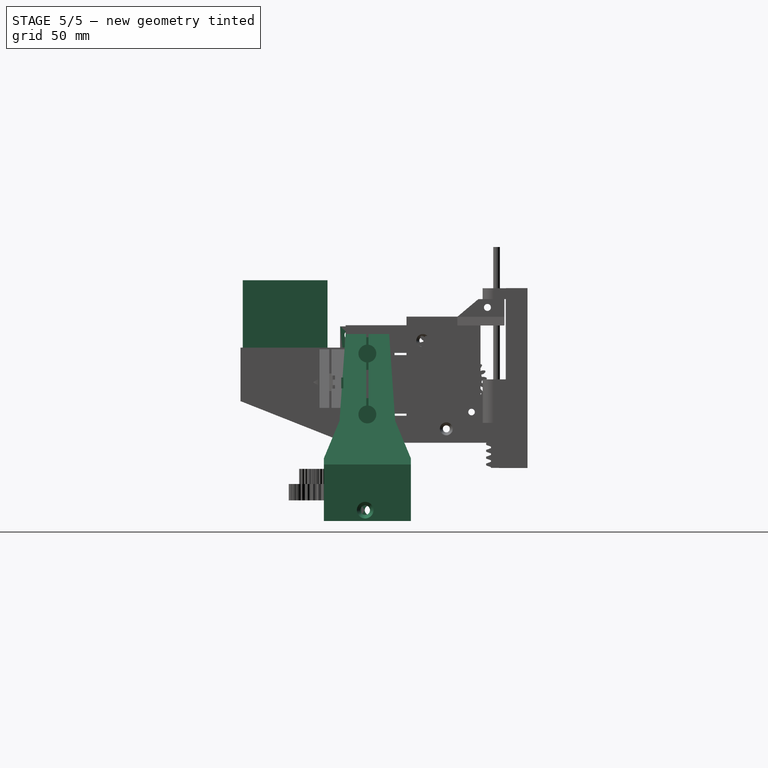
[diagram: stage 5 of 5 — right view after this stage's code; geometry added in this stage tinted green]
FEATURE [Part::Cylinder] Cylinder009  label="Цилиндр021"
  Angle = 360
  AttacherType = Attacher::AttachEngine3D
  Height = 10
  Placement = pos=(4,23,35) rot=(-1,0,0;1.5708rad)
  Radius = 1.5
FEATURE [Part::Cylinder] Cylinder011  label="Цилиндр009"
  Angle = 360
  AttacherType = Attacher::AttachEngine3D
  Height = 10
  Placement = pos=(35,23,4) rot=(-1,0,0;1.5708rad)
  Radius = 1.5
FEATURE [Part::Cylinder] Cylinder013  label="Цилиндр011"
  Angle = 360
  AttacherType = Attacher::AttachEngine3D
  Height = 2
  Placement = pos=(19.5,33,19.5) rot=(1,0,0;1.5708rad)
  Radius = 11
FEATURE [Part::Cylinder] Cylinder010  label="Цилиндр008"
  Angle = 360
  AttacherType = Attacher::AttachEngine3D
  Height = 10
  Placement = pos=(35,23,35) rot=(-1,0,0;1.5708rad)
  Radius = 1.5
FEATURE [Part::Box] Box001  label="Куб001"
  AttacherType = Attacher::AttachEngine3D
  Height = 39
  Length = 39
  Width = 31
FEATURE [Part::Cut] Cut005
  Base = -> Box001
  Tool = -> Cylinder009
FEATURE [Part::Cylinder] Cylinder012  label="Цилиндр010"
  Angle = 360
  AttacherType = Attacher::AttachEngine3D
  Height = 10
  Placement = pos=(4,23,4) rot=(-1,0,0;1.5708rad)
  Radius = 1.5
FEATURE [Part::Cut] Cut006
  Base = -> Cut005
  Tool = -> Cylinder012
FEATURE [Part::Cut] Cut007
  Base = -> Cut006
  Tool = -> Cylinder011
FEATURE [Part::Cut] Cut008
  Base = -> Cut007
  Tool = -> Cylinder010
FEATURE [Part::Cylinder] Cylinder014  label="Цилиндр012"
  Angle = 360
  AttacherType = Attacher::AttachEngine3D
  Height = 14
  Placement = pos=(19.5,33,19.5) rot=(-1,0,0;1.5708rad)
  Radius = 2.5
FEATURE [Part::MultiFuse] Fusion001  label="Шаговый двигатель"
  Placement = pos=(100,-32.3,93.7) rot=(-1,0,0;1.5708rad)
  Shapes = -> [Cut008,Cylinder013,Cylinder014]
FEATURE [Sketcher::SketchObject] Sketch
  Placement = pos=(0,0,0) rot=(0.57735,0.57735,0.57735;2.0944rad)
  sketch-geometry (5):
    g0: LineSegment StartX=0 StartY=0 StartZ=0 EndX=0 EndY=43 EndZ=0
    g1: LineSegment StartX=0 StartY=43 StartZ=0 EndX=4 EndY=43 EndZ=0
    g2: LineSegment StartX=0 StartY=0 StartZ=0 EndX=25 EndY=0 EndZ=0
    g3: LineSegment StartX=25 StartY=0 StartZ=0 EndX=25 EndY=4 EndZ=0
    g4: LineSegment StartX=4 StartY=43 StartZ=0 EndX=25 EndY=4 EndZ=0
  constraints (14):
    c: Coincident(g0,g-1)
    c: Vertical(g0)
    c: DistanceY(g0,g0) = 43
    c: Horizontal(g1)
    c: Coincident(g1,g0)
    c: DistanceX(g1,g1) = 4
    c: Coincident(g2,g0)
    c: Horizontal(g2)
    c: DistanceX(g2,g2) = 25
    c: Coincident(g3,g2)
    c: Vertical(g3)
    c: DistanceY(g3,g3) = 4
    c: Coincident(g4,g3)
    c: Coincident(g1,g4)
FEATURE [Part::Cylinder] Cylinder020  label="Цилиндр018"
  Angle = 360
  AttacherType = Attacher::AttachEngine3D
  Height = 10
  Radius = 2.1
FEATURE [Part::Cylinder] Cylinder021  label="Цилиндр019"
  Angle = 360
  AttacherType = Attacher::AttachEngine3D
  Height = 6
  Placement = pos=(0,0,10) rot=(0,0,1;0rad)
  Radius = 6
FEATURE [Sketcher::SketchObject] Sketch003
  Placement = pos=(0,0,0) rot=(0.57735,0.57735,0.57735;2.0944rad)
  sketch-geometry (5):
    g0: LineSegment StartX=0 StartY=0 StartZ=0 EndX=0 EndY=43 EndZ=0
    g1: LineSegment StartX=0 StartY=43 StartZ=0 EndX=4 EndY=43 EndZ=0
    g2: LineSegment StartX=0 StartY=0 StartZ=0 EndX=25 EndY=0 EndZ=0
    g3: LineSegment StartX=25 StartY=0 StartZ=0 EndX=25 EndY=4 EndZ=0
    g4: LineSegment StartX=4 StartY=43 StartZ=0 EndX=25 EndY=4 EndZ=0
  constraints (14):
    c: Coincident(g0,g-1)
    c: Vertical(g0)
    c: DistanceY(g0,g0) = 43
    c: Horizontal(g1)
    c: Coincident(g1,g0)
    c: DistanceX(g1,g1) = 4
    c: Coincident(g2,g0)
    c: Horizontal(g2)
    c: DistanceX(g2,g2) = 25
    c: Coincident(g3,g2)
    c: Vertical(g3)
    c: DistanceY(g3,g3) = 4
    c: Coincident(g4,g3)
    c: Coincident(g1,g4)
FEATURE [Sketcher::SketchObject] Sketch004
  Placement = pos=(0,0,0) rot=(0.57735,0.57735,0.57735;2.0944rad)
  sketch-geometry (5):
    g0: LineSegment StartX=0 StartY=0 StartZ=0 EndX=0 EndY=30 EndZ=0
    g1: LineSegment StartX=0 StartY=30 StartZ=0 EndX=19 EndY=30 EndZ=0
    g2: LineSegment StartX=0 StartY=0 StartZ=0 EndX=40 EndY=0 EndZ=0
    g3: LineSegment StartX=40 StartY=0 StartZ=0 EndX=40 EndY=4 EndZ=0
    g4: LineSegment StartX=19 StartY=30 StartZ=0 EndX=40 EndY=4 EndZ=0
  constraints (14):
    c: Coincident(g0,g-1)
    c: Vertical(g0)
    c: DistanceY(g0,g0) = 30
    c: Horizontal(g1)
    c: Coincident(g1,g0)
    c: DistanceX(g1,g1) = 19
    c: Coincident(g2,g0)
    c: Horizontal(g2)
    c: DistanceX(g2,g2) = 40
    c: Coincident(g3,g2)
    c: Vertical(g3)
    c: DistanceY(g3,g3) = 4
    c: Coincident(g4,g3)
    c: Coincident(g1,g4)
FEATURE [Part::MultiFuse] Fusion004  label="Саморез001"
  Placement = pos=(-7,12,-7) rot=(0,0,1;0rad)
  Shapes = -> [Cylinder020,Cylinder021]
FEATURE [Sketcher::SketchObject] Sketch017
  Placement = pos=(0,0,0) rot=(1,0,0;1.5708rad)
  sketch-geometry (4):
    g0: LineSegment StartX=-15 StartY=9 StartZ=0 EndX=17 EndY=9 EndZ=0
    g1: LineSegment StartX=17 StartY=9 StartZ=0 EndX=17 EndY=69 EndZ=0
    g2: LineSegment StartX=17 StartY=69 StartZ=0 EndX=9 EndY=69 EndZ=0
    g3: LineSegment StartX=9 StartY=69 StartZ=0 EndX=-15 EndY=9 EndZ=0
  constraints (12):
    c: Horizontal(g0)
    c: DistanceX(g0) = -15
    c: DistanceY(g0) = 9
    c: DistanceX(g0,g0) = 32
    c: Vertical(g1)
    c: Coincident(g1,g0)
    c: Horizontal(g2)
    c: DistanceY(g1,g1) = 60
    c: Coincident(g2,g1)
    c: DistanceX(g2,g2) = 8
    c: Coincident(g3,g2)
    c: Coincident(g3,g0)
FEATURE [Sketcher::SketchObject] Sketch018
  Placement = pos=(0,0,0) rot=(0.57735,0.57735,0.57735;2.0944rad)
  sketch-geometry (4):
    g0: LineSegment StartX=15 StartY=69 StartZ=0 EndX=12.2079 EndY=29.0976 EndZ=0
    g1: LineSegment StartX=12.2079 StartY=29.0976 StartZ=0 EndX=4.204 EndY=9.91667 EndZ=0
    g2: LineSegment StartX=4.204 StartY=9.91667 StartZ=0 EndX=4.204 EndY=69 EndZ=0
    g3: LineSegment StartX=15 StartY=69 StartZ=0 EndX=4.204 EndY=69 EndZ=0
  constraints (12):
    c: DistanceX(g0) = 15
    c: DistanceY(g0) = 69
    c: Distance(g0) = 40
    c: Coincident(g1,g0)
    c: Vertical(g2)
    c: Coincident(g2,g1)
    c: Horizontal(g3)
    c: Coincident(g3,g0)
    c: Coincident(g2,g3)
    c: DistanceX(g1) = 4.204
    c: DistanceY(g1) = 9.91667
    c: Angle(g1,g2) = 0.395317
FEATURE [Part::RegularPolygon] RegularPolygon004  label="Правильный многоугольник004"
  AttacherType = Attacher::AttachEngine3D
  Circumradius = 3.4
  Polygon = 6
FEATURE [Part::RegularPolygon] RegularPolygon005  label="Правильный многоугольник005"
  AttacherType = Attacher::AttachEngine3D
  Circumradius = 3.4
  Polygon = 6
FEATURE [Part::RegularPolygon] RegularPolygon006  label="Правильный многоугольник006"
  AttacherType = Attacher::AttachEngine3D
  Circumradius = 4.3
  Polygon = 6
FEATURE [Part::Box] Box007  label="Куб007"
  AttacherType = Attacher::AttachEngine3D
  Height = 5.2
  Length = 25
  Width = 25
FEATURE [Part::Cylinder] Cylinder036  label="Цилиндр035"
  Angle = 360
  AttacherType = Attacher::AttachEngine3D
  Height = 60
  Placement = pos=(12.5,12.5,-7) rot=(0,0,1;0rad)
  Radius = 4
FEATURE [Part::Cylinder] Cylinder037  label="Цилиндр036"
  Angle = 360
  AttacherType = Attacher::AttachEngine3D
  Height = 10
  Placement = pos=(4,4,-2) rot=(0,0,1;0rad)
  Radius = 2
FEATURE [Part::Cylinder] Cylinder038  label="Цилиндр037"
  Angle = 360
  AttacherType = Attacher::AttachEngine3D
  Height = 10
  Placement = pos=(4,21,-2) rot=(0,0,1;0rad)
  Radius = 2
FEATURE [Part::Cylinder] Cylinder026  label="Цилиндр038"
  Angle = 360
  AttacherType = Attacher::AttachEngine3D
  Height = 10
  Placement = pos=(21,21,-2) rot=(0,0,1;0rad)
  Radius = 2
FEATURE [Part::Cylinder] Cylinder027  label="Цилиндр025"
  Angle = 360
  AttacherType = Attacher::AttachEngine3D
  Height = 10
  Placement = pos=(21,4,-2) rot=(0,0,1;0rad)
  Radius = 2
FEATURE [Part::Cylinder] Cylinder039  label="Цилиндр026"
  Angle = 360
  AttacherType = Attacher::AttachEngine3D
  Height = 40
  Placement = pos=(12.5,12.5,5) rot=(0,0,1;0rad)
  Radius = 7.5
FEATURE [Part::Box] Box008  label="Куб008"
  AttacherType = Attacher::AttachEngine3D
  Height = 5.2
  Length = 25
  Width = 25
FEATURE [Part::Cylinder] Cylinder040  label="Цилиндр039"
  Angle = 360
  AttacherType = Attacher::AttachEngine3D
  Height = 60
  Placement = pos=(12.5,12.5,-7) rot=(0,0,1;0rad)
  Radius = 4
FEATURE [Part::Cylinder] Cylinder041  label="Цилиндр040"
  Angle = 360
  AttacherType = Attacher::AttachEngine3D
  Height = 10
  Placement = pos=(4,4,-2) rot=(0,0,1;0rad)
  Radius = 2
FEATURE [Part::Cylinder] Cylinder042  label="Цилиндр041"
  Angle = 360
  AttacherType = Attacher::AttachEngine3D
  Height = 10
  Placement = pos=(4,21,-2) rot=(0,0,1;0rad)
  Radius = 2
FEATURE [Part::Cylinder] Cylinder043  label="Цилиндр042"
  Angle = 360
  AttacherType = Attacher::AttachEngine3D
  Height = 10
  Placement = pos=(21,21,-2) rot=(0,0,1;0rad)
  Radius = 2
FEATURE [Part::Cylinder] Cylinder044  label="Цилиндр043"
  Angle = 360
  AttacherType = Attacher::AttachEngine3D
  Height = 10
  Placement = pos=(21,4,-2) rot=(0,0,1;0rad)
  Radius = 2
FEATURE [Part::Cylinder] Cylinder045  label="Цилиндр044"
  Angle = 360
  AttacherType = Attacher::AttachEngine3D
  Height = 40
  Placement = pos=(12.5,12.5,5) rot=(0,0,1;0rad)
  Radius = 7.5
FEATURE [Part::Cylinder] Cylinder046  label="Направляющая004"
  Angle = 360
  AttacherType = Attacher::AttachEngine3D
  Height = 240
  Placement = pos=(5,25,32) rot=(0.57735,-0.57735,0.57735;4.18879rad)
  Radius = 4
FEATURE [Part::Cylinder] Cylinder047  label="Направляющая005"
  Angle = 360
  AttacherType = Attacher::AttachEngine3D
  Height = 240
  Placement = pos=(7.1,25,60) rot=(0.57735,-0.57735,0.57735;4.18879rad)
  Radius = 4
FEATURE [Part::MultiFuse] Fusion008
  Shapes = -> [Box007,Cylinder039]
FEATURE [Part::Cut] Cut031
  Base = -> Fusion008
  Tool = -> Cylinder036
FEATURE [Part::Cut] Cut032
  Base = -> Cut031
  Tool = -> Cylinder037
FEATURE [Part::Cut] Cut029
  Base = -> Cut032
  Tool = -> Cylinder038
FEATURE [Part::Cut] Cut030
  Base = -> Cut029
  Tool = -> Cylinder027
FEATURE [Part::Cut] Cut033  label="Линейный подшипник001"
  Base = -> Cut030
  Placement = pos=(94,37.5,44.5) rot=(0.57735,-0.57735,0.57735;4.18879rad)
  Tool = -> Cylinder026
FEATURE [Part::MultiFuse] Fusion009
  Shapes = -> [Box008,Cylinder045]
FEATURE [Part::Cut] Cut037
  Base = -> Fusion009
  Tool = -> Cylinder040
FEATURE [Part::Cut] Cut036
  Base = -> Cut037
  Tool = -> Cylinder041
FEATURE [Part::Cut] Cut035
  Base = -> Cut036
  Tool = -> Cylinder042
FEATURE [Part::Cut] Cut034
  Base = -> Cut035
  Tool = -> Cylinder044
FEATURE [Part::Cut] Cut038  label="Линейный подшипник002"
  Base = -> Cut034
  Placement = pos=(94,37.5,72.5) rot=(0.57735,-0.57735,0.57735;4.18879rad)
  Tool = -> Cylinder043
FEATURE [Part::Box] Box029  label="Куб029"
  AttacherType = Attacher::AttachEngine3D
  Height = 26
  Length = 32
  Placement = pos=(-19.5,5,-17) rot=(0,0,1;0rad)
  Width = 39.7
FEATURE [Part::Cylinder] Cylinder090  label="Направляющая007"
  Angle = 360
  AttacherType = Attacher::AttachEngine3D
  Height = 240
  Placement = pos=(-33,25,32) rot=(0.57735,-0.57735,0.57735;4.18879rad)
  Radius = 4.1
FEATURE [Part::Extrusion] Extrude020
  Base = -> Sketch017
  Dir = (0,1,0)
  DirMode = 0
  FaceMakerClass = Part::FaceMakerBullseye
  LengthFwd = 40
  LengthRev = 0
  Placement = pos=(0,5,0) rot=(0,0,1;0rad)
  Solid = true
  Symmetric = false
FEATURE [Part::Cylinder] Cylinder091  label="Направляющая008"
  Angle = 360
  AttacherType = Attacher::AttachEngine3D
  Height = 240
  Placement = pos=(-7.9,25,60) rot=(0.57735,-0.57735,0.57735;4.18879rad)
  Radius = 4.1
FEATURE [Part::Extrusion] Extrude022
  Base = -> Sketch018
  Dir = (1,0,0)
  DirMode = 0
  FaceMakerClass = Part::FaceMakerBullseye
  LengthFwd = 50
  LengthRev = 0
  Placement = pos=(28,50,0) rot=(0,0,1;3.14159rad)
  Solid = true
  Symmetric = false
FEATURE [Part::Box] Box030  label="Куб030"
  AttacherType = Attacher::AttachEngine3D
  Height = 48
  Length = 36
  Placement = pos=(-12,24.5,31) rot=(0,0,1;0rad)
  Width = 1
FEATURE [Part::Cylinder] Cylinder092  label="Цилиндр083"
  Angle = 360
  AttacherType = Attacher::AttachEngine3D
  Height = 15
  Radius = 1.6
FEATURE [Part::Cylinder] Cylinder093  label="Цилиндр084"
  Angle = 360
  AttacherType = Attacher::AttachEngine3D
  Height = 15
  Radius = 1.6
FEATURE [Part::Extrusion] Extrude023
  Base = -> RegularPolygon005
  Dir = (0,0,1)
  DirMode = 0
  FaceMakerClass = Part::FaceMakerBullseye
  LengthFwd = 15
  LengthRev = 0
  Placement = pos=(7.8,6.8,40.5) rot=(-1,0,0;1.5708rad)
  Solid = true
  Symmetric = false
FEATURE [Part::Extrusion] Extrude024
  Base = -> RegularPolygon004
  Dir = (0,0,1)
  DirMode = 0
  FaceMakerClass = Part::FaceMakerBullseye
  LengthFwd = 15
  LengthRev = 0
  Placement = pos=(10.8,5.2,54.5) rot=(-1,0,0;1.5708rad)
  Solid = true
  Symmetric = false
FEATURE [Part::Cylinder] Cylinder094  label="Цилиндр085"
  Angle = 360
  AttacherType = Attacher::AttachEngine3D
  Height = 50
  Placement = pos=(-24,26,-8) rot=(0,1,0;1.5708rad)
  Radius = 2.2
FEATURE [Part::Extrusion] Extrude025  label="Гайка М005"
  Base = -> RegularPolygon006
  Dir = (0,0,1)
  DirMode = 0
  FaceMakerClass = Part::FaceMakerBullseye
  LengthFwd = 8
  LengthRev = 0
  Placement = pos=(5,26,-12) rot=(0,1,0;1.5708rad)
  Solid = true
  Symmetric = false
FEATURE [Part::Box] Box031  label="Куб031"
  AttacherType = Attacher::AttachEngine3D
  Height = 14
  Length = 1
  Placement = pos=(-0.5,-2,-20) rot=(0,0,1;0rad)
  Width = 52
FEATURE [Part::Cylinder] Cylinder095  label="Цилиндр086"
  Angle = 360
  AttacherType = Attacher::AttachEngine3D
  Height = 45
  Placement = pos=(0,47.5,7e-15) rot=(1,0,0;1.5708rad)
  Radius = 7.6
FEATURE [Sketcher::SketchObject] Sketch019
  Placement = pos=(0,0,0) rot=(0.57735,0.57735,0.57735;2.0944rad)
  sketch-geometry (4):
    g0: LineSegment StartX=15 StartY=69 StartZ=0 EndX=12.2079 EndY=29.0976 EndZ=0
    g1: LineSegment StartX=12.2079 StartY=29.0976 StartZ=0 EndX=4.204 EndY=9.91667 EndZ=0
    g2: LineSegment StartX=4.204 StartY=9.91667 StartZ=0 EndX=4.204 EndY=69 EndZ=0
    g3: LineSegment StartX=15 StartY=69 StartZ=0 EndX=4.204 EndY=69 EndZ=0
  constraints (12):
    c: DistanceX(g0) = 15
    c: DistanceY(g0) = 69
    c: Distance(g0) = 40
    c: Coincident(g1,g0)
    c: Vertical(g2)
    c: Coincident(g2,g1)
    c: Horizontal(g3)
    c: Coincident(g3,g0)
    c: Coincident(g2,g3)
    c: DistanceX(g1) = 4.204
    c: DistanceY(g1) = 9.91667
    c: Angle(g1,g2) = 0.395317
FEATURE [Part::Extrusion] Extrude021
  Base = -> Sketch019
  Dir = (1,0,0)
  DirMode = 0
  FaceMakerClass = Part::FaceMakerBullseye
  LengthFwd = 50
  LengthRev = 0
  Placement = pos=(-19,0,0) rot=(0,0,1;0rad)
  Solid = true
  Symmetric = false
FEATURE [Part::Cut] Cut076
  Base = -> Extrude020
  Tool = -> Extrude021
FEATURE [Part::Cut] Cut070
  Base = -> Cut076
  Tool = -> Extrude022
FEATURE [Part::Cut] Cut077
  Base = -> Cut070
  Tool = -> Cylinder090
FEATURE [Part::Cut] Cut069
  Base = -> Cut077
  Tool = -> Cylinder091
FEATURE [Part::Cut] Cut075
  Base = -> Cut069
  Tool = -> Box030
FEATURE [Part::Cut] Cut071
  Base = -> Cut075
  Tool = -> Extrude024
FEATURE [Part::Cut] Cut072
  Base = -> Cut071
  Tool = -> Extrude023
FEATURE [Part::Cone] Cone007  label="Конус007"
  Angle = 360
  AttacherType = Attacher::AttachEngine3D
  Height = 3.5
  Placement = pos=(0,0,15) rot=(0,0,1;0rad)
  Radius1 = 1.6
  Radius2 = 3
FEATURE [Part::MultiFuse] Fusion037  label="Винт М3 потай006"
  Placement = pos=(7.8,19,40.5) rot=(-1,0,0;1.5708rad)
  Shapes = -> [Cone007,Cylinder093]
FEATURE [Part::Cut] Cut073
  Base = -> Cut072
  Tool = -> Fusion037
FEATURE [Part::Cone] Cone008  label="Конус008"
  Angle = 360
  AttacherType = Attacher::AttachEngine3D
  Height = 3.5
  Placement = pos=(0,0,15) rot=(0,0,1;0rad)
  Radius1 = 1.6
  Radius2 = 3
FEATURE [Part::MultiFuse] Fusion038  label="Винт М3 потай007"
  Placement = pos=(10.8,18,54.5) rot=(-1,0,0;1.5708rad)
  Shapes = -> [Cone008,Cylinder092]
FEATURE [Part::Cut] Cut074
  Base = -> Cut073
  Placement = pos=(-4.5,0,0) rot=(0,0,1;0rad)
  Tool = -> Fusion038
FEATURE [Part::Cone] Cone009  label="Конус009"
  Angle = 360
  AttacherType = Attacher::AttachEngine3D
  Height = 5
  Placement = pos=(-24,26,-8) rot=(0,-1,0;1.5708rad)
  Radius1 = 2.2
  Radius2 = 4
FEATURE [Part::MultiFuse] Fusion039  label="Винт М4х50 пот001"
  Placement = pos=(9,0,-4) rot=(0,0,1;0rad)
  Shapes = -> [Cone009,Cylinder094]
FEATURE [Part::Cut] Cut079
  Base = -> Box029
  Tool = -> Fusion039
FEATURE [Part::Cut] Cut078
  Base = -> Cut079
  Tool = -> Extrude025
FEATURE [Part::Cut] Cut080
  Base = -> Cut078
  Tool = -> Box031
FEATURE [Part::Cut] Cut081
  Base = -> Cut080
  Tool = -> Cylinder095
FEATURE [Part::MultiFuse] Fusion040
  Placement = pos=(235.8,50,0) rot=(0,0,1;3.14159rad)
  Shapes = -> [Cut081,Cut074]
FEATURE [Part::Box] Box032  label="Куб032"
  AttacherType = Attacher::AttachEngine3D
  Height = 5
  Length = 276
  Placement = pos=(-11,13,44) rot=(0,0,1;0rad)
  Width = 1
FEATURE [Part::MultiFuse] Fusion043
  Placement = pos=(2,-6.2e-15,0) rot=(0,0,1;0rad)
  Shapes = -> [Cut094,Cut087]
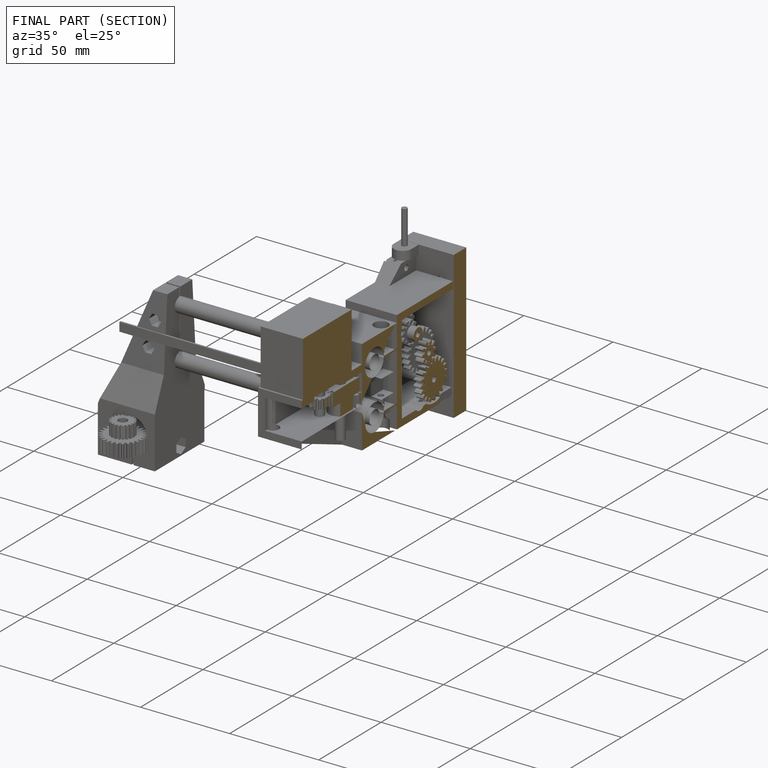
[diagram: finished part — half-section view (interior)]
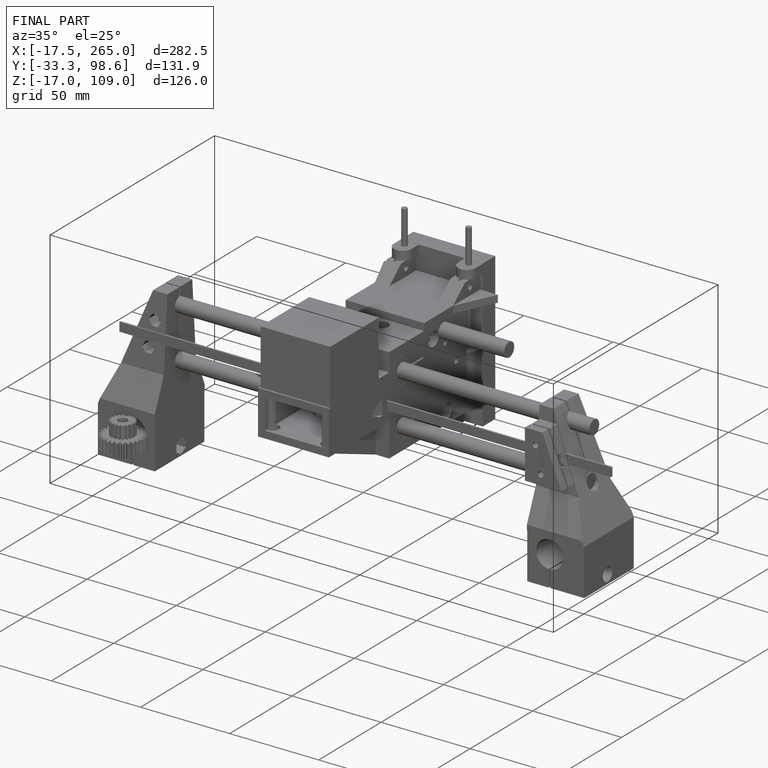
[diagram: finished part — iso view with bounding-box wireframe]
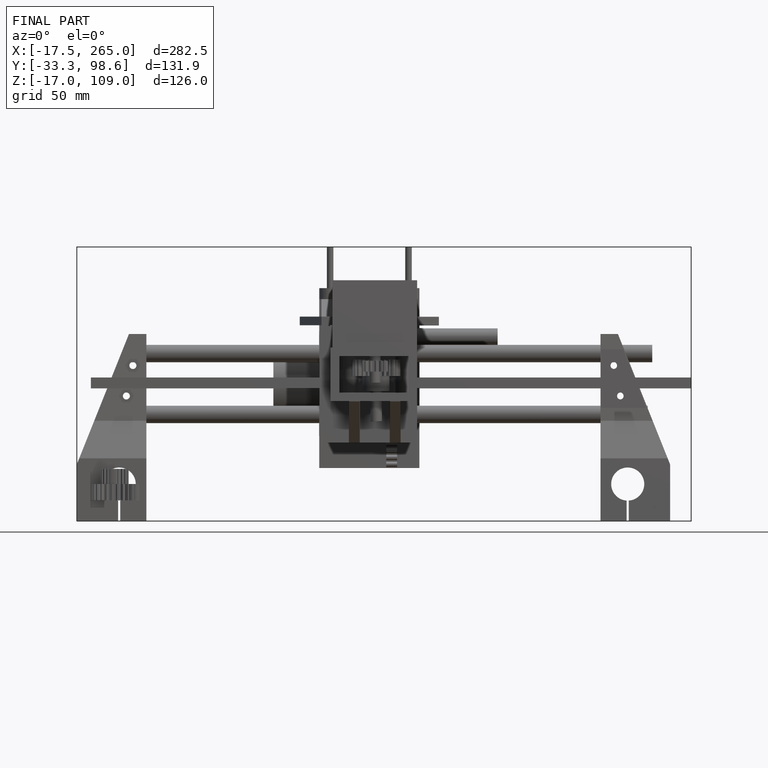
[diagram: finished part — front view with bounding-box wireframe]
